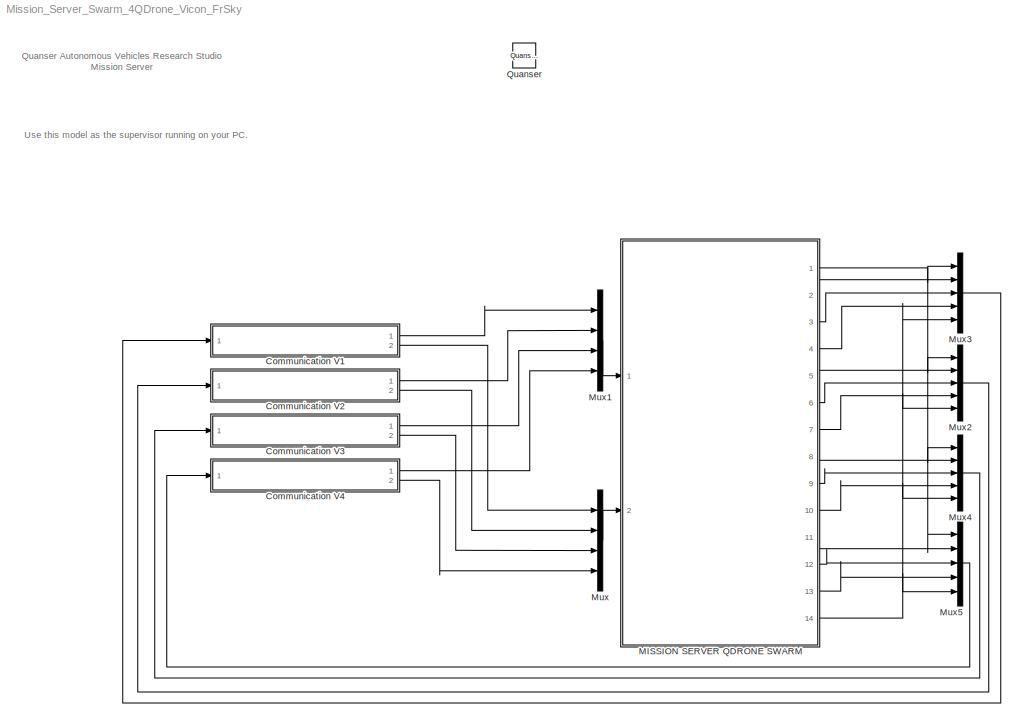
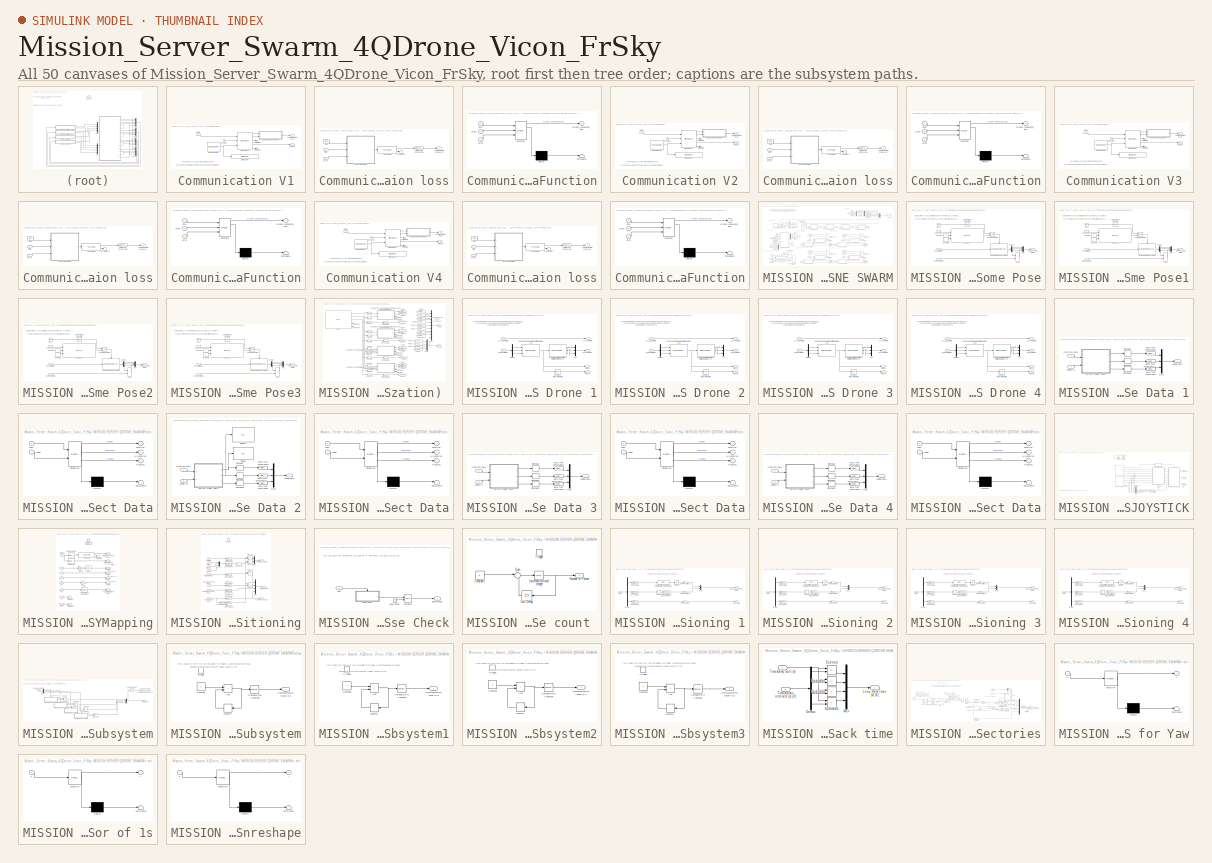
[diagram: thumbnail index - all 50 canvases of the model, root first then tree order]
MODEL Mission_Server_Swarm_4QDrone_Vicon_FrSky
KIND model
BLOCK [SubSystem] Communication V1
  Ports = [1, 2]
  RequestExecContextInheritance = off
  SID = 5967
BLOCK [Outport] Communication V1/Communication Issue
  SID = 5984
  VectorParamsAs1DForOutWhenUnconnected = off
BLOCK [Constant] Communication V1/Constant
  SID = 5969
BLOCK [Inport] Communication V1/Data In
  SID = 5968
BLOCK [Outport] Communication V1/Data Out
  Port = 2
  SID = 5985
  VectorParamsAs1DForOutWhenUnconnected = off
BLOCK [SubSystem] Communication V1/Detect Communication loss
  Ports = [2, 1]
  RequestExecContextInheritance = off
  SID = 5970
BLOCK [Outport] Communication V1/Detect Communication loss/Communication Issue (0,1)
  SID = 5978
  VectorParamsAs1DForOutWhenUnconnected = off
BLOCK [DataTypeConversion] Communication V1/Detect Communication loss/Data Type Conversion
  RndMeth = Floor
  SID = 5973
  SaturateOnIntegerOverflow = off
BLOCK [Inport] Communication V1/Detect Communication loss/Error
  NameLocation = top
  Port = 2
  SID = 5972
BLOCK [SubSystem] Communication V1/Detect Communication loss/MATLAB Function
  ErrorFcn = Stateflow.Translate.translate
  PermitHierarchicalResolution = ExplicitOnly
  Ports = [3, 1]
  RequestExecContextInheritance = off
  SFBlockType = MATLAB Function
  SID = 5974
  TreatAsAtomicUnit = on
BLOCK [Demux] Communication V1/Detect Communication loss/MATLAB Function/ Demux 
  Outputs = 1
  Ports = [1, 1]
  SID = 5974::77
BLOCK [S-Function] Communication V1/Detect Communication loss/MATLAB Function/ SFunction 
  EnableBusSupport = off
  FunctionName = sf_sfun
  PortCounts = [3 2]
  Ports = [3, 2]
  SFcnIsStateOwnerBlock = off
  SFunctionDeploymentMode = off
  SID = 5974::76
  Tag = Stateflow S-Function 6
BLOCK [Terminator] Communication V1/Detect Communication loss/MATLAB Function/ Terminator 
  SID = 5974::78
BLOCK [Inport] Communication V1/Detect Communication loss/MATLAB Function/error
  Port = 3
  SID = 5974::23
BLOCK [Inport] Communication V1/Detect Communication loss/MATLAB Function/state
  Port = 2
  SID = 5974::22
BLOCK [Outport] Communication V1/Detect Communication loss/MATLAB Function/stream_connection_loss
  SID = 5974::5
  VectorParamsAs1DForOutWhenUnconnected = off
BLOCK [Inport] Communication V1/Detect Communication loss/MATLAB Function/time
  SID = 5974::1
BLOCK [Inport] Communication V1/Detect Communication loss/State
  NameLocation = top
  SID = 5971
BLOCK [Terminator] Communication V1/Detect Communication loss/Terminator2
  SID = 5975
BLOCK [Reference] Communication V1/Detect Communication loss/Threshold  REF=quarc_library/Discontinuities/Threshold
  Ports = [1, 2]
  RTWMemSecDataConstants = Inherit from model
  RTWMemSecDataInternal = Inherit from model
  RTWMemSecDataParameters = Inherit from model
  RTWMemSecFuncExecute = Inherit from model
  RTWMemSecFuncInitTerm = Inherit from model
  SID = 5976
  SourceBlock = quarc_library/Discontinuities/Threshold
  SourceProductName = QUARC Targets
  SourceType = Threshold
  duration = 0.1
  operator = >=
  param_src = Specify via dialog
  threshold = 0.5
BLOCK [Reference] Communication V1/Detect Communication loss/Time  REF=quarc_library/Sources/Time/Time
  MultiThreadCoSim = auto
  NameLocation = top
  Ports = [0, 1]
  SID = 5977
  SourceBlock = quarc_library/Sources/Time/Time
  SourceProductName = QUARC Targets
  SourceType = Time
  sample_time = qc_get_step_size
  time_source = Wall clock
BLOCK [Reference] Communication V1/Model Argument  REF=quarc_library/Sources/Signals/Model Argument
  AttributesFormatString = (-%<argument_name>)
  MultiThreadCoSim = auto
  Ports = [0, 1]
  SID = 5979
  SourceBlock = quarc_library/Sources/Signals/Model Argument
  SourceProductName = QUARC Targets
  SourceType = Model Argument
  argument_name = URI_Host_V1
  data_type = char
  data_type_mode = Specify via dialog
  default_string = tcpip://localhost:18001
  default_value = 0
  has_value = on
  max_length = 80
  variable_size = off
BLOCK [Reference] Communication V1/Stream Server  REF=quarc_library/Communications/Basic/Stream Server
  MultiThreadCoSim = auto
  Ports = [3, 5]
  SID = 5980
  SourceBlock = quarc_library/Communications/Basic/Stream Server
  SourceProductName = QUARC Targets
  SourceType = Stream Server
  active = off
  apply_uri_to_all_configs = off
  byte_order = little endian (Intel - LSB first)
  data_type = Inherited via back propagation
  default_value = zeros(1,1)
  implementation = Use blocking I/O in a separate thread
  max_dimensions = -1
  optimization = Minimum latency
  receive_buffer_size = 1460
  receive_dimensions = off
  receive_fifo_size = 1000
  receive_options = Receive most recent data
  receive_priority = 0
  sample_time = qc_get_step_size
  send_buffer_size = 1460
  send_dimensions = off
  send_fifo_size = 1000
  send_options = Send most recent data
  send_priority = 0
  type_expr = BusObject
  uri = tcpip://localhost:18877
  uri_source = External input port
BLOCK [Reference] Communication V1/String Display   REF=quarc_library/Strings/String Display
  MultiThreadCoSim = auto
  Ports = [1]
  SID = 5981
  SourceBlock = quarc_library/Strings/String Display
  SourceProductName = QUARC Targets
  SourceType = String Display
  alignment = center
  display_mode = Single line
  sample_time = -1
  use_new = off
BLOCK [Terminator] Communication V1/Terminator1
  SID = 5982
BLOCK [Terminator] Communication V1/Terminator2
  SID = 5983
BLOCK [SubSystem] Communication V2
  Ports = [1, 2]
  RequestExecContextInheritance = off
  SID = 5987
BLOCK [Outport] Communication V2/Communication Issue
  SID = 6004
  VectorParamsAs1DForOutWhenUnconnected = off
BLOCK [Constant] Communication V2/Constant
  SID = 5989
BLOCK [Inport] Communication V2/Data In
  SID = 5988
BLOCK [Outport] Communication V2/Data Out
  Port = 2
  SID = 6005
  VectorParamsAs1DForOutWhenUnconnected = off
BLOCK [SubSystem] Communication V2/Detect Communication loss
  Ports = [2, 1]
  RequestExecContextInheritance = off
  SID = 5990
BLOCK [Outport] Communication V2/Detect Communication loss/Communication Issue (0,1)
  SID = 5998
  VectorParamsAs1DForOutWhenUnconnected = off
BLOCK [DataTypeConversion] Communication V2/Detect Communication loss/Data Type Conversion
  RndMeth = Floor
  SID = 5993
  SaturateOnIntegerOverflow = off
BLOCK [Inport] Communication V2/Detect Communication loss/Error
  NameLocation = top
  Port = 2
  SID = 5992
BLOCK [SubSystem] Communication V2/Detect Communication loss/MATLAB Function
  ErrorFcn = Stateflow.Translate.translate
  PermitHierarchicalResolution = ExplicitOnly
  Ports = [3, 1]
  RequestExecContextInheritance = off
  SFBlockType = MATLAB Function
  SID = 5994
  TreatAsAtomicUnit = on
BLOCK [Demux] Communication V2/Detect Communication loss/MATLAB Function/ Demux 
  Outputs = 1
  Ports = [1, 1]
  SID = 5994::77
BLOCK [S-Function] Communication V2/Detect Communication loss/MATLAB Function/ SFunction 
  EnableBusSupport = off
  FunctionName = sf_sfun
  PortCounts = [3 2]
  Ports = [3, 2]
  SFcnIsStateOwnerBlock = off
  SFunctionDeploymentMode = off
  SID = 5994::76
  Tag = Stateflow S-Function 7
BLOCK [Terminator] Communication V2/Detect Communication loss/MATLAB Function/ Terminator 
  SID = 5994::78
BLOCK [Inport] Communication V2/Detect Communication loss/MATLAB Function/error
  Port = 3
  SID = 5994::23
BLOCK [Inport] Communication V2/Detect Communication loss/MATLAB Function/state
  Port = 2
  SID = 5994::22
BLOCK [Outport] Communication V2/Detect Communication loss/MATLAB Function/stream_connection_loss
  SID = 5994::5
  VectorParamsAs1DForOutWhenUnconnected = off
BLOCK [Inport] Communication V2/Detect Communication loss/MATLAB Function/time
  SID = 5994::1
BLOCK [Inport] Communication V2/Detect Communication loss/State
  NameLocation = top
  SID = 5991
BLOCK [Terminator] Communication V2/Detect Communication loss/Terminator2
  SID = 5995
BLOCK [Reference] Communication V2/Detect Communication loss/Threshold  REF=quarc_library/Discontinuities/Threshold
  Ports = [1, 2]
  RTWMemSecDataConstants = Inherit from model
  RTWMemSecDataInternal = Inherit from model
  RTWMemSecDataParameters = Inherit from model
  RTWMemSecFuncExecute = Inherit from model
  RTWMemSecFuncInitTerm = Inherit from model
  SID = 5996
  SourceBlock = quarc_library/Discontinuities/Threshold
  SourceProductName = QUARC Targets
  SourceType = Threshold
  duration = 0.1
  operator = >=
  param_src = Specify via dialog
  threshold = 0.5
BLOCK [Reference] Communication V2/Detect Communication loss/Time  REF=quarc_library/Sources/Time/Time
  MultiThreadCoSim = auto
  NameLocation = top
  Ports = [0, 1]
  SID = 5997
  SourceBlock = quarc_library/Sources/Time/Time
  SourceProductName = QUARC Targets
  SourceType = Time
  sample_time = qc_get_step_size
  time_source = Wall clock
BLOCK [Reference] Communication V2/Model Argument  REF=quarc_library/Sources/Signals/Model Argument
  AttributesFormatString = (-%<argument_name>)
  MultiThreadCoSim = auto
  Ports = [0, 1]
  SID = 5999
  SourceBlock = quarc_library/Sources/Signals/Model Argument
  SourceProductName = QUARC Targets
  SourceType = Model Argument
  argument_name = URI_Host_V2
  data_type = char
  data_type_mode = Specify via dialog
  default_string = tcpip://localhost:18002
  default_value = 0
  has_value = on
  max_length = 80
  variable_size = off
BLOCK [Reference] Communication V2/Stream Server  REF=quarc_library/Communications/Basic/Stream Server
  MultiThreadCoSim = auto
  Ports = [3, 5]
  SID = 6000
  SourceBlock = quarc_library/Communications/Basic/Stream Server
  SourceProductName = QUARC Targets
  SourceType = Stream Server
  active = off
  apply_uri_to_all_configs = off
  byte_order = little endian (Intel - LSB first)
  data_type = Inherited via back propagation
  default_value = zeros(1,1)
  implementation = Use blocking I/O in a separate thread
  max_dimensions = -1
  optimization = Minimum latency
  receive_buffer_size = 1460
  receive_dimensions = off
  receive_fifo_size = 1000
  receive_options = Receive most recent data
  receive_priority = 0
  sample_time = qc_get_step_size
  send_buffer_size = 1460
  send_dimensions = off
  send_fifo_size = 1000
  send_options = Send most recent data
  send_priority = 0
  type_expr = BusObject
  uri = tcpip://localhost:18877
  uri_source = External input port
BLOCK [Reference] Communication V2/String Display   REF=quarc_library/Strings/String Display
  MultiThreadCoSim = auto
  Ports = [1]
  SID = 6001
  SourceBlock = quarc_library/Strings/String Display
  SourceProductName = QUARC Targets
  SourceType = String Display
  alignment = center
  display_mode = Single line
  sample_time = -1
  use_new = off
BLOCK [Terminator] Communication V2/Terminator1
  SID = 6002
BLOCK [Terminator] Communication V2/Terminator2
  SID = 6003
BLOCK [SubSystem] Communication V3
  Ports = [1, 2]
  RequestExecContextInheritance = off
  SID = 6007
BLOCK [Outport] Communication V3/Communication Issue
  SID = 6024
  VectorParamsAs1DForOutWhenUnconnected = off
BLOCK [Constant] Communication V3/Constant
  SID = 6009
BLOCK [Inport] Communication V3/Data In
  SID = 6008
BLOCK [Outport] Communication V3/Data Out
  Port = 2
  SID = 6025
  VectorParamsAs1DForOutWhenUnconnected = off
BLOCK [SubSystem] Communication V3/Detect Communication loss
  Ports = [2, 1]
  RequestExecContextInheritance = off
  SID = 6010
BLOCK [Outport] Communication V3/Detect Communication loss/Communication Issue (0,1)
  SID = 6018
  VectorParamsAs1DForOutWhenUnconnected = off
BLOCK [DataTypeConversion] Communication V3/Detect Communication loss/Data Type Conversion
  RndMeth = Floor
  SID = 6013
  SaturateOnIntegerOverflow = off
BLOCK [Inport] Communication V3/Detect Communication loss/Error
  NameLocation = top
  Port = 2
  SID = 6012
BLOCK [SubSystem] Communication V3/Detect Communication loss/MATLAB Function
  ErrorFcn = Stateflow.Translate.translate
  PermitHierarchicalResolution = ExplicitOnly
  Ports = [3, 1]
  RequestExecContextInheritance = off
  SFBlockType = MATLAB Function
  SID = 6014
  TreatAsAtomicUnit = on
BLOCK [Demux] Communication V3/Detect Communication loss/MATLAB Function/ Demux 
  Outputs = 1
  Ports = [1, 1]
  SID = 6014::77
BLOCK [S-Function] Communication V3/Detect Communication loss/MATLAB Function/ SFunction 
  EnableBusSupport = off
  FunctionName = sf_sfun
  PortCounts = [3 2]
  Ports = [3, 2]
  SFcnIsStateOwnerBlock = off
  SFunctionDeploymentMode = off
  SID = 6014::76
  Tag = Stateflow S-Function 8
BLOCK [Terminator] Communication V3/Detect Communication loss/MATLAB Function/ Terminator 
  SID = 6014::78
BLOCK [Inport] Communication V3/Detect Communication loss/MATLAB Function/error
  Port = 3
  SID = 6014::23
BLOCK [Inport] Communication V3/Detect Communication loss/MATLAB Function/state
  Port = 2
  SID = 6014::22
BLOCK [Outport] Communication V3/Detect Communication loss/MATLAB Function/stream_connection_loss
  SID = 6014::5
  VectorParamsAs1DForOutWhenUnconnected = off
BLOCK [Inport] Communication V3/Detect Communication loss/MATLAB Function/time
  SID = 6014::1
BLOCK [Inport] Communication V3/Detect Communication loss/State
  NameLocation = top
  SID = 6011
BLOCK [Terminator] Communication V3/Detect Communication loss/Terminator2
  SID = 6015
BLOCK [Reference] Communication V3/Detect Communication loss/Threshold  REF=quarc_library/Discontinuities/Threshold
  Ports = [1, 2]
  RTWMemSecDataConstants = Inherit from model
  RTWMemSecDataInternal = Inherit from model
  RTWMemSecDataParameters = Inherit from model
  RTWMemSecFuncExecute = Inherit from model
  RTWMemSecFuncInitTerm = Inherit from model
  SID = 6016
  SourceBlock = quarc_library/Discontinuities/Threshold
  SourceProductName = QUARC Targets
  SourceType = Threshold
  duration = 0.1
  operator = >=
  param_src = Specify via dialog
  threshold = 0.5
BLOCK [Reference] Communication V3/Detect Communication loss/Time  REF=quarc_library/Sources/Time/Time
  MultiThreadCoSim = auto
  NameLocation = top
  Ports = [0, 1]
  SID = 6017
  SourceBlock = quarc_library/Sources/Time/Time
  SourceProductName = QUARC Targets
  SourceType = Time
  sample_time = qc_get_step_size
  time_source = Wall clock
BLOCK [Reference] Communication V3/Model Argument  REF=quarc_library/Sources/Signals/Model Argument
  AttributesFormatString = (-%<argument_name>)
  MultiThreadCoSim = auto
  Ports = [0, 1]
  SID = 6019
  SourceBlock = quarc_library/Sources/Signals/Model Argument
  SourceProductName = QUARC Targets
  SourceType = Model Argument
  argument_name = URI_Host_V3
  data_type = char
  data_type_mode = Specify via dialog
  default_string = tcpip://localhost:18003
  default_value = 0
  has_value = on
  max_length = 80
  variable_size = off
BLOCK [Reference] Communication V3/Stream Server  REF=quarc_library/Communications/Basic/Stream Server
  MultiThreadCoSim = auto
  Ports = [3, 5]
  SID = 6020
  SourceBlock = quarc_library/Communications/Basic/Stream Server
  SourceProductName = QUARC Targets
  SourceType = Stream Server
  active = off
  apply_uri_to_all_configs = off
  byte_order = little endian (Intel - LSB first)
  data_type = Inherited via back propagation
  default_value = zeros(1,1)
  implementation = Use blocking I/O in a separate thread
  max_dimensions = -1
  optimization = Minimum latency
  receive_buffer_size = 1460
  receive_dimensions = off
  receive_fifo_size = 1000
  receive_options = Receive most recent data
  receive_priority = 0
  sample_time = qc_get_step_size
  send_buffer_size = 1460
  send_dimensions = off
  send_fifo_size = 1000
  send_options = Send most recent data
  send_priority = 0
  type_expr = BusObject
  uri = tcpip://localhost:18877
  uri_source = External input port
BLOCK [Reference] Communication V3/String Display   REF=quarc_library/Strings/String Display
  MultiThreadCoSim = auto
  Ports = [1]
  SID = 6021
  SourceBlock = quarc_library/Strings/String Display
  SourceProductName = QUARC Targets
  SourceType = String Display
  alignment = center
  display_mode = Single line
  sample_time = -1
  use_new = off
BLOCK [Terminator] Communication V3/Terminator1
  SID = 6022
BLOCK [Terminator] Communication V3/Terminator2
  SID = 6023
BLOCK [SubSystem] Communication V4
  Ports = [1, 2]
  RequestExecContextInheritance = off
  SID = 6027
BLOCK [Outport] Communication V4/Communication Issue
  SID = 6044
  VectorParamsAs1DForOutWhenUnconnected = off
BLOCK [Constant] Communication V4/Constant
  SID = 6029
BLOCK [Inport] Communication V4/Data In
  SID = 6028
BLOCK [Outport] Communication V4/Data Out
  Port = 2
  SID = 6045
  VectorParamsAs1DForOutWhenUnconnected = off
BLOCK [SubSystem] Communication V4/Detect Communication loss
  Ports = [2, 1]
  RequestExecContextInheritance = off
  SID = 6030
BLOCK [Outport] Communication V4/Detect Communication loss/Communication Issue (0,1)
  SID = 6038
  VectorParamsAs1DForOutWhenUnconnected = off
BLOCK [DataTypeConversion] Communication V4/Detect Communication loss/Data Type Conversion
  RndMeth = Floor
  SID = 6033
  SaturateOnIntegerOverflow = off
BLOCK [Inport] Communication V4/Detect Communication loss/Error
  NameLocation = top
  Port = 2
  SID = 6032
BLOCK [SubSystem] Communication V4/Detect Communication loss/MATLAB Function
  ErrorFcn = Stateflow.Translate.translate
  PermitHierarchicalResolution = ExplicitOnly
  Ports = [3, 1]
  RequestExecContextInheritance = off
  SFBlockType = MATLAB Function
  SID = 6034
  TreatAsAtomicUnit = on
BLOCK [Demux] Communication V4/Detect Communication loss/MATLAB Function/ Demux 
  Outputs = 1
  Ports = [1, 1]
  SID = 6034::77
BLOCK [S-Function] Communication V4/Detect Communication loss/MATLAB Function/ SFunction 
  EnableBusSupport = off
  FunctionName = sf_sfun
  PortCounts = [3 2]
  Ports = [3, 2]
  SFcnIsStateOwnerBlock = off
  SFunctionDeploymentMode = off
  SID = 6034::76
  Tag = Stateflow S-Function 9
BLOCK [Terminator] Communication V4/Detect Communication loss/MATLAB Function/ Terminator 
  SID = 6034::78
BLOCK [Inport] Communication V4/Detect Communication loss/MATLAB Function/error
  Port = 3
  SID = 6034::23
BLOCK [Inport] Communication V4/Detect Communication loss/MATLAB Function/state
  Port = 2
  SID = 6034::22
BLOCK [Outport] Communication V4/Detect Communication loss/MATLAB Function/stream_connection_loss
  SID = 6034::5
  VectorParamsAs1DForOutWhenUnconnected = off
BLOCK [Inport] Communication V4/Detect Communication loss/MATLAB Function/time
  SID = 6034::1
BLOCK [Inport] Communication V4/Detect Communication loss/State
  NameLocation = top
  SID = 6031
BLOCK [Terminator] Communication V4/Detect Communication loss/Terminator2
  SID = 6035
BLOCK [Reference] Communication V4/Detect Communication loss/Threshold  REF=quarc_library/Discontinuities/Threshold
  Ports = [1, 2]
  RTWMemSecDataConstants = Inherit from model
  RTWMemSecDataInternal = Inherit from model
  RTWMemSecDataParameters = Inherit from model
  RTWMemSecFuncExecute = Inherit from model
  RTWMemSecFuncInitTerm = Inherit from model
  SID = 6036
  SourceBlock = quarc_library/Discontinuities/Threshold
  SourceProductName = QUARC Targets
  SourceType = Threshold
  duration = 0.1
  operator = >=
  param_src = Specify via dialog
  threshold = 0.5
BLOCK [Reference] Communication V4/Detect Communication loss/Time  REF=quarc_library/Sources/Time/Time
  MultiThreadCoSim = auto
  NameLocation = top
  Ports = [0, 1]
  SID = 6037
  SourceBlock = quarc_library/Sources/Time/Time
  SourceProductName = QUARC Targets
  SourceType = Time
  sample_time = qc_get_step_size
  time_source = Wall clock
BLOCK [Reference] Communication V4/Model Argument  REF=quarc_library/Sources/Signals/Model Argument
  AttributesFormatString = (-%<argument_name>)
  MultiThreadCoSim = auto
  Ports = [0, 1]
  SID = 6039
  SourceBlock = quarc_library/Sources/Signals/Model Argument
  SourceProductName = QUARC Targets
  SourceType = Model Argument
  argument_name = URI_Host_V4
  data_type = char
  data_type_mode = Specify via dialog
  default_string = tcpip://localhost:18004
  default_value = 0
  has_value = on
  max_length = 80
  variable_size = off
BLOCK [Reference] Communication V4/Stream Server  REF=quarc_library/Communications/Basic/Stream Server
  MultiThreadCoSim = auto
  Ports = [3, 5]
  SID = 6040
  SourceBlock = quarc_library/Communications/Basic/Stream Server
  SourceProductName = QUARC Targets
  SourceType = Stream Server
  active = off
  apply_uri_to_all_configs = off
  byte_order = little endian (Intel - LSB first)
  data_type = Inherited via back propagation
  default_value = zeros(1,1)
  implementation = Use blocking I/O in a separate thread
  max_dimensions = -1
  optimization = Minimum latency
  receive_buffer_size = 1460
  receive_dimensions = off
  receive_fifo_size = 1000
  receive_options = Receive most recent data
  receive_priority = 0
  sample_time = qc_get_step_size
  send_buffer_size = 1460
  send_dimensions = off
  send_fifo_size = 1000
  send_options = Send most recent data
  send_priority = 0
  type_expr = BusObject
  uri = tcpip://localhost:18877
  uri_source = External input port
BLOCK [Reference] Communication V4/String Display   REF=quarc_library/Strings/String Display
  MultiThreadCoSim = auto
  Ports = [1]
  SID = 6041
  SourceBlock = quarc_library/Strings/String Display
  SourceProductName = QUARC Targets
  SourceType = String Display
  alignment = center
  display_mode = Single line
  sample_time = -1
  use_new = off
BLOCK [Terminator] Communication V4/Terminator1
  SID = 6042
BLOCK [Terminator] Communication V4/Terminator2
  SID = 6043
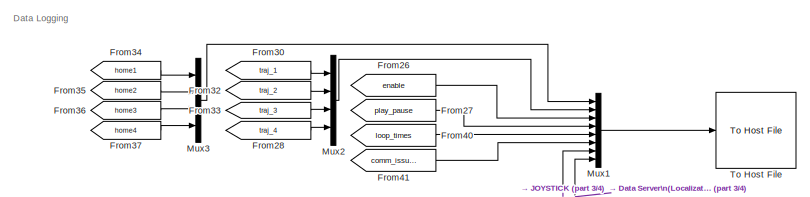
[diagram: MISSION SERVER QDRONE SWARM - part 1/4, top right region]
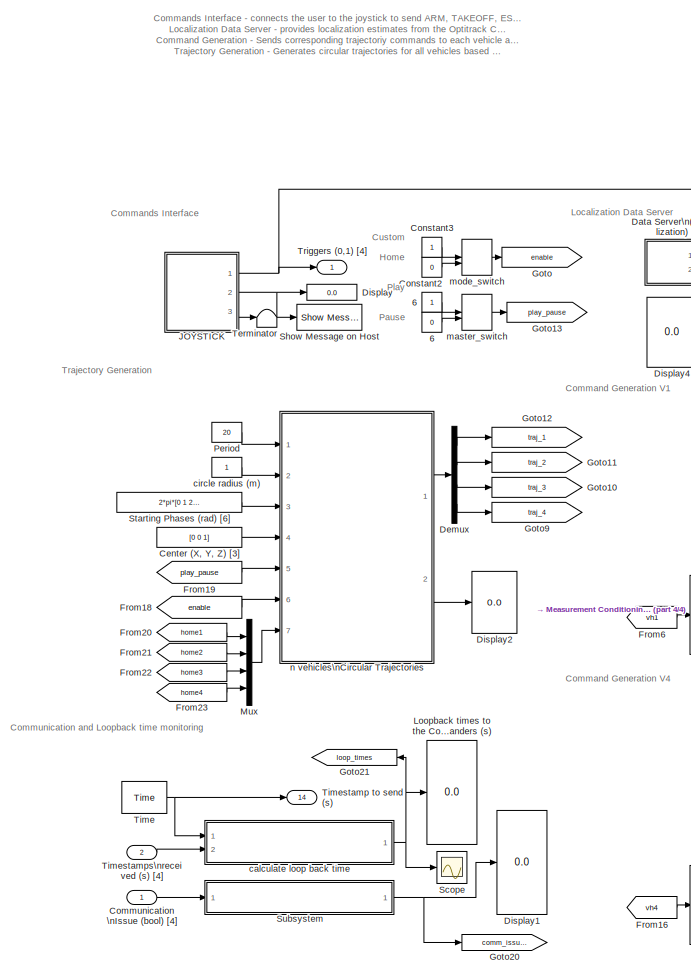
[diagram: MISSION SERVER QDRONE SWARM - part 2/4, left side, full height]
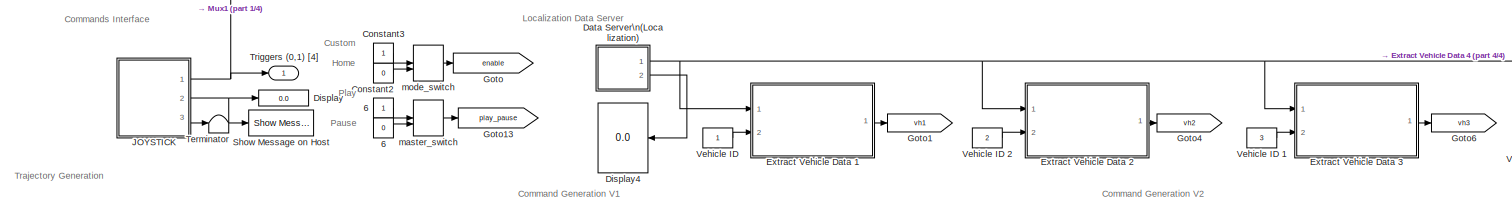
[diagram: MISSION SERVER QDRONE SWARM - part 3/4, top center region]
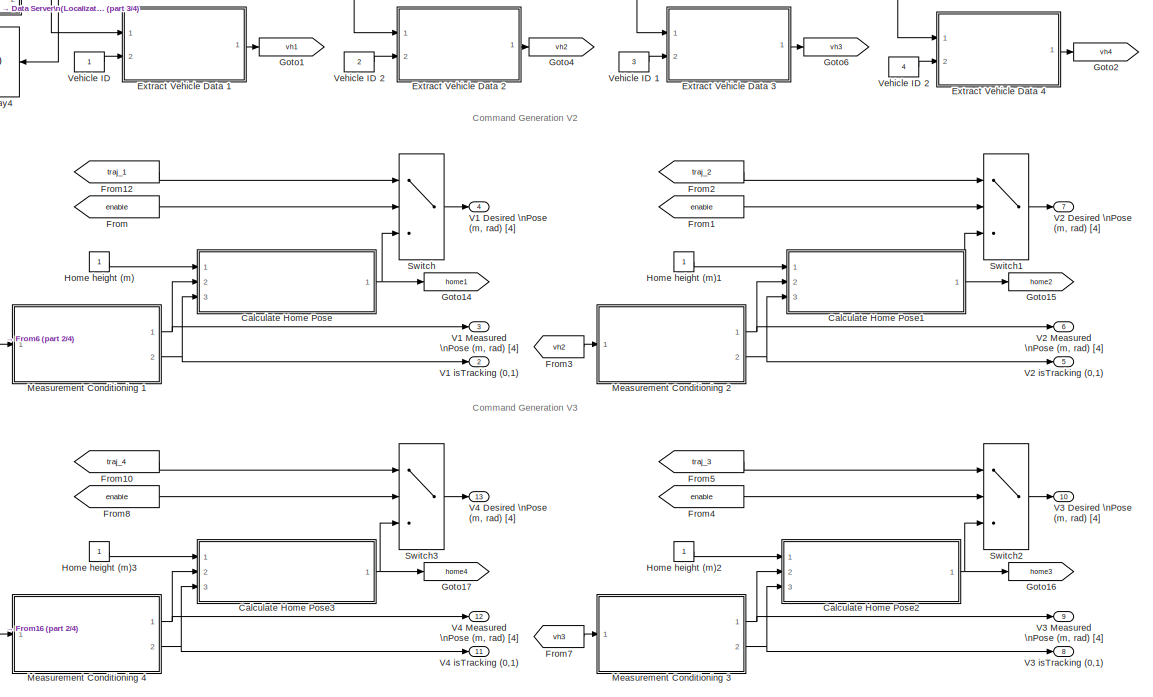
[diagram: MISSION SERVER QDRONE SWARM - part 4/4, central region]
BLOCK [SubSystem] MISSION SERVER QDRONE SWARM
  Ports = [2, 14]
  RequestExecContextInheritance = off
  SID = 4051
BLOCK [Constant] MISSION SERVER QDRONE SWARM/          6
  SID = 4054
BLOCK [Constant] MISSION SERVER QDRONE SWARM/   6
  SID = 4055
  Value = 0
BLOCK [SubSystem] MISSION SERVER QDRONE SWARM/Calculate Home Pose
  NameLocation = top
  Ports = [3, 1]
  RequestExecContextInheritance = off
  SID = 4056
BLOCK [Clock] MISSION SERVER QDRONE SWARM/Calculate Home Pose/Clock
  SID = 4060
BLOCK [Reference] MISSION SERVER QDRONE SWARM/Calculate Home Pose/Compare\nTo Constant  REF=simulink/Logic and Bit\nOperations/Compare\nTo Constant
  OutDataTypeStr = boolean
  Ports = [1, 1]
  RTWMemSecDataConstants = Inherit from model
  RTWMemSecDataInternal = Inherit from model
  RTWMemSecDataParameters = Inherit from model
  RTWMemSecFuncExecute = Inherit from model
  RTWMemSecFuncInitTerm = Inherit from model
  SID = 4061
  SourceBlock = simulink/Logic and Bit\nOperations/Compare\nTo Constant
  SourceProductBaseCode = SL
  SourceType = Compare To Constant
  ZeroCross = on
  const = 5
  relop = <=
BLOCK [Constant] MISSION SERVER QDRONE SWARM/Calculate Home Pose/Constant
  SID = 4062
  Value = 0
BLOCK [Constant] MISSION SERVER QDRONE SWARM/Calculate Home Pose/Constant1
  SID = 4063
BLOCK [Demux] MISSION SERVER QDRONE SWARM/Calculate Home Pose/Demux
  Ports = [1, 4]
  SID = 4064
BLOCK [Reference] MISSION SERVER QDRONE SWARM/Calculate Home Pose/Enabled Moving Average  REF=quarc_library/Discrete/Enabled Moving Average
  Ports = [1, 1, 1]
  RTWMemSecDataConstants = Inherit from model
  RTWMemSecDataInternal = Inherit from model
  RTWMemSecDataParameters = Inherit from model
  RTWMemSecFuncExecute = Inherit from model
  RTWMemSecFuncInitTerm = Inherit from model
  SID = 4065
  SourceBlock = quarc_library/Discrete/Enabled Moving Average
  SourceProductName = QUARC Targets
  SourceType = Enabled Moving Average
  enable_state = reset
  sample_time = qc_get_step_size
BLOCK [Outport] MISSION SERVER QDRONE SWARM/Calculate Home Pose/Home Pose (m, rad) [4]
  SID = 4070
  VectorParamsAs1DForOutWhenUnconnected = off
BLOCK [Inport] MISSION SERVER QDRONE SWARM/Calculate Home Pose/Home height (m)
  SID = 4057
BLOCK [Logic] MISSION SERVER QDRONE SWARM/Calculate Home Pose/Logical\nOperator
  AllPortsSameDT = off
  OutDataTypeStr = boolean
  Ports = [2, 1]
  SID = 4066
BLOCK [Mux] MISSION SERVER QDRONE SWARM/Calculate Home Pose/Mux
  DisplayOption = bar
  Ports = [4, 1]
  SID = 4067
BLOCK [Reference] MISSION SERVER QDRONE SWARM/Calculate Home Pose/One Shot  REF=quarc_library/Discontinuities/One Shot
  Ports = [3, 1]
  RTWMemSecDataConstants = Inherit from model
  RTWMemSecDataInternal = Inherit from model
  RTWMemSecDataParameters = Inherit from model
  RTWMemSecFuncExecute = Inherit from model
  RTWMemSecFuncInitTerm = Inherit from model
  SID = 4068
  SourceBlock = quarc_library/Discontinuities/One Shot
  SourceProductName = QUARC Targets
  SourceType = One Shot
  pulse_width = 1/qc_get_step_size
  redun_pulse = Ignore extraneous pulse
  trigger_type = Rising edge
  width_source = Specify via dialog
BLOCK [Inport] MISSION SERVER QDRONE SWARM/Calculate Home Pose/Pose (m, rad ) [4]
  Port = 2
  SID = 4058
BLOCK [Sum] MISSION SERVER QDRONE SWARM/Calculate Home Pose/Sum
  IconShape = rectangular
  Ports = [2, 1]
  SID = 4069
BLOCK [Inport] MISSION SERVER QDRONE SWARM/Calculate Home Pose/isTracking?
  Port = 3
  SID = 4059
BLOCK [SubSystem] MISSION SERVER QDRONE SWARM/Calculate Home Pose1
  NameLocation = top
  Ports = [3, 1]
  RequestExecContextInheritance = off
  SID = 4072
BLOCK [Clock] MISSION SERVER QDRONE SWARM/Calculate Home Pose1/Clock
  SID = 4076
BLOCK [Reference] MISSION SERVER QDRONE SWARM/Calculate Home Pose1/Compare\nTo Constant  REF=simulink/Logic and Bit\nOperations/Compare\nTo Constant
  OutDataTypeStr = boolean
  Ports = [1, 1]
  RTWMemSecDataConstants = Inherit from model
  RTWMemSecDataInternal = Inherit from model
  RTWMemSecDataParameters = Inherit from model
  RTWMemSecFuncExecute = Inherit from model
  RTWMemSecFuncInitTerm = Inherit from model
  SID = 4077
  SourceBlock = simulink/Logic and Bit\nOperations/Compare\nTo Constant
  SourceProductBaseCode = SL
  SourceType = Compare To Constant
  ZeroCross = on
  const = 5
  relop = <=
BLOCK [Constant] MISSION SERVER QDRONE SWARM/Calculate Home Pose1/Constant
  SID = 4078
  Value = 0
BLOCK [Constant] MISSION SERVER QDRONE SWARM/Calculate Home Pose1/Constant1
  SID = 4079
BLOCK [Demux] MISSION SERVER QDRONE SWARM/Calculate Home Pose1/Demux
  Ports = [1, 4]
  SID = 4080
BLOCK [Reference] MISSION SERVER QDRONE SWARM/Calculate Home Pose1/Enabled Moving Average  REF=quarc_library/Discrete/Enabled Moving Average
  Ports = [1, 1, 1]
  RTWMemSecDataConstants = Inherit from model
  RTWMemSecDataInternal = Inherit from model
  RTWMemSecDataParameters = Inherit from model
  RTWMemSecFuncExecute = Inherit from model
  RTWMemSecFuncInitTerm = Inherit from model
  SID = 4081
  SourceBlock = quarc_library/Discrete/Enabled Moving Average
  SourceProductName = QUARC Targets
  SourceType = Enabled Moving Average
  enable_state = reset
  sample_time = qc_get_step_size
BLOCK [Outport] MISSION SERVER QDRONE SWARM/Calculate Home Pose1/Home Pose (m, rad) [4]
  SID = 4086
  VectorParamsAs1DForOutWhenUnconnected = off
BLOCK [Inport] MISSION SERVER QDRONE SWARM/Calculate Home Pose1/Home height (m)
  SID = 4073
BLOCK [Logic] MISSION SERVER QDRONE SWARM/Calculate Home Pose1/Logical\nOperator
  AllPortsSameDT = off
  OutDataTypeStr = boolean
  Ports = [2, 1]
  SID = 4082
BLOCK [Mux] MISSION SERVER QDRONE SWARM/Calculate Home Pose1/Mux
  DisplayOption = bar
  Ports = [4, 1]
  SID = 4083
BLOCK [Reference] MISSION SERVER QDRONE SWARM/Calculate Home Pose1/One Shot  REF=quarc_library/Discontinuities/One Shot
  Ports = [3, 1]
  RTWMemSecDataConstants = Inherit from model
  RTWMemSecDataInternal = Inherit from model
  RTWMemSecDataParameters = Inherit from model
  RTWMemSecFuncExecute = Inherit from model
  RTWMemSecFuncInitTerm = Inherit from model
  SID = 4084
  SourceBlock = quarc_library/Discontinuities/One Shot
  SourceProductName = QUARC Targets
  SourceType = One Shot
  pulse_width = 1/qc_get_step_size
  redun_pulse = Ignore extraneous pulse
  trigger_type = Rising edge
  width_source = Specify via dialog
BLOCK [Inport] MISSION SERVER QDRONE SWARM/Calculate Home Pose1/Pose (m, rad ) [4]
  Port = 2
  SID = 4074
BLOCK [Sum] MISSION SERVER QDRONE SWARM/Calculate Home Pose1/Sum
  IconShape = rectangular
  Ports = [2, 1]
  SID = 4085
BLOCK [Inport] MISSION SERVER QDRONE SWARM/Calculate Home Pose1/isTracking?
  Port = 3
  SID = 4075
BLOCK [SubSystem] MISSION SERVER QDRONE SWARM/Calculate Home Pose2
  NameLocation = top
  Ports = [3, 1]
  RequestExecContextInheritance = off
  SID = 4088
BLOCK [Clock] MISSION SERVER QDRONE SWARM/Calculate Home Pose2/Clock
  SID = 4092
BLOCK [Reference] MISSION SERVER QDRONE SWARM/Calculate Home Pose2/Compare\nTo Constant  REF=simulink/Logic and Bit\nOperations/Compare\nTo Constant
  OutDataTypeStr = boolean
  Ports = [1, 1]
  RTWMemSecDataConstants = Inherit from model
  RTWMemSecDataInternal = Inherit from model
  RTWMemSecDataParameters = Inherit from model
  RTWMemSecFuncExecute = Inherit from model
  RTWMemSecFuncInitTerm = Inherit from model
  SID = 4093
  SourceBlock = simulink/Logic and Bit\nOperations/Compare\nTo Constant
  SourceProductBaseCode = SL
  SourceType = Compare To Constant
  ZeroCross = on
  const = 5
  relop = <=
BLOCK [Constant] MISSION SERVER QDRONE SWARM/Calculate Home Pose2/Constant
  SID = 4094
  Value = 0
BLOCK [Constant] MISSION SERVER QDRONE SWARM/Calculate Home Pose2/Constant1
  SID = 4095
BLOCK [Demux] MISSION SERVER QDRONE SWARM/Calculate Home Pose2/Demux
  Ports = [1, 4]
  SID = 4096
BLOCK [Reference] MISSION SERVER QDRONE SWARM/Calculate Home Pose2/Enabled Moving Average  REF=quarc_library/Discrete/Enabled Moving Average
  Ports = [1, 1, 1]
  RTWMemSecDataConstants = Inherit from model
  RTWMemSecDataInternal = Inherit from model
  RTWMemSecDataParameters = Inherit from model
  RTWMemSecFuncExecute = Inherit from model
  RTWMemSecFuncInitTerm = Inherit from model
  SID = 4097
  SourceBlock = quarc_library/Discrete/Enabled Moving Average
  SourceProductName = QUARC Targets
  SourceType = Enabled Moving Average
  enable_state = reset
  sample_time = qc_get_step_size
BLOCK [Outport] MISSION SERVER QDRONE SWARM/Calculate Home Pose2/Home Pose (m, rad) [4]
  SID = 4102
  VectorParamsAs1DForOutWhenUnconnected = off
BLOCK [Inport] MISSION SERVER QDRONE SWARM/Calculate Home Pose2/Home height (m)
  SID = 4089
BLOCK [Logic] MISSION SERVER QDRONE SWARM/Calculate Home Pose2/Logical\nOperator
  AllPortsSameDT = off
  OutDataTypeStr = boolean
  Ports = [2, 1]
  SID = 4098
BLOCK [Mux] MISSION SERVER QDRONE SWARM/Calculate Home Pose2/Mux
  DisplayOption = bar
  Ports = [4, 1]
  SID = 4099
BLOCK [Reference] MISSION SERVER QDRONE SWARM/Calculate Home Pose2/One Shot  REF=quarc_library/Discontinuities/One Shot
  Ports = [3, 1]
  RTWMemSecDataConstants = Inherit from model
  RTWMemSecDataInternal = Inherit from model
  RTWMemSecDataParameters = Inherit from model
  RTWMemSecFuncExecute = Inherit from model
  RTWMemSecFuncInitTerm = Inherit from model
  SID = 4100
  SourceBlock = quarc_library/Discontinuities/One Shot
  SourceProductName = QUARC Targets
  SourceType = One Shot
  pulse_width = 1/qc_get_step_size
  redun_pulse = Ignore extraneous pulse
  trigger_type = Rising edge
  width_source = Specify via dialog
BLOCK [Inport] MISSION SERVER QDRONE SWARM/Calculate Home Pose2/Pose (m, rad ) [4]
  Port = 2
  SID = 4090
BLOCK [Sum] MISSION SERVER QDRONE SWARM/Calculate Home Pose2/Sum
  IconShape = rectangular
  Ports = [2, 1]
  SID = 4101
BLOCK [Inport] MISSION SERVER QDRONE SWARM/Calculate Home Pose2/isTracking?
  Port = 3
  SID = 4091
BLOCK [SubSystem] MISSION SERVER QDRONE SWARM/Calculate Home Pose3
  NameLocation = top
  Ports = [3, 1]
  RequestExecContextInheritance = off
  SID = 4104
BLOCK [Clock] MISSION SERVER QDRONE SWARM/Calculate Home Pose3/Clock
  SID = 4108
BLOCK [Reference] MISSION SERVER QDRONE SWARM/Calculate Home Pose3/Compare\nTo Constant  REF=simulink/Logic and Bit\nOperations/Compare\nTo Constant
  OutDataTypeStr = boolean
  Ports = [1, 1]
  RTWMemSecDataConstants = Inherit from model
  RTWMemSecDataInternal = Inherit from model
  RTWMemSecDataParameters = Inherit from model
  RTWMemSecFuncExecute = Inherit from model
  RTWMemSecFuncInitTerm = Inherit from model
  SID = 4109
  SourceBlock = simulink/Logic and Bit\nOperations/Compare\nTo Constant
  SourceProductBaseCode = SL
  SourceType = Compare To Constant
  ZeroCross = on
  const = 5
  relop = <=
BLOCK [Constant] MISSION SERVER QDRONE SWARM/Calculate Home Pose3/Constant
  SID = 4110
  Value = 0
BLOCK [Constant] MISSION SERVER QDRONE SWARM/Calculate Home Pose3/Constant1
  SID = 4111
BLOCK [Demux] MISSION SERVER QDRONE SWARM/Calculate Home Pose3/Demux
  Ports = [1, 4]
  SID = 4112
BLOCK [Reference] MISSION SERVER QDRONE SWARM/Calculate Home Pose3/Enabled Moving Average  REF=quarc_library/Discrete/Enabled Moving Average
  Ports = [1, 1, 1]
  RTWMemSecDataConstants = Inherit from model
  RTWMemSecDataInternal = Inherit from model
  RTWMemSecDataParameters = Inherit from model
  RTWMemSecFuncExecute = Inherit from model
  RTWMemSecFuncInitTerm = Inherit from model
  SID = 4113
  SourceBlock = quarc_library/Discrete/Enabled Moving Average
  SourceProductName = QUARC Targets
  SourceType = Enabled Moving Average
  enable_state = reset
  sample_time = qc_get_step_size
BLOCK [Outport] MISSION SERVER QDRONE SWARM/Calculate Home Pose3/Home Pose (m, rad) [4]
  SID = 4118
  VectorParamsAs1DForOutWhenUnconnected = off
BLOCK [Inport] MISSION SERVER QDRONE SWARM/Calculate Home Pose3/Home height (m)
  SID = 4105
BLOCK [Logic] MISSION SERVER QDRONE SWARM/Calculate Home Pose3/Logical\nOperator
  AllPortsSameDT = off
  OutDataTypeStr = boolean
  Ports = [2, 1]
  SID = 4114
BLOCK [Mux] MISSION SERVER QDRONE SWARM/Calculate Home Pose3/Mux
  DisplayOption = bar
  Ports = [4, 1]
  SID = 4115
BLOCK [Reference] MISSION SERVER QDRONE SWARM/Calculate Home Pose3/One Shot  REF=quarc_library/Discontinuities/One Shot
  Ports = [3, 1]
  RTWMemSecDataConstants = Inherit from model
  RTWMemSecDataInternal = Inherit from model
  RTWMemSecDataParameters = Inherit from model
  RTWMemSecFuncExecute = Inherit from model
  RTWMemSecFuncInitTerm = Inherit from model
  SID = 4116
  SourceBlock = quarc_library/Discontinuities/One Shot
  SourceProductName = QUARC Targets
  SourceType = One Shot
  pulse_width = 1/qc_get_step_size
  redun_pulse = Ignore extraneous pulse
  trigger_type = Rising edge
  width_source = Specify via dialog
BLOCK [Inport] MISSION SERVER QDRONE SWARM/Calculate Home Pose3/Pose (m, rad ) [4]
  Port = 2
  SID = 4106
BLOCK [Sum] MISSION SERVER QDRONE SWARM/Calculate Home Pose3/Sum
  IconShape = rectangular
  Ports = [2, 1]
  SID = 4117
BLOCK [Inport] MISSION SERVER QDRONE SWARM/Calculate Home Pose3/isTracking?
  Port = 3
  SID = 4107
BLOCK [Constant] MISSION SERVER QDRONE SWARM/Center (X, Y, Z) [3]
  SID = 4152
  Value = [0 0 1]
BLOCK [Inport] MISSION SERVER QDRONE SWARM/Communication \nIssue (bool) [4]
  SID = 4053
BLOCK [Constant] MISSION SERVER QDRONE SWARM/Constant2
  SID = 4153
  Value = 0
BLOCK [Constant] MISSION SERVER QDRONE SWARM/Constant3
  SID = 4154
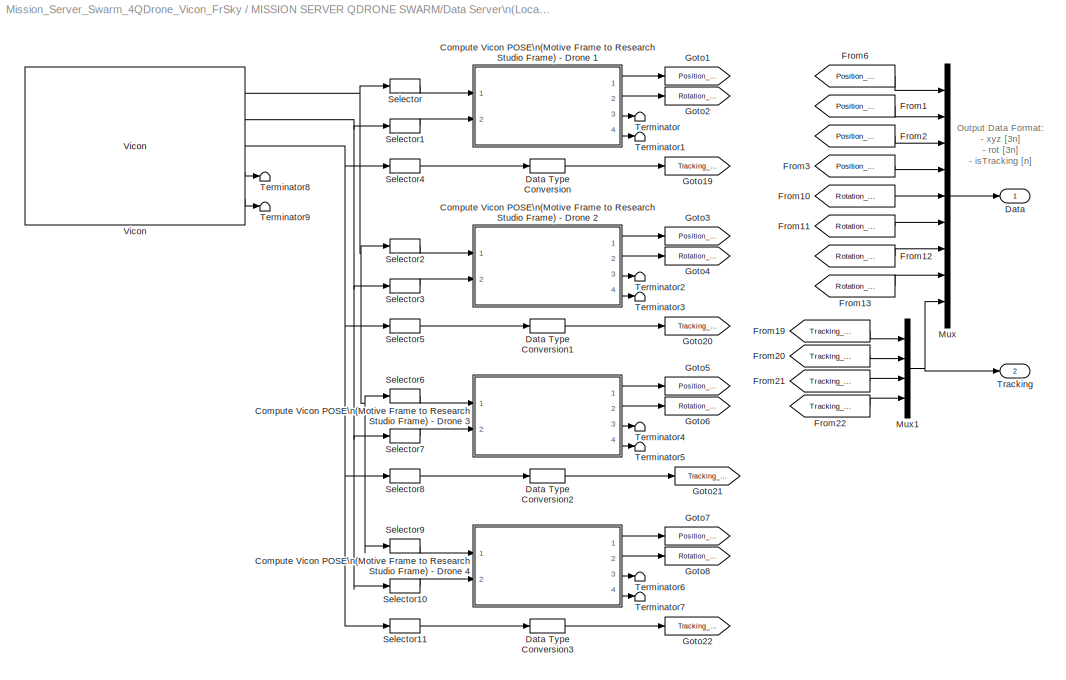
BLOCK [SubSystem] MISSION SERVER QDRONE SWARM/Data Server\n(Localization) 
  NameLocation = top
  Ports = [0, 2]
  RequestExecContextInheritance = off
  SID = 4155
BLOCK [SubSystem] MISSION SERVER QDRONE SWARM/Data Server\n(Localization) /Compute Vicon POSE\n(Motive Frame to Research Studio Frame) - Drone 1
  NameLocation = top
  Ports = [2, 4]
  RequestExecContextInheritance = off
  SID = 5491
BLOCK [Demux] MISSION SERVER QDRONE SWARM/Data Server\n(Localization) /Compute Vicon POSE\n(Motive Frame to Research Studio Frame) - Drone 1/Demux
  Outputs = 3
  Ports = [1, 3]
  SID = 5494
BLOCK [Reference] MISSION SERVER QDRONE SWARM/Data Server\n(Localization) /Compute Vicon POSE\n(Motive Frame to Research Studio Frame) - Drone 1/Euler Angles from\nRotation Matrix\n(Relative ZYX)  REF=quarc_library/Math Operations/Matrices/Euler Angles from\nRotation Matrix
  MultiThreadCoSim = auto
  Ports = [1, 3]
  SID = 5495
  SourceBlock = quarc_library/Math Operations/Matrices/Euler Angles from\nRotation Matrix
  SourceProductName = QUARC Targets
  SourceType = Euler Angles from Rotation Matrix
  menu_order = Relative Z-Y-X
BLOCK [Reference] MISSION SERVER QDRONE SWARM/Data Server\n(Localization) /Compute Vicon POSE\n(Motive Frame to Research Studio Frame) - Drone 1/Euler Angles to\nRotation Matrix\n(Relative XYZ)  REF=quarc_library/Math Operations/Matrices/Euler Angles to\nRotation Matrix
  MultiThreadCoSim = auto
  Ports = [3, 1]
  SID = 5496
  SourceBlock = quarc_library/Math Operations/Matrices/Euler Angles to\nRotation Matrix
  SourceProductName = QUARC Targets
  SourceType = Euler Angles to Rotation Matrix
  menu_order = Relative X-Y-Z
BLOCK [Math] MISSION SERVER QDRONE SWARM/Data Server\n(Localization) /Compute Vicon POSE\n(Motive Frame to Research Studio Frame) - Drone 1/Inverse of Orthonormal Matrix
  Operator = transpose
  Ports = [1, 1]
  SID = 5497
  SignedPower = on
BLOCK [Mux] MISSION SERVER QDRONE SWARM/Data Server\n(Localization) /Compute Vicon POSE\n(Motive Frame to Research Studio Frame) - Drone 1/Mux
  DisplayOption = bar
  Inputs = 3
  Ports = [3, 1]
  SID = 5498
BLOCK [Outport] MISSION SERVER QDRONE SWARM/Data Server\n(Localization) /Compute Vicon POSE\n(Motive Frame to Research Studio Frame) - Drone 1/R [3x3]
  Port = 3
  SID = 5501
  VectorParamsAs1DForOutWhenUnconnected = off
BLOCK [Outport] MISSION SERVER QDRONE SWARM/Data Server\n(Localization) /Compute Vicon POSE\n(Motive Frame to Research Studio Frame) - Drone 1/RT [3x3]
  Port = 4
  SID = 5502
  VectorParamsAs1DForOutWhenUnconnected = off
BLOCK [Outport] MISSION SERVER QDRONE SWARM/Data Server\n(Localization) /Compute Vicon POSE\n(Motive Frame to Research Studio Frame) - Drone 1/rot_RSF (rad) [3]
  Port = 2
  SID = 5500
  VectorParamsAs1DForOutWhenUnconnected = off
BLOCK [Inport] MISSION SERVER QDRONE SWARM/Data Server\n(Localization) /Compute Vicon POSE\n(Motive Frame to Research Studio Frame) - Drone 1/rot_global (rad) [3]
  Port = 2
  SID = 5493
BLOCK [Outport] MISSION SERVER QDRONE SWARM/Data Server\n(Localization) /Compute Vicon POSE\n(Motive Frame to Research Studio Frame) - Drone 1/xyz_RSF (m) [3]
  SID = 5499
  VectorParamsAs1DForOutWhenUnconnected = off
BLOCK [Inport] MISSION SERVER QDRONE SWARM/Data Server\n(Localization) /Compute Vicon POSE\n(Motive Frame to Research Studio Frame) - Drone 1/xyz_global (m) [3]
  SID = 5492
BLOCK [SubSystem] MISSION SERVER QDRONE SWARM/Data Server\n(Localization) /Compute Vicon POSE\n(Motive Frame to Research Studio Frame) - Drone 2
  NameLocation = top
  Ports = [2, 4]
  RequestExecContextInheritance = off
  SID = 5543
BLOCK [Demux] MISSION SERVER QDRONE SWARM/Data Server\n(Localization) /Compute Vicon POSE\n(Motive Frame to Research Studio Frame) - Drone 2/Demux
  Outputs = 3
  Ports = [1, 3]
  SID = 5546
BLOCK [Reference] MISSION SERVER QDRONE SWARM/Data Server\n(Localization) /Compute Vicon POSE\n(Motive Frame to Research Studio Frame) - Drone 2/Euler Angles from\nRotation Matrix\n(Relative ZYX)  REF=quarc_library/Math Operations/Matrices/Euler Angles from\nRotation Matrix
  MultiThreadCoSim = auto
  Ports = [1, 3]
  SID = 5547
  SourceBlock = quarc_library/Math Operations/Matrices/Euler Angles from\nRotation Matrix
  SourceProductName = QUARC Targets
  SourceType = Euler Angles from Rotation Matrix
  menu_order = Relative Z-Y-X
BLOCK [Reference] MISSION SERVER QDRONE SWARM/Data Server\n(Localization) /Compute Vicon POSE\n(Motive Frame to Research Studio Frame) - Drone 2/Euler Angles to\nRotation Matrix\n(Relative XYZ)  REF=quarc_library/Math Operations/Matrices/Euler Angles to\nRotation Matrix
  MultiThreadCoSim = auto
  Ports = [3, 1]
  SID = 5548
  SourceBlock = quarc_library/Math Operations/Matrices/Euler Angles to\nRotation Matrix
  SourceProductName = QUARC Targets
  SourceType = Euler Angles to Rotation Matrix
  menu_order = Relative X-Y-Z
BLOCK [Math] MISSION SERVER QDRONE SWARM/Data Server\n(Localization) /Compute Vicon POSE\n(Motive Frame to Research Studio Frame) - Drone 2/Inverse of Orthonormal Matrix
  Operator = transpose
  Ports = [1, 1]
  SID = 5549
  SignedPower = on
BLOCK [Mux] MISSION SERVER QDRONE SWARM/Data Server\n(Localization) /Compute Vicon POSE\n(Motive Frame to Research Studio Frame) - Drone 2/Mux
  DisplayOption = bar
  Inputs = 3
  Ports = [3, 1]
  SID = 5550
BLOCK [Outport] MISSION SERVER QDRONE SWARM/Data Server\n(Localization) /Compute Vicon POSE\n(Motive Frame to Research Studio Frame) - Drone 2/R [3x3]
  Port = 3
  SID = 5553
  VectorParamsAs1DForOutWhenUnconnected = off
BLOCK [Outport] MISSION SERVER QDRONE SWARM/Data Server\n(Localization) /Compute Vicon POSE\n(Motive Frame to Research Studio Frame) - Drone 2/RT [3x3]
  Port = 4
  SID = 5554
  VectorParamsAs1DForOutWhenUnconnected = off
BLOCK [Outport] MISSION SERVER QDRONE SWARM/Data Server\n(Localization) /Compute Vicon POSE\n(Motive Frame to Research Studio Frame) - Drone 2/rot_RSF (rad) [3]
  Port = 2
  SID = 5552
  VectorParamsAs1DForOutWhenUnconnected = off
BLOCK [Inport] MISSION SERVER QDRONE SWARM/Data Server\n(Localization) /Compute Vicon POSE\n(Motive Frame to Research Studio Frame) - Drone 2/rot_global (rad) [3]
  Port = 2
  SID = 5545
BLOCK [Outport] MISSION SERVER QDRONE SWARM/Data Server\n(Localization) /Compute Vicon POSE\n(Motive Frame to Research Studio Frame) - Drone 2/xyz_RSF (m) [3]
  SID = 5551
  VectorParamsAs1DForOutWhenUnconnected = off
BLOCK [Inport] MISSION SERVER QDRONE SWARM/Data Server\n(Localization) /Compute Vicon POSE\n(Motive Frame to Research Studio Frame) - Drone 2/xyz_global (m) [3]
  SID = 5544
BLOCK [SubSystem] MISSION SERVER QDRONE SWARM/Data Server\n(Localization) /Compute Vicon POSE\n(Motive Frame to Research Studio Frame) - Drone 3
  NameLocation = top
  Ports = [2, 4]
  RequestExecContextInheritance = off
  SID = 5556
BLOCK [Demux] MISSION SERVER QDRONE SWARM/Data Server\n(Localization) /Compute Vicon POSE\n(Motive Frame to Research Studio Frame) - Drone 3/Demux
  Outputs = 3
  Ports = [1, 3]
  SID = 5559
BLOCK [Reference] MISSION SERVER QDRONE SWARM/Data Server\n(Localization) /Compute Vicon POSE\n(Motive Frame to Research Studio Frame) - Drone 3/Euler Angles from\nRotation Matrix\n(Relative ZYX)  REF=quarc_library/Math Operations/Matrices/Euler Angles from\nRotation Matrix
  MultiThreadCoSim = auto
  Ports = [1, 3]
  SID = 5560
  SourceBlock = quarc_library/Math Operations/Matrices/Euler Angles from\nRotation Matrix
  SourceProductName = QUARC Targets
  SourceType = Euler Angles from Rotation Matrix
  menu_order = Relative Z-Y-X
BLOCK [Reference] MISSION SERVER QDRONE SWARM/Data Server\n(Localization) /Compute Vicon POSE\n(Motive Frame to Research Studio Frame) - Drone 3/Euler Angles to\nRotation Matrix\n(Relative XYZ)  REF=quarc_library/Math Operations/Matrices/Euler Angles to\nRotation Matrix
  MultiThreadCoSim = auto
  Ports = [3, 1]
  SID = 5561
  SourceBlock = quarc_library/Math Operations/Matrices/Euler Angles to\nRotation Matrix
  SourceProductName = QUARC Targets
  SourceType = Euler Angles to Rotation Matrix
  menu_order = Relative X-Y-Z
BLOCK [Math] MISSION SERVER QDRONE SWARM/Data Server\n(Localization) /Compute Vicon POSE\n(Motive Frame to Research Studio Frame) - Drone 3/Inverse of Orthonormal Matrix
  Operator = transpose
  Ports = [1, 1]
  SID = 5562
  SignedPower = on
BLOCK [Mux] MISSION SERVER QDRONE SWARM/Data Server\n(Localization) /Compute Vicon POSE\n(Motive Frame to Research Studio Frame) - Drone 3/Mux
  DisplayOption = bar
  Inputs = 3
  Ports = [3, 1]
  SID = 5563
BLOCK [Outport] MISSION SERVER QDRONE SWARM/Data Server\n(Localization) /Compute Vicon POSE\n(Motive Frame to Research Studio Frame) - Drone 3/R [3x3]
  Port = 3
  SID = 5566
  VectorParamsAs1DForOutWhenUnconnected = off
BLOCK [Outport] MISSION SERVER QDRONE SWARM/Data Server\n(Localization) /Compute Vicon POSE\n(Motive Frame to Research Studio Frame) - Drone 3/RT [3x3]
  Port = 4
  SID = 5567
  VectorParamsAs1DForOutWhenUnconnected = off
BLOCK [Outport] MISSION SERVER QDRONE SWARM/Data Server\n(Localization) /Compute Vicon POSE\n(Motive Frame to Research Studio Frame) - Drone 3/rot_RSF (rad) [3]
  Port = 2
  SID = 5565
  VectorParamsAs1DForOutWhenUnconnected = off
BLOCK [Inport] MISSION SERVER QDRONE SWARM/Data Server\n(Localization) /Compute Vicon POSE\n(Motive Frame to Research Studio Frame) - Drone 3/rot_global (rad) [3]
  Port = 2
  SID = 5558
BLOCK [Outport] MISSION SERVER QDRONE SWARM/Data Server\n(Localization) /Compute Vicon POSE\n(Motive Frame to Research Studio Frame) - Drone 3/xyz_RSF (m) [3]
  SID = 5564
  VectorParamsAs1DForOutWhenUnconnected = off
BLOCK [Inport] MISSION SERVER QDRONE SWARM/Data Server\n(Localization) /Compute Vicon POSE\n(Motive Frame to Research Studio Frame) - Drone 3/xyz_global (m) [3]
  SID = 5557
BLOCK [SubSystem] MISSION SERVER QDRONE SWARM/Data Server\n(Localization) /Compute Vicon POSE\n(Motive Frame to Research Studio Frame) - Drone 4
  NameLocation = top
  Ports = [2, 4]
  RequestExecContextInheritance = off
  SID = 5569
BLOCK [Demux] MISSION SERVER QDRONE SWARM/Data Server\n(Localization) /Compute Vicon POSE\n(Motive Frame to Research Studio Frame) - Drone 4/Demux
  Outputs = 3
  Ports = [1, 3]
  SID = 5572
BLOCK [Reference] MISSION SERVER QDRONE SWARM/Data Server\n(Localization) /Compute Vicon POSE\n(Motive Frame to Research Studio Frame) - Drone 4/Euler Angles from\nRotation Matrix\n(Relative ZYX)  REF=quarc_library/Math Operations/Matrices/Euler Angles from\nRotation Matrix
  MultiThreadCoSim = auto
  Ports = [1, 3]
  SID = 5573
  SourceBlock = quarc_library/Math Operations/Matrices/Euler Angles from\nRotation Matrix
  SourceProductName = QUARC Targets
  SourceType = Euler Angles from Rotation Matrix
  menu_order = Relative Z-Y-X
BLOCK [Reference] MISSION SERVER QDRONE SWARM/Data Server\n(Localization) /Compute Vicon POSE\n(Motive Frame to Research Studio Frame) - Drone 4/Euler Angles to\nRotation Matrix\n(Relative XYZ)  REF=quarc_library/Math Operations/Matrices/Euler Angles to\nRotation Matrix
  MultiThreadCoSim = auto
  Ports = [3, 1]
  SID = 5574
  SourceBlock = quarc_library/Math Operations/Matrices/Euler Angles to\nRotation Matrix
  SourceProductName = QUARC Targets
  SourceType = Euler Angles to Rotation Matrix
  menu_order = Relative X-Y-Z
BLOCK [Math] MISSION SERVER QDRONE SWARM/Data Server\n(Localization) /Compute Vicon POSE\n(Motive Frame to Research Studio Frame) - Drone 4/Inverse of Orthonormal Matrix
  Operator = transpose
  Ports = [1, 1]
  SID = 5575
  SignedPower = on
BLOCK [Mux] MISSION SERVER QDRONE SWARM/Data Server\n(Localization) /Compute Vicon POSE\n(Motive Frame to Research Studio Frame) - Drone 4/Mux
  DisplayOption = bar
  Inputs = 3
  Ports = [3, 1]
  SID = 5576
BLOCK [Outport] MISSION SERVER QDRONE SWARM/Data Server\n(Localization) /Compute Vicon POSE\n(Motive Frame to Research Studio Frame) - Drone 4/R [3x3]
  Port = 3
  SID = 5579
  VectorParamsAs1DForOutWhenUnconnected = off
BLOCK [Outport] MISSION SERVER QDRONE SWARM/Data Server\n(Localization) /Compute Vicon POSE\n(Motive Frame to Research Studio Frame) - Drone 4/RT [3x3]
  Port = 4
  SID = 5580
  VectorParamsAs1DForOutWhenUnconnected = off
BLOCK [Outport] MISSION SERVER QDRONE SWARM/Data Server\n(Localization) /Compute Vicon POSE\n(Motive Frame to Research Studio Frame) - Drone 4/rot_RSF (rad) [3]
  Port = 2
  SID = 5578
  VectorParamsAs1DForOutWhenUnconnected = off
BLOCK [Inport] MISSION SERVER QDRONE SWARM/Data Server\n(Localization) /Compute Vicon POSE\n(Motive Frame to Research Studio Frame) - Drone 4/rot_global (rad) [3]
  Port = 2
  SID = 5571
BLOCK [Outport] MISSION SERVER QDRONE SWARM/Data Server\n(Localization) /Compute Vicon POSE\n(Motive Frame to Research Studio Frame) - Drone 4/xyz_RSF (m) [3]
  SID = 5577
  VectorParamsAs1DForOutWhenUnconnected = off
BLOCK [Inport] MISSION SERVER QDRONE SWARM/Data Server\n(Localization) /Compute Vicon POSE\n(Motive Frame to Research Studio Frame) - Drone 4/xyz_global (m) [3]
  SID = 5570
BLOCK [Outport] MISSION SERVER QDRONE SWARM/Data Server\n(Localization) /Data
  SID = 4189
  VectorParamsAs1DForOutWhenUnconnected = off
BLOCK [DataTypeConversion] MISSION SERVER QDRONE SWARM/Data Server\n(Localization) /Data Type Conversion
  RndMeth = Floor
  SID = 4182
  SaturateOnIntegerOverflow = off
BLOCK [DataTypeConversion] MISSION SERVER QDRONE SWARM/Data Server\n(Localization) /Data Type Conversion1
  RndMeth = Floor
  SID = 4852
  SaturateOnIntegerOverflow = off
BLOCK [DataTypeConversion] MISSION SERVER QDRONE SWARM/Data Server\n(Localization) /Data Type Conversion2
  RndMeth = Floor
  SID = 4886
  SaturateOnIntegerOverflow = off
BLOCK [DataTypeConversion] MISSION SERVER QDRONE SWARM/Data Server\n(Localization) /Data Type Conversion3
  RndMeth = Floor
  SID = 4916
  SaturateOnIntegerOverflow = off
BLOCK [From] MISSION SERVER QDRONE SWARM/Data Server\n(Localization) /From1
  GotoTag = Position_V2
  SID = 5428
BLOCK [From] MISSION SERVER QDRONE SWARM/Data Server\n(Localization) /From10
  GotoTag = Rotation_V1
  SID = 5437
BLOCK [From] MISSION SERVER QDRONE SWARM/Data Server\n(Localization) /From11
  GotoTag = Rotation_V2
  SID = 5438
BLOCK [From] MISSION SERVER QDRONE SWARM/Data Server\n(Localization) /From12
  GotoTag = Rotation_V3
  SID = 5439
BLOCK [From] MISSION SERVER QDRONE SWARM/Data Server\n(Localization) /From13
  GotoTag = Rotation_V4
  SID = 5440
BLOCK [From] MISSION SERVER QDRONE SWARM/Data Server\n(Localization) /From19
  GotoTag = Tracking_V1
  SID = 5446
BLOCK [From] MISSION SERVER QDRONE SWARM/Data Server\n(Localization) /From2
  GotoTag = Position_V3
  SID = 5429
BLOCK [From] MISSION SERVER QDRONE SWARM/Data Server\n(Localization) /From20
  GotoTag = Tracking_V2
  SID = 5450
BLOCK [From] MISSION SERVER QDRONE SWARM/Data Server\n(Localization) /From21
  GotoTag = Tracking_V3
  SID = 5451
BLOCK [From] MISSION SERVER QDRONE SWARM/Data Server\n(Localization) /From22
  GotoTag = Tracking_V4
  SID = 5452
BLOCK [From] MISSION SERVER QDRONE SWARM/Data Server\n(Localization) /From3
  GotoTag = Position_V4
  SID = 5430
BLOCK [From] MISSION SERVER QDRONE SWARM/Data Server\n(Localization) /From6
  GotoTag = Position_V1
  SID = 5427
BLOCK [Goto] MISSION SERVER QDRONE SWARM/Data Server\n(Localization) /Goto1
  GotoTag = Position_V1
  SID = 5426
BLOCK [Goto] MISSION SERVER QDRONE SWARM/Data Server\n(Localization) /Goto19
  GotoTag = Tracking_V1
  SID = 5474
BLOCK [Goto] MISSION SERVER QDRONE SWARM/Data Server\n(Localization) /Goto2
  GotoTag = Rotation_V1
  SID = 5436
BLOCK [Goto] MISSION SERVER QDRONE SWARM/Data Server\n(Localization) /Goto20
  GotoTag = Tracking_V2
  SID = 5475
BLOCK [Goto] MISSION SERVER QDRONE SWARM/Data Server\n(Localization) /Goto21
  GotoTag = Tracking_V3
  SID = 5476
BLOCK [Goto] MISSION SERVER QDRONE SWARM/Data Server\n(Localization) /Goto22
  GotoTag = Tracking_V4
  SID = 5477
BLOCK [Goto] MISSION SERVER QDRONE SWARM/Data Server\n(Localization) /Goto3
  GotoTag = Position_V2
  SID = 5458
BLOCK [Goto] MISSION SERVER QDRONE SWARM/Data Server\n(Localization) /Goto4
  GotoTag = Rotation_V2
  SID = 5459
BLOCK [Goto] MISSION SERVER QDRONE SWARM/Data Server\n(Localization) /Goto5
  GotoTag = Position_V3
  SID = 5460
BLOCK [Goto] MISSION SERVER QDRONE SWARM/Data Server\n(Localization) /Goto6
  GotoTag = Rotation_V3
  SID = 5461
BLOCK [Goto] MISSION SERVER QDRONE SWARM/Data Server\n(Localization) /Goto7
  GotoTag = Position_V4
  SID = 5462
BLOCK [Goto] MISSION SERVER QDRONE SWARM/Data Server\n(Localization) /Goto8
  GotoTag = Rotation_V4
  SID = 5463
BLOCK [Mux] MISSION SERVER QDRONE SWARM/Data Server\n(Localization) /Mux
  DisplayOption = bar
  Inputs = 9
  Ports = [9, 1]
  SID = 4183
BLOCK [Mux] MISSION SERVER QDRONE SWARM/Data Server\n(Localization) /Mux1
  DisplayOption = bar
  Ports = [4, 1]
  SID = 4859
BLOCK [Selector] MISSION SERVER QDRONE SWARM/Data Server\n(Localization) /Selector
  IndexOptions = Index vector (dialog)
  Indices = [1:3]
  InputPortWidth = 12
  OutputSizes = 1
  Ports = [1, 1]
  SID = 4853
BLOCK [Selector] MISSION SERVER QDRONE SWARM/Data Server\n(Localization) /Selector1
  IndexOptions = Index vector (dialog)
  Indices = [1:3]
  InputPortWidth = 12
  OutputSizes = 1
  Ports = [1, 1]
  SID = 4854
BLOCK [Selector] MISSION SERVER QDRONE SWARM/Data Server\n(Localization) /Selector10
  IndexOptions = Index vector (dialog)
  Indices = [10:12]
  InputPortWidth = 12
  OutputSizes = 1
  Ports = [1, 1]
  SID = 4918
BLOCK [Selector] MISSION SERVER QDRONE SWARM/Data Server\n(Localization) /Selector11
  IndexOptions = Index vector (dialog)
  Indices = [4]
  InputPortWidth = 4
  OutputSizes = 1
  Ports = [1, 1]
  SID = 4919
BLOCK [Selector] MISSION SERVER QDRONE SWARM/Data Server\n(Localization) /Selector2
  IndexOptions = Index vector (dialog)
  Indices = [4:6]
  InputPortWidth = 12
  OutputSizes = 1
  Ports = [1, 1]
  SID = 4855
BLOCK [Selector] MISSION SERVER QDRONE SWARM/Data Server\n(Localization) /Selector3
  IndexOptions = Index vector (dialog)
  Indices = [4:6]
  InputPortWidth = 12
  OutputSizes = 1
  Ports = [1, 1]
  SID = 4856
BLOCK [Selector] MISSION SERVER QDRONE SWARM/Data Server\n(Localization) /Selector4
  IndexOptions = Index vector (dialog)
  Indices = [1]
  InputPortWidth = 4
  OutputSizes = 1
  Ports = [1, 1]
  SID = 4857
BLOCK [Selector] MISSION SERVER QDRONE SWARM/Data Server\n(Localization) /Selector5
  IndexOptions = Index vector (dialog)
  Indices = [2]
  InputPortWidth = 4
  OutputSizes = 1
  Ports = [1, 1]
  SID = 4858
BLOCK [Selector] MISSION SERVER QDRONE SWARM/Data Server\n(Localization) /Selector6
  IndexOptions = Index vector (dialog)
  Indices = [7:9]
  InputPortWidth = 12
  OutputSizes = 1
  Ports = [1, 1]
  SID = 4887
BLOCK [Selector] MISSION SERVER QDRONE SWARM/Data Server\n(Localization) /Selector7
  IndexOptions = Index vector (dialog)
  Indices = [7:9]
  InputPortWidth = 12
  OutputSizes = 1
  Ports = [1, 1]
  SID = 4888
BLOCK [Selector] MISSION SERVER QDRONE SWARM/Data Server\n(Localization) /Selector8
  IndexOptions = Index vector (dialog)
  Indices = [3]
  InputPortWidth = 4
  OutputSizes = 1
  Ports = [1, 1]
  SID = 4889
BLOCK [Selector] MISSION SERVER QDRONE SWARM/Data Server\n(Localization) /Selector9
  IndexOptions = Index vector (dialog)
  Indices = [10:12]
  InputPortWidth = 12
  OutputSizes = 1
  Ports = [1, 1]
  SID = 4917
BLOCK [Terminator] MISSION SERVER QDRONE SWARM/Data Server\n(Localization) /Terminator
  SID = 5582
BLOCK [Terminator] MISSION SERVER QDRONE SWARM/Data Server\n(Localization) /Terminator1
  SID = 5583
BLOCK [Terminator] MISSION SERVER QDRONE SWARM/Data Server\n(Localization) /Terminator2
  SID = 5584
BLOCK [Terminator] MISSION SERVER QDRONE SWARM/Data Server\n(Localization) /Terminator3
  SID = 5585
BLOCK [Terminator] MISSION SERVER QDRONE SWARM/Data Server\n(Localization) /Terminator4
  SID = 5586
BLOCK [Terminator] MISSION SERVER QDRONE SWARM/Data Server\n(Localization) /Terminator5
  SID = 5587
BLOCK [Terminator] MISSION SERVER QDRONE SWARM/Data Server\n(Localization) /Terminator6
  SID = 5588
BLOCK [Terminator] MISSION SERVER QDRONE SWARM/Data Server\n(Localization) /Terminator7
  SID = 5589
BLOCK [Terminator] MISSION SERVER QDRONE SWARM/Data Server\n(Localization) /Terminator8
  SID = 5590
BLOCK [Terminator] MISSION SERVER QDRONE SWARM/Data Server\n(Localization) /Terminator9
  SID = 5591
BLOCK [Outport] MISSION SERVER QDRONE SWARM/Data Server\n(Localization) /Tracking
  Port = 2
  SID = 4190
  VectorParamsAs1DForOutWhenUnconnected = off
BLOCK [Reference] MISSION SERVER QDRONE SWARM/Data Server\n(Localization) /Vicon  REF=quarc_library/Devices/Third-Party/Vicon/Vicon
  MultiThreadCoSim = auto
  Ports = [0, 5]
  SID = 5490
  SourceBlock = quarc_library/Devices/Third-Party/Vicon/Vicon
  SourceProductName = QUARC Targets
  SourceType = Vicon
  active = on
  hostname = localhost:801
  marker_list = \\0
  num_markers = 0
  num_segments = 4
  sample_time = qc_get_step_size
  segment_list = ObjectName.ObjectName<path>
  stream_mode = 2
  unlabeled_markers = []
BLOCK [Demux] MISSION SERVER QDRONE SWARM/Demux
  Outputs = [4 4 4 4 ]
  Ports = [1, 4]
  SID = 4192
BLOCK [Display] MISSION SERVER QDRONE SWARM/Display
  Decimation = 1
  Ports = [1]
  SID = 4193
BLOCK [Display] MISSION SERVER QDRONE SWARM/Display1
  Decimation = 1
  Ports = [1]
  SID = 4194
BLOCK [Display] MISSION SERVER QDRONE SWARM/Display2
  Decimation = 1
  Ports = [1]
  SID = 4195
BLOCK [Display] MISSION SERVER QDRONE SWARM/Display4
  Decimation = 1
  Ports = [1]
  SID = 4196
BLOCK [SubSystem] MISSION SERVER QDRONE SWARM/Extract Vehicle Data 1
  Ports = [2, 1]
  RequestExecContextInheritance = off
  SID = 4197
BLOCK [DataTypeConversion] MISSION SERVER QDRONE SWARM/Extract Vehicle Data 1/Data Type Conversion10
  RndMeth = Floor
  SID = 4200
  SaturateOnIntegerOverflow = off
BLOCK [DataTypeConversion] MISSION SERVER QDRONE SWARM/Extract Vehicle Data 1/Data Type Conversion11
  RndMeth = Floor
  SID = 4201
  SaturateOnIntegerOverflow = off
BLOCK [DataTypeConversion] MISSION SERVER QDRONE SWARM/Extract Vehicle Data 1/Data Type Conversion9
  RndMeth = Floor
  SID = 4202
  SaturateOnIntegerOverflow = off
BLOCK [SubSystem] MISSION SERVER QDRONE SWARM/Extract Vehicle Data 1/Extract Object Data
  ErrorFcn = Stateflow.Translate.translate
  PermitHierarchicalResolution = ExplicitOnly
  Ports = [2, 3]
  RequestExecContextInheritance = off
  SFBlockType = MATLAB Function
  SID = 4203
  TreatAsAtomicUnit = on
BLOCK [Demux] MISSION SERVER QDRONE SWARM/Extract Vehicle Data 1/Extract Object Data/ Demux 
  Outputs = 1
  Ports = [1, 1]
  SID = 4203::62
BLOCK [S-Function] MISSION SERVER QDRONE SWARM/Extract Vehicle Data 1/Extract Object Data/ SFunction 
  EnableBusSupport = off
  FunctionName = sf_sfun
  PortCounts = [2 4]
  Ports = [2, 4]
  SFcnIsStateOwnerBlock = off
  SFunctionDeploymentMode = off
  SID = 4203::61
  Tag = Stateflow S-Function 18
BLOCK [Terminator] MISSION SERVER QDRONE SWARM/Extract Vehicle Data 1/Extract Object Data/ Terminator 
  SID = 4203::63
BLOCK [Inport] MISSION SERVER QDRONE SWARM/Extract Vehicle Data 1/Extract Object Data/data
  SID = 4203::1
BLOCK [Inport] MISSION SERVER QDRONE SWARM/Extract Vehicle Data 1/Extract Object Data/index
  Port = 2
  SID = 4203::19
BLOCK [Outport] MISSION SERVER QDRONE SWARM/Extract Vehicle Data 1/Extract Object Data/orientation
  Port = 2
  SID = 4203::21
  VectorParamsAs1DForOutWhenUnconnected = off
BLOCK [Outport] MISSION SERVER QDRONE SWARM/Extract Vehicle Data 1/Extract Object Data/position
  SID = 4203::5
  VectorParamsAs1DForOutWhenUnconnected = off
BLOCK [Outport] MISSION SERVER QDRONE SWARM/Extract Vehicle Data 1/Extract Object Data/tracking
  Port = 3
  SID = 4203::20
  VectorParamsAs1DForOutWhenUnconnected = off
BLOCK [Mux] MISSION SERVER QDRONE SWARM/Extract Vehicle Data 1/Mux1
  DisplayOption = bar
  Inputs = 3
  Ports = [3, 1]
  SID = 4204
BLOCK [Inport] MISSION SERVER QDRONE SWARM/Extract Vehicle Data 1/Optitrack Data
  SID = 4198
BLOCK [Reshape] MISSION SERVER QDRONE SWARM/Extract Vehicle Data 1/Reshape
  Ports = [1, 1]
  SID = 4205
BLOCK [Reshape] MISSION SERVER QDRONE SWARM/Extract Vehicle Data 1/Reshape1
  Ports = [1, 1]
  SID = 4206
BLOCK [Reshape] MISSION SERVER QDRONE SWARM/Extract Vehicle Data 1/Reshape2
  Ports = [1, 1]
  SID = 4207
BLOCK [Outport] MISSION SERVER QDRONE SWARM/Extract Vehicle Data 1/Vehicle Data
  SID = 4208
  VectorParamsAs1DForOutWhenUnconnected = off
BLOCK [Inport] MISSION SERVER QDRONE SWARM/Extract Vehicle Data 1/Vehicle ID
  Port = 2
  SID = 4199
BLOCK [SubSystem] MISSION SERVER QDRONE SWARM/Extract Vehicle Data 2
  Ports = [2, 1]
  RequestExecContextInheritance = off
  SID = 4209
BLOCK [DataTypeConversion] MISSION SERVER QDRONE SWARM/Extract Vehicle Data 2/Data Type Conversion10
  RndMeth = Floor
  SID = 4212
  SaturateOnIntegerOverflow = off
BLOCK [DataTypeConversion] MISSION SERVER QDRONE SWARM/Extract Vehicle Data 2/Data Type Conversion11
  RndMeth = Floor
  SID = 4213
  SaturateOnIntegerOverflow = off
BLOCK [DataTypeConversion] MISSION SERVER QDRONE SWARM/Extract Vehicle Data 2/Data Type Conversion9
  RndMeth = Floor
  SID = 4214
  SaturateOnIntegerOverflow = off
BLOCK [Display] MISSION SERVER QDRONE SWARM/Extract Vehicle Data 2/Display
  Decimation = 1
  Ports = [1]
  SID = 5483
BLOCK [Display] MISSION SERVER QDRONE SWARM/Extract Vehicle Data 2/Display1
  Decimation = 1
  Ports = [1]
  SID = 5484
BLOCK [SubSystem] MISSION SERVER QDRONE SWARM/Extract Vehicle Data 2/Extract Object Data
  ErrorFcn = Stateflow.Translate.translate
  PermitHierarchicalResolution = ExplicitOnly
  Ports = [2, 3]
  RequestExecContextInheritance = off
  SFBlockType = MATLAB Function
  SID = 4215
  TreatAsAtomicUnit = on
BLOCK [Demux] MISSION SERVER QDRONE SWARM/Extract Vehicle Data 2/Extract Object Data/ Demux 
  Outputs = 1
  Ports = [1, 1]
  SID = 4215::62
BLOCK [S-Function] MISSION SERVER QDRONE SWARM/Extract Vehicle Data 2/Extract Object Data/ SFunction 
  EnableBusSupport = off
  FunctionName = sf_sfun
  PortCounts = [2 4]
  Ports = [2, 4]
  SFcnIsStateOwnerBlock = off
  SFunctionDeploymentMode = off
  SID = 4215::61
  Tag = Stateflow S-Function 19
BLOCK [Terminator] MISSION SERVER QDRONE SWARM/Extract Vehicle Data 2/Extract Object Data/ Terminator 
  SID = 4215::63
BLOCK [Inport] MISSION SERVER QDRONE SWARM/Extract Vehicle Data 2/Extract Object Data/data
  SID = 4215::1
BLOCK [Inport] MISSION SERVER QDRONE SWARM/Extract Vehicle Data 2/Extract Object Data/index
  Port = 2
  SID = 4215::19
BLOCK [Outport] MISSION SERVER QDRONE SWARM/Extract Vehicle Data 2/Extract Object Data/orientation
  Port = 2
  SID = 4215::21
  VectorParamsAs1DForOutWhenUnconnected = off
BLOCK [Outport] MISSION SERVER QDRONE SWARM/Extract Vehicle Data 2/Extract Object Data/position
  SID = 4215::5
  VectorParamsAs1DForOutWhenUnconnected = off
BLOCK [Outport] MISSION SERVER QDRONE SWARM/Extract Vehicle Data 2/Extract Object Data/tracking
  Port = 3
  SID = 4215::20
  VectorParamsAs1DForOutWhenUnconnected = off
BLOCK [Mux] MISSION SERVER QDRONE SWARM/Extract Vehicle Data 2/Mux1
  DisplayOption = bar
  Inputs = 3
  Ports = [3, 1]
  SID = 4216
BLOCK [Inport] MISSION SERVER QDRONE SWARM/Extract Vehicle Data 2/Optitrack Data
  SID = 4210
BLOCK [Reshape] MISSION SERVER QDRONE SWARM/Extract Vehicle Data 2/Reshape
  Ports = [1, 1]
  SID = 4217
BLOCK [Reshape] MISSION SERVER QDRONE SWARM/Extract Vehicle Data 2/Reshape1
  Ports = [1, 1]
  SID = 4218
BLOCK [Reshape] MISSION SERVER QDRONE SWARM/Extract Vehicle Data 2/Reshape2
  Ports = [1, 1]
  SID = 4219
BLOCK [Outport] MISSION SERVER QDRONE SWARM/Extract Vehicle Data 2/Vehicle Data
  SID = 4220
  VectorParamsAs1DForOutWhenUnconnected = off
BLOCK [Inport] MISSION SERVER QDRONE SWARM/Extract Vehicle Data 2/Vehicle ID
  Port = 2
  SID = 4211
BLOCK [SubSystem] MISSION SERVER QDRONE SWARM/Extract Vehicle Data 3
  Ports = [2, 1]
  RequestExecContextInheritance = off
  SID = 4221
BLOCK [DataTypeConversion] MISSION SERVER QDRONE SWARM/Extract Vehicle Data 3/Data Type Conversion10
  RndMeth = Floor
  SID = 4224
  SaturateOnIntegerOverflow = off
BLOCK [DataTypeConversion] MISSION SERVER QDRONE SWARM/Extract Vehicle Data 3/Data Type Conversion11
  RndMeth = Floor
  SID = 4225
  SaturateOnIntegerOverflow = off
BLOCK [DataTypeConversion] MISSION SERVER QDRONE SWARM/Extract Vehicle Data 3/Data Type Conversion9
  RndMeth = Floor
  SID = 4226
  SaturateOnIntegerOverflow = off
BLOCK [SubSystem] MISSION SERVER QDRONE SWARM/Extract Vehicle Data 3/Extract Object Data
  ErrorFcn = Stateflow.Translate.translate
  PermitHierarchicalResolution = ExplicitOnly
  Ports = [2, 3]
  RequestExecContextInheritance = off
  SFBlockType = MATLAB Function
  SID = 4227
  TreatAsAtomicUnit = on
BLOCK [Demux] MISSION SERVER QDRONE SWARM/Extract Vehicle Data 3/Extract Object Data/ Demux 
  Outputs = 1
  Ports = [1, 1]
  SID = 4227::62
BLOCK [S-Function] MISSION SERVER QDRONE SWARM/Extract Vehicle Data 3/Extract Object Data/ SFunction 
  EnableBusSupport = off
  FunctionName = sf_sfun
  PortCounts = [2 4]
  Ports = [2, 4]
  SFcnIsStateOwnerBlock = off
  SFunctionDeploymentMode = off
  SID = 4227::61
  Tag = Stateflow S-Function 20
BLOCK [Terminator] MISSION SERVER QDRONE SWARM/Extract Vehicle Data 3/Extract Object Data/ Terminator 
  SID = 4227::63
BLOCK [Inport] MISSION SERVER QDRONE SWARM/Extract Vehicle Data 3/Extract Object Data/data
  SID = 4227::1
BLOCK [Inport] MISSION SERVER QDRONE SWARM/Extract Vehicle Data 3/Extract Object Data/index
  Port = 2
  SID = 4227::19
BLOCK [Outport] MISSION SERVER QDRONE SWARM/Extract Vehicle Data 3/Extract Object Data/orientation
  Port = 2
  SID = 4227::21
  VectorParamsAs1DForOutWhenUnconnected = off
BLOCK [Outport] MISSION SERVER QDRONE SWARM/Extract Vehicle Data 3/Extract Object Data/position
  SID = 4227::5
  VectorParamsAs1DForOutWhenUnconnected = off
BLOCK [Outport] MISSION SERVER QDRONE SWARM/Extract Vehicle Data 3/Extract Object Data/tracking
  Port = 3
  SID = 4227::20
  VectorParamsAs1DForOutWhenUnconnected = off
BLOCK [Mux] MISSION SERVER QDRONE SWARM/Extract Vehicle Data 3/Mux1
  DisplayOption = bar
  Inputs = 3
  Ports = [3, 1]
  SID = 4228
BLOCK [Inport] MISSION SERVER QDRONE SWARM/Extract Vehicle Data 3/Optitrack Data
  SID = 4222
BLOCK [Reshape] MISSION SERVER QDRONE SWARM/Extract Vehicle Data 3/Reshape
  Ports = [1, 1]
  SID = 4229
BLOCK [Reshape] MISSION SERVER QDRONE SWARM/Extract Vehicle Data 3/Reshape1
  Ports = [1, 1]
  SID = 4230
BLOCK [Reshape] MISSION SERVER QDRONE SWARM/Extract Vehicle Data 3/Reshape2
  Ports = [1, 1]
  SID = 4231
BLOCK [Outport] MISSION SERVER QDRONE SWARM/Extract Vehicle Data 3/Vehicle Data
  SID = 4232
  VectorParamsAs1DForOutWhenUnconnected = off
BLOCK [Inport] MISSION SERVER QDRONE SWARM/Extract Vehicle Data 3/Vehicle ID
  Port = 2
  SID = 4223
BLOCK [SubSystem] MISSION SERVER QDRONE SWARM/Extract Vehicle Data 4
  Ports = [2, 1]
  RequestExecContextInheritance = off
  SID = 4233
BLOCK [DataTypeConversion] MISSION SERVER QDRONE SWARM/Extract Vehicle Data 4/Data Type Conversion10
  RndMeth = Floor
  SID = 4236
  SaturateOnIntegerOverflow = off
BLOCK [DataTypeConversion] MISSION SERVER QDRONE SWARM/Extract Vehicle Data 4/Data Type Conversion11
  RndMeth = Floor
  SID = 4237
  SaturateOnIntegerOverflow = off
BLOCK [DataTypeConversion] MISSION SERVER QDRONE SWARM/Extract Vehicle Data 4/Data Type Conversion9
  RndMeth = Floor
  SID = 4238
  SaturateOnIntegerOverflow = off
BLOCK [SubSystem] MISSION SERVER QDRONE SWARM/Extract Vehicle Data 4/Extract Object Data
  ErrorFcn = Stateflow.Translate.translate
  PermitHierarchicalResolution = ExplicitOnly
  Ports = [2, 3]
  RequestExecContextInheritance = off
  SFBlockType = MATLAB Function
  SID = 4239
  TreatAsAtomicUnit = on
BLOCK [Demux] MISSION SERVER QDRONE SWARM/Extract Vehicle Data 4/Extract Object Data/ Demux 
  Outputs = 1
  Ports = [1, 1]
  SID = 4239::62
BLOCK [S-Function] MISSION SERVER QDRONE SWARM/Extract Vehicle Data 4/Extract Object Data/ SFunction 
  EnableBusSupport = off
  FunctionName = sf_sfun
  PortCounts = [2 4]
  Ports = [2, 4]
  SFcnIsStateOwnerBlock = off
  SFunctionDeploymentMode = off
  SID = 4239::61
  Tag = Stateflow S-Function 21
BLOCK [Terminator] MISSION SERVER QDRONE SWARM/Extract Vehicle Data 4/Extract Object Data/ Terminator 
  SID = 4239::63
BLOCK [Inport] MISSION SERVER QDRONE SWARM/Extract Vehicle Data 4/Extract Object Data/data
  SID = 4239::1
BLOCK [Inport] MISSION SERVER QDRONE SWARM/Extract Vehicle Data 4/Extract Object Data/index
  Port = 2
  SID = 4239::19
BLOCK [Outport] MISSION SERVER QDRONE SWARM/Extract Vehicle Data 4/Extract Object Data/orientation
  Port = 2
  SID = 4239::21
  VectorParamsAs1DForOutWhenUnconnected = off
BLOCK [Outport] MISSION SERVER QDRONE SWARM/Extract Vehicle Data 4/Extract Object Data/position
  SID = 4239::5
  VectorParamsAs1DForOutWhenUnconnected = off
BLOCK [Outport] MISSION SERVER QDRONE SWARM/Extract Vehicle Data 4/Extract Object Data/tracking
  Port = 3
  SID = 4239::20
  VectorParamsAs1DForOutWhenUnconnected = off
BLOCK [Mux] MISSION SERVER QDRONE SWARM/Extract Vehicle Data 4/Mux1
  DisplayOption = bar
  Inputs = 3
  Ports = [3, 1]
  SID = 4240
BLOCK [Inport] MISSION SERVER QDRONE SWARM/Extract Vehicle Data 4/Optitrack Data
  SID = 4234
BLOCK [Reshape] MISSION SERVER QDRONE SWARM/Extract Vehicle Data 4/Reshape
  Ports = [1, 1]
  SID = 4241
BLOCK [Reshape] MISSION SERVER QDRONE SWARM/Extract Vehicle Data 4/Reshape1
  Ports = [1, 1]
  SID = 4242
BLOCK [Reshape] MISSION SERVER QDRONE SWARM/Extract Vehicle Data 4/Reshape2
  Ports = [1, 1]
  SID = 4243
BLOCK [Outport] MISSION SERVER QDRONE SWARM/Extract Vehicle Data 4/Vehicle Data
  SID = 4244
  VectorParamsAs1DForOutWhenUnconnected = off
BLOCK [Inport] MISSION SERVER QDRONE SWARM/Extract Vehicle Data 4/Vehicle ID
  Port = 2
  SID = 4235
BLOCK [From] MISSION SERVER QDRONE SWARM/From
  GotoTag = enable
  SID = 4269
BLOCK [From] MISSION SERVER QDRONE SWARM/From1
  GotoTag = enable
  SID = 4270
BLOCK [From] MISSION SERVER QDRONE SWARM/From10
  GotoTag = traj_4
  SID = 4271
BLOCK [From] MISSION SERVER QDRONE SWARM/From12
  GotoTag = traj_1
  SID = 4273
BLOCK [From] MISSION SERVER QDRONE SWARM/From16
  GotoTag = vh4
  SID = 4277
BLOCK [From] MISSION SERVER QDRONE SWARM/From18
  GotoTag = enable
  SID = 4279
BLOCK [From] MISSION SERVER QDRONE SWARM/From19
  GotoTag = play_pause
  SID = 4280
BLOCK [From] MISSION SERVER QDRONE SWARM/From2
  GotoTag = traj_2
  SID = 4281
BLOCK [From] MISSION SERVER QDRONE SWARM/From20
  GotoTag = home1
  SID = 4282
BLOCK [From] MISSION SERVER QDRONE SWARM/From21
  GotoTag = home2
  SID = 4283
BLOCK [From] MISSION SERVER QDRONE SWARM/From22
  GotoTag = home3
  SID = 4284
BLOCK [From] MISSION SERVER QDRONE SWARM/From23
  GotoTag = home4
  SID = 4285
BLOCK [From] MISSION SERVER QDRONE SWARM/From26
  GotoTag = enable
  SID = 4288
BLOCK [From] MISSION SERVER QDRONE SWARM/From27
  GotoTag = play_pause
  SID = 4289
BLOCK [From] MISSION SERVER QDRONE SWARM/From28
  GotoTag = traj_4
  SID = 4290
BLOCK [From] MISSION SERVER QDRONE SWARM/From3
  GotoTag = vh2
  SID = 4292
BLOCK [From] MISSION SERVER QDRONE SWARM/From30
  GotoTag = traj_1
  SID = 4293
BLOCK [From] MISSION SERVER QDRONE SWARM/From32
  GotoTag = traj_2
  SID = 4295
BLOCK [From] MISSION SERVER QDRONE SWARM/From33
  GotoTag = traj_3
  SID = 4296
BLOCK [From] MISSION SERVER QDRONE SWARM/From34
  GotoTag = home1
  SID = 4297
BLOCK [From] MISSION SERVER QDRONE SWARM/From35
  GotoTag = home2
  SID = 4298
BLOCK [From] MISSION SERVER QDRONE SWARM/From36
  GotoTag = home3
  SID = 4299
BLOCK [From] MISSION SERVER QDRONE SWARM/From37
  GotoTag = home4
  SID = 4300
BLOCK [From] MISSION SERVER QDRONE SWARM/From4
  GotoTag = enable
  SID = 4303
BLOCK [From] MISSION SERVER QDRONE SWARM/From40
  GotoTag = loop_times
  SID = 4304
BLOCK [From] MISSION SERVER QDRONE SWARM/From41
  GotoTag = comm_issues
  SID = 4305
BLOCK [From] MISSION SERVER QDRONE SWARM/From5
  GotoTag = traj_3
  SID = 4306
BLOCK [From] MISSION SERVER QDRONE SWARM/From6
  GotoTag = vh1
  SID = 4307
BLOCK [From] MISSION SERVER QDRONE SWARM/From7
  GotoTag = vh3
  SID = 4308
BLOCK [From] MISSION SERVER QDRONE SWARM/From8
  GotoTag = enable
  SID = 4309
BLOCK [Goto] MISSION SERVER QDRONE SWARM/Goto
  GotoTag = enable
  SID = 4311
BLOCK [Goto] MISSION SERVER QDRONE SWARM/Goto1
  GotoTag = vh1
  SID = 4312
BLOCK [Goto] MISSION SERVER QDRONE SWARM/Goto10
  GotoTag = traj_3
  SID = 4313
BLOCK [Goto] MISSION SERVER QDRONE SWARM/Goto11
  GotoTag = traj_2
  SID = 4314
BLOCK [Goto] MISSION SERVER QDRONE SWARM/Goto12
  GotoTag = traj_1
  SID = 4315
BLOCK [Goto] MISSION SERVER QDRONE SWARM/Goto13
  GotoTag = play_pause
  SID = 4316
BLOCK [Goto] MISSION SERVER QDRONE SWARM/Goto14
  GotoTag = home1
  SID = 4317
BLOCK [Goto] MISSION SERVER QDRONE SWARM/Goto15
  GotoTag = home2
  SID = 4318
BLOCK [Goto] MISSION SERVER QDRONE SWARM/Goto16
  GotoTag = home3
  SID = 4319
BLOCK [Goto] MISSION SERVER QDRONE SWARM/Goto17
  GotoTag = home4
  SID = 4320
BLOCK [Goto] MISSION SERVER QDRONE SWARM/Goto2
  GotoTag = vh4
  SID = 4323
BLOCK [Goto] MISSION SERVER QDRONE SWARM/Goto20
  GotoTag = comm_issues
  SID = 4324
BLOCK [Goto] MISSION SERVER QDRONE SWARM/Goto21
  GotoTag = loop_times
  SID = 4325
BLOCK [Goto] MISSION SERVER QDRONE SWARM/Goto4
  GotoTag = vh2
  SID = 4327
BLOCK [Goto] MISSION SERVER QDRONE SWARM/Goto6
  GotoTag = vh3
  SID = 4329
BLOCK [Goto] MISSION SERVER QDRONE SWARM/Goto9
  GotoTag = traj_4
  SID = 4332
BLOCK [Constant] MISSION SERVER QDRONE SWARM/Home height (m)
  SID = 4333
BLOCK [Constant] MISSION SERVER QDRONE SWARM/Home height (m)1
  SID = 4334
BLOCK [Constant] MISSION SERVER QDRONE SWARM/Home height (m)2
  SID = 4335
BLOCK [Constant] MISSION SERVER QDRONE SWARM/Home height (m)3
  SID = 4336
BLOCK [SubSystem] MISSION SERVER QDRONE SWARM/JOYSTICK
  Ports = [0, 3]
  RequestExecContextInheritance = off
  SID = 5794
BLOCK [Logic] MISSION SERVER QDRONE SWARM/JOYSTICK/AND
  AllPortsSameDT = off
  Inputs = 1
  OutDataTypeStr = boolean
  Ports = [1, 1]
  SID = 5795
BLOCK [Outport] MISSION SERVER QDRONE SWARM/JOYSTICK/Commands (%) [4]
  Port = 3
  SID = 5882
  VectorParamsAs1DForOutWhenUnconnected = off
BLOCK [Reference] MISSION SERVER QDRONE SWARM/JOYSTICK/Compare  REF=quarc_library/Logic Operations/Compare
  MultiThreadCoSim = auto
  Ports = [2, 1]
  SID = 5796
  SourceBlock = quarc_library/Logic Operations/Compare
  SourceProductName = QUARC Targets
  SourceType = Compare
  operator = ==
  output_data_type = boolean
BLOCK [Constant] MISSION SERVER QDRONE SWARM/JOYSTICK/Constant
  SID = 5797
  Value = -1*ones(1,6)
BLOCK [SubSystem] MISSION SERVER QDRONE SWARM/JOYSTICK/FrSKYMapping
  NameLocation = top
  Ports = [8, 7, 1]
  RequestExecContextInheritance = off
  SID = 5798
BLOCK [Selector] MISSION SERVER QDRONE SWARM/JOYSTICK/FrSKYMapping/Arm selector
  IndexOptions = Index vector (dialog)
  Indices = [2]
  InputPortWidth = 32
  OutputSizes = 1
  Ports = [1, 1]
  SID = 5808
BLOCK [Outport] MISSION SERVER QDRONE SWARM/JOYSTICK/FrSKYMapping/Arm//Disarm (bool) 
  Port = 6
  SID = 5823
  VectorParamsAs1DForOutWhenUnconnected = off
BLOCK [Bias] MISSION SERVER QDRONE SWARM/JOYSTICK/FrSKYMapping/Bias
  Bias = 0.5
  SID = 5809
  SaturateOnIntegerOverflow = off
BLOCK [Inport] MISSION SERVER QDRONE SWARM/JOYSTICK/FrSKYMapping/Buttons
  SID = 5799
BLOCK [Reference] MISSION SERVER QDRONE SWARM/JOYSTICK/FrSKYMapping/Compare\nTo Constant  REF=simulink/Logic and Bit\nOperations/Compare\nTo Constant
  OutDataTypeStr = boolean
  Ports = [1, 1]
  RTWMemSecDataConstants = Inherit from model
  RTWMemSecDataInternal = Inherit from model
  RTWMemSecDataParameters = Inherit from model
  RTWMemSecFuncExecute = Inherit from model
  RTWMemSecFuncInitTerm = Inherit from model
  SID = 5810
  SourceBlock = simulink/Logic and Bit\nOperations/Compare\nTo Constant
  SourceProductBaseCode = SL
  SourceType = Compare To Constant
  ZeroCross = on
  const = -0.5
  relop = >=
BLOCK [Selector] MISSION SERVER QDRONE SWARM/JOYSTICK/FrSKYMapping/E-Stop Selector
  IndexOptions = Index vector (dialog)
  Indices = [1]
  InputPortWidth = 32
  NameLocation = top
  OutputSizes = 1
  Ports = [1, 1]
  SID = 5811
BLOCK [Outport] MISSION SERVER QDRONE SWARM/JOYSTICK/FrSKYMapping/Emergency Abort (bool)
  SID = 5818
  VectorParamsAs1DForOutWhenUnconnected = off
BLOCK [Gain] MISSION SERVER QDRONE SWARM/JOYSTICK/FrSKYMapping/Gain
  Gain = -1
  SID = 5812
BLOCK [Gain] MISSION SERVER QDRONE SWARM/JOYSTICK/FrSKYMapping/Gain1
  Gain = 0.5
  SID = 5813
BLOCK [Outport] MISSION SERVER QDRONE SWARM/JOYSTICK/FrSKYMapping/Pitch (%)
  Port = 5
  SID = 5822
  VectorParamsAs1DForOutWhenUnconnected = off
BLOCK [Outport] MISSION SERVER QDRONE SWARM/JOYSTICK/FrSKYMapping/Roll (%)
  Port = 4
  SID = 5821
  VectorParamsAs1DForOutWhenUnconnected = off
BLOCK [Inport] MISSION SERVER QDRONE SWARM/JOYSTICK/FrSKYMapping/Rx
  Port = 6
  SID = 5804
BLOCK [Inport] MISSION SERVER QDRONE SWARM/JOYSTICK/FrSKYMapping/Ry
  Port = 7
  SID = 5805
BLOCK [Inport] MISSION SERVER QDRONE SWARM/JOYSTICK/FrSKYMapping/Rz
  Port = 8
  SID = 5806
BLOCK [Inport] MISSION SERVER QDRONE SWARM/JOYSTICK/FrSKYMapping/Sliders
  Port = 2
  SID = 5800
BLOCK [Outport] MISSION SERVER QDRONE SWARM/JOYSTICK/FrSKYMapping/Takeoff//Autoland (bool)
  Port = 7
  SID = 5824
  VectorParamsAs1DForOutWhenUnconnected = off
BLOCK [Terminator] MISSION SERVER QDRONE SWARM/JOYSTICK/FrSKYMapping/Terminator
  SID = 5814
BLOCK [Terminator] MISSION SERVER QDRONE SWARM/JOYSTICK/FrSKYMapping/Terminator1
  SID = 5815
BLOCK [Terminator] MISSION SERVER QDRONE SWARM/JOYSTICK/FrSKYMapping/Terminator2
  SID = 5816
BLOCK [Reference] MISSION SERVER QDRONE SWARM/JOYSTICK/FrSKYMapping/Threshold  REF=quarc_library/Discontinuities/Threshold
  Ports = [1, 2]
  RTWMemSecDataConstants = Inherit from model
  RTWMemSecDataInternal = Inherit from model
  RTWMemSecDataParameters = Inherit from model
  RTWMemSecFuncExecute = Inherit from model
  RTWMemSecFuncInitTerm = Inherit from model
  SID = 5817
  SourceBlock = quarc_library/Discontinuities/Threshold
  SourceProductName = QUARC Targets
  SourceType = Threshold
  duration = 0.2
  operator = >=
  param_src = Specify via dialog
  threshold = 0.5
BLOCK [Outport] MISSION SERVER QDRONE SWARM/JOYSTICK/FrSKYMapping/Throttle (%)
  Port = 3
  SID = 5820
  VectorParamsAs1DForOutWhenUnconnected = off
BLOCK [EnablePort] MISSION SERVER QDRONE SWARM/JOYSTICK/FrSKYMapping/Valid Signals Detected
  Ports = []
  SID = 5807
BLOCK [Outport] MISSION SERVER QDRONE SWARM/JOYSTICK/FrSKYMapping/Yaw (%)
  Port = 2
  SID = 5819
  VectorParamsAs1DForOutWhenUnconnected = off
BLOCK [Inport] MISSION SERVER QDRONE SWARM/JOYSTICK/FrSKYMapping/x
  Port = 3
  SID = 5801
BLOCK [Inport] MISSION SERVER QDRONE SWARM/JOYSTICK/FrSKYMapping/y
  Port = 4
  SID = 5802
BLOCK [Inport] MISSION SERVER QDRONE SWARM/JOYSTICK/FrSKYMapping/z
  Port = 5
  SID = 5803
BLOCK [Reference] MISSION SERVER QDRONE SWARM/JOYSTICK/Host Game Controller  REF=quarc_library/Devices/Peripherals/Host/Host Game Controller
  MultiThreadCoSim = auto
  Ports = [0, 10]
  SID = 5829
  SourceBlock = quarc_library/Devices/Peripherals/Host/Host Game Controller
  SourceProductName = QUARC Targets
  SourceType = Host Game Controller
  auto_center = off
  buffer_size = 20
  controller = 1
  deadzone = []
  debug_mode = off
  enabled = on
  object_name = Host-1
  sample_time = qc_get_step_size
  saturation = []
BLOCK [Reference] MISSION SERVER QDRONE SWARM/JOYSTICK/Host Initialize  REF=quarc_library/Devices/Peripherals/Host/Host Initialize
  MultiThreadCoSim = auto
  Ports = [0, 2]
  SID = 5830
  SourceBlock = quarc_library/Devices/Peripherals/Host/Host Initialize
  SourceProductName = QUARC Targets
  SourceType = Host Initialize
  active = on
  apply_uri_to_all_configs = on
  object_name = Host-1
  receive_buffer_size = 1000
  run_client = on
  sample_time = qc_get_step_size
  send_buffer_size = 1000
  thread_priority = 0
  uri = tcpip://localhost:18001
  uri_source = Use external mode communications
  use_window = off
  window_position = []
BLOCK [SubSystem] MISSION SERVER QDRONE SWARM/JOYSTICK/Initialization\nand Conditioning
  Ports = [8, 3, 1]
  RequestExecContextInheritance = off
  SID = 5831
  TreatAsAtomicUnit = on
BLOCK [Inport] MISSION SERVER QDRONE SWARM/JOYSTICK/Initialization\nand Conditioning/Arm//Disarm (bool)
  Port = 6
  SID = 5837
BLOCK [Outport] MISSION SERVER QDRONE SWARM/JOYSTICK/Initialization\nand Conditioning/Commands (%) [4]
  InitialOutput = 0
  NameLocation = top
  Port = 3
  SID = 5859
  VectorParamsAs1DForOutWhenUnconnected = off
BLOCK [DataTypeConversion] MISSION SERVER QDRONE SWARM/JOYSTICK/Initialization\nand Conditioning/Data Type Conversion1
  RndMeth = Floor
  SID = 5841
  SaturateOnIntegerOverflow = off
BLOCK [DataTypeConversion] MISSION SERVER QDRONE SWARM/JOYSTICK/Initialization\nand Conditioning/Data Type Conversion2
  RndMeth = Floor
  SID = 5842
  SaturateOnIntegerOverflow = off
BLOCK [DataTypeConversion] MISSION SERVER QDRONE SWARM/JOYSTICK/Initialization\nand Conditioning/Data Type Conversion3
  RndMeth = Floor
  SID = 5843
  SaturateOnIntegerOverflow = off
BLOCK [DataTypeConversion] MISSION SERVER QDRONE SWARM/JOYSTICK/Initialization\nand Conditioning/Data Type Conversion4
  RndMeth = Floor
  SID = 5844
  SaturateOnIntegerOverflow = off
BLOCK [DataTypeConversion] MISSION SERVER QDRONE SWARM/JOYSTICK/Initialization\nand Conditioning/Data Type Conversion5
  RndMeth = Floor
  SID = 5845
  SaturateOnIntegerOverflow = off
BLOCK [DataTypeConversion] MISSION SERVER QDRONE SWARM/JOYSTICK/Initialization\nand Conditioning/Data Type Conversion6
  RndMeth = Floor
  SID = 5846
  SaturateOnIntegerOverflow = off
BLOCK [DataTypeConversion] MISSION SERVER QDRONE SWARM/JOYSTICK/Initialization\nand Conditioning/Data Type Conversion7
  RndMeth = Floor
  SID = 5847
  SaturateOnIntegerOverflow = off
BLOCK [DeadZone] MISSION SERVER QDRONE SWARM/JOYSTICK/Initialization\nand Conditioning/Dead Zone
  LowerValue = -0.01
  SID = 5848
  UpperValue = 0.01
BLOCK [Inport] MISSION SERVER QDRONE SWARM/JOYSTICK/Initialization\nand Conditioning/Emergency Abort (bool)
  SID = 5832
BLOCK [EnablePort] MISSION SERVER QDRONE SWARM/JOYSTICK/Initialization\nand Conditioning/Enable
  Ports = []
  SID = 5840
  StatesWhenEnabling = reset
BLOCK [Outport] MISSION SERVER QDRONE SWARM/JOYSTICK/Initialization\nand Conditioning/Joystick Issue (0,1)
  InitialOutput = 0
  NameLocation = top
  SID = 5857
  VectorParamsAs1DForOutWhenUnconnected = off
BLOCK [Inport] MISSION SERVER QDRONE SWARM/JOYSTICK/Initialization\nand Conditioning/Joystick Issue (bool)
  Port = 8
  SID = 5839
BLOCK [Logic] MISSION SERVER QDRONE SWARM/JOYSTICK/Initialization\nand Conditioning/Logical\nOperator
  AllPortsSameDT = off
  Operator = NOT
  OutDataTypeStr = boolean
  Ports = [1, 1]
  SID = 5849
BLOCK [Mux] MISSION SERVER QDRONE SWARM/JOYSTICK/Initialization\nand Conditioning/Mux
  DisplayOption = bar
  Ports = [4, 1]
  SID = 5850
BLOCK [Mux] MISSION SERVER QDRONE SWARM/JOYSTICK/Initialization\nand Conditioning/Mux1
  DisplayOption = bar
  Inputs = 3
  Ports = [3, 1]
  SID = 5851
BLOCK [Mux] MISSION SERVER QDRONE SWARM/JOYSTICK/Initialization\nand Conditioning/Mux2
  DisplayOption = bar
  Inputs = 2
  Ports = [2, 1]
  SID = 5852
BLOCK [Inport] MISSION SERVER QDRONE SWARM/JOYSTICK/Initialization\nand Conditioning/Pitch (%)
  Port = 5
  SID = 5836
BLOCK [Product] MISSION SERVER QDRONE SWARM/JOYSTICK/Initialization\nand Conditioning/Product
  Ports = [2, 1]
  SID = 5853
BLOCK [Product] MISSION SERVER QDRONE SWARM/JOYSTICK/Initialization\nand Conditioning/Product1
  Ports = [2, 1]
  SID = 5854
BLOCK [Product] MISSION SERVER QDRONE SWARM/JOYSTICK/Initialization\nand Conditioning/Product2
  Ports = [2, 1]
  SID = 5855
BLOCK [Product] MISSION SERVER QDRONE SWARM/JOYSTICK/Initialization\nand Conditioning/Product3
  Ports = [2, 1]
  SID = 5856
BLOCK [Inport] MISSION SERVER QDRONE SWARM/JOYSTICK/Initialization\nand Conditioning/Roll (%)
  Port = 4
  SID = 5835
BLOCK [Inport] MISSION SERVER QDRONE SWARM/JOYSTICK/Initialization\nand Conditioning/Takeoff//AutoLand (bool)
  Port = 7
  SID = 5838
BLOCK [Inport] MISSION SERVER QDRONE SWARM/JOYSTICK/Initialization\nand Conditioning/Throttle (%)
  Port = 3
  SID = 5834
BLOCK [Outport] MISSION SERVER QDRONE SWARM/JOYSTICK/Initialization\nand Conditioning/Triggers (0,1) [4]
  InitialOutput = 0
  NameLocation = top
  Port = 2
  SID = 5858
  VectorParamsAs1DForOutWhenUnconnected = off
BLOCK [Inport] MISSION SERVER QDRONE SWARM/JOYSTICK/Initialization\nand Conditioning/Yaw (%)
  Port = 2
  SID = 5833
BLOCK [Outport] MISSION SERVER QDRONE SWARM/JOYSTICK/Joystick Issue (0,1)
  Port = 2
  SID = 5881
  VectorParamsAs1DForOutWhenUnconnected = off
BLOCK [Mux] MISSION SERVER QDRONE SWARM/JOYSTICK/Mux
  DisplayOption = bar
  Inputs = 6
  Ports = [6, 1]
  SID = 5860
BLOCK [Logic] MISSION SERVER QDRONE SWARM/JOYSTICK/NOT
  AllPortsSameDT = off
  IconShape = distinctive
  NameLocation = right
  Operator = NOT
  OutDataTypeStr = boolean
  Ports = [1, 1]
  SID = 5861
BLOCK [SubSystem] MISSION SERVER QDRONE SWARM/JOYSTICK/Pulse Check
  NameLocation = top
  Ports = [1, 1]
  RequestExecContextInheritance = off
  SID = 5862
  TreatAsAtomicUnit = on
BLOCK [Reference] MISSION SERVER QDRONE SWARM/JOYSTICK/Pulse Check/Compare  REF=quarc_library/Logic Operations/Compare
  MultiThreadCoSim = auto
  Ports = [2, 1]
  SID = 5864
  SourceBlock = quarc_library/Logic Operations/Compare
  SourceProductName = QUARC Targets
  SourceType = Compare
  operator = >=
  output_data_type = boolean
BLOCK [Constant] MISSION SERVER QDRONE SWARM/JOYSTICK/Pulse Check/Pulse Check
  SID = 5865
BLOCK [Inport] MISSION SERVER QDRONE SWARM/JOYSTICK/Pulse Check/new
  SID = 5863
BLOCK [SubSystem] MISSION SERVER QDRONE SWARM/JOYSTICK/Pulse Check/pulse count 
  Ports = [0, 1, 0, 1]
  RequestExecContextInheritance = off
  SID = 5866
  TreatAsAtomicUnit = on
BLOCK [Constant] MISSION SERVER QDRONE SWARM/JOYSTICK/Pulse Check/pulse count /Constant1
  SID = 5868
  Value = 0
BLOCK [Reference] MISSION SERVER QDRONE SWARM/JOYSTICK/Pulse Check/pulse count /Increment\nStored Integer  REF=simulink/Additional Math\n& Discrete/Additional Math:\nIncrement - Decrement/Increment\nStored Integer
  Ports = [1, 1]
  RTWMemSecDataConstants = Inherit from model
  RTWMemSecDataInternal = Inherit from model
  RTWMemSecDataParameters = Inherit from model
  RTWMemSecFuncExecute = Inherit from model
  RTWMemSecFuncInitTerm = Inherit from model
  SID = 5869
  SourceBlock = simulink/Additional Math\n& Discrete/Additional Math:\nIncrement - Decrement/Increment\nStored Integer
  SourceProductBaseCode = SL
  SourceType = Stored Integer Value Increment
BLOCK [Outport] MISSION SERVER QDRONE SWARM/JOYSTICK/Pulse Check/pulse count /Number of Pulses
  SID = 5872
  VectorParamsAs1DForOutWhenUnconnected = off
BLOCK [Sum] MISSION SERVER QDRONE SWARM/JOYSTICK/Pulse Check/pulse count /Sum
  Inputs = |++
  Ports = [2, 1]
  SID = 5870
BLOCK [TriggerPort] MISSION SERVER QDRONE SWARM/JOYSTICK/Pulse Check/pulse count /Trigger
  Ports = []
  SID = 5867
  StatesWhenEnabling = held
  TriggerType = either
  VariantControl = Variant
BLOCK [UnitDelay] MISSION SERVER QDRONE SWARM/JOYSTICK/Pulse Check/pulse count /Unit Delay
  HasFrameUpgradeWarning = on
  NameLocation = top
  SID = 5871
  SampleTime = -1
BLOCK [Outport] MISSION SERVER QDRONE SWARM/JOYSTICK/Pulse Check/signal enable
  InitialOutput = 0
  SID = 5873
  VectorParamsAs1DForOutWhenUnconnected = off
BLOCK [Terminator] MISSION SERVER QDRONE SWARM/JOYSTICK/Terminator
  SID = 5875
BLOCK [Terminator] MISSION SERVER QDRONE SWARM/JOYSTICK/Terminator1
  SID = 5876
BLOCK [Terminator] MISSION SERVER QDRONE SWARM/JOYSTICK/Terminator2
  SID = 5877
BLOCK [Terminator] MISSION SERVER QDRONE SWARM/JOYSTICK/Terminator4
  SID = 5878
BLOCK [Reference] MISSION SERVER QDRONE SWARM/JOYSTICK/Threshold  REF=quarc_library/Discontinuities/Threshold
  Ports = [1, 2]
  RTWMemSecDataConstants = Inherit from model
  RTWMemSecDataInternal = Inherit from model
  RTWMemSecDataParameters = Inherit from model
  RTWMemSecFuncExecute = Inherit from model
  RTWMemSecFuncInitTerm = Inherit from model
  SID = 5879
  SourceBlock = quarc_library/Discontinuities/Threshold
  SourceProductName = QUARC Targets
  SourceType = Threshold
  duration = 0.2
  operator = >=
  param_src = Specify via dialog
  threshold = 0.5
BLOCK [Outport] MISSION SERVER QDRONE SWARM/JOYSTICK/Triggers (0,1) [4]
  SID = 5880
  VectorParamsAs1DForOutWhenUnconnected = off
BLOCK [Display] MISSION SERVER QDRONE SWARM/Loopback times to the Commanders (s)
  Decimation = 1
  NameLocation = top
  Ports = [1]
  SID = 4429
BLOCK [SubSystem] MISSION SERVER QDRONE SWARM/Measurement Conditioning 1
  Ports = [1, 2]
  RequestExecContextInheritance = off
  SID = 4430
BLOCK [Inport] MISSION SERVER QDRONE SWARM/Measurement Conditioning 1/Data
  SID = 4431
BLOCK [DataTypeConversion] MISSION SERVER QDRONE SWARM/Measurement Conditioning 1/Data Type Conversion
  RndMeth = Floor
  SID = 4432
  SaturateOnIntegerOverflow = off
BLOCK [DataTypeConversion] MISSION SERVER QDRONE SWARM/Measurement Conditioning 1/Data Type Conversion1
  RndMeth = Floor
  SID = 4433
  SaturateOnIntegerOverflow = off
BLOCK [DataTypeConversion] MISSION SERVER QDRONE SWARM/Measurement Conditioning 1/Data Type Conversion2
  RndMeth = Floor
  SID = 4434
  SaturateOnIntegerOverflow = off
BLOCK [Demux] MISSION SERVER QDRONE SWARM/Measurement Conditioning 1/Demux
  Outputs = [3 3 1]
  Ports = [1, 3]
  SID = 4435
BLOCK [Outport] MISSION SERVER QDRONE SWARM/Measurement Conditioning 1/Measured Pose (m, rad) [4]
  SID = 4444
  VectorParamsAs1DForOutWhenUnconnected = off
BLOCK [Mux] MISSION SERVER QDRONE SWARM/Measurement Conditioning 1/Mux2
  DisplayOption = bar
  Inputs = [3 1]
  Ports = [2, 1]
  SID = 4436
BLOCK [RateTransition] MISSION SERVER QDRONE SWARM/Measurement Conditioning 1/Rate Transition
  SID = 4437
BLOCK [RateTransition] MISSION SERVER QDRONE SWARM/Measurement Conditioning 1/Rate Transition1
  SID = 4438
BLOCK [RateTransition] MISSION SERVER QDRONE SWARM/Measurement Conditioning 1/Rate Transition2
  SID = 4439
BLOCK [Saturate] MISSION SERVER QDRONE SWARM/Measurement Conditioning 1/Saturation
  LowerLimit = [-2 -2 0]
  SID = 4440
  UpperLimit = [2 2 5]
BLOCK [Selector] MISSION SERVER QDRONE SWARM/Measurement Conditioning 1/Selector
  IndexOptions = Index vector (dialog)
  Indices = [3]
  InputPortWidth = 3
  OutputSizes = 1
  Ports = [1, 1]
  SID = 4441
BLOCK [Bias] MISSION SERVER QDRONE SWARM/Measurement Conditioning 1/Subtract Initial Height \nto get height\nabove the ground
  Bias = [0 0 -0.0975]
  SID = 4442
  SaturateOnIntegerOverflow = off
BLOCK [Reference] MISSION SERVER QDRONE SWARM/Measurement Conditioning 1/Unwrap optitrack\nmeasurement  REF=quarc_library/Discontinuities/Inverse\nModulus
  MultiThreadCoSim = auto
  Ports = [1, 1]
  SID = 4443
  SourceBlock = quarc_library/Discontinuities/Inverse\nModulus
  SourceProductName = QUARC Targets
  SourceType = Inverse Modulus
  max_x = Inf
  min_x = -Inf
  modulus = 2*pi
  output_derivative = off
  output_revolutions = off
BLOCK [Outport] MISSION SERVER QDRONE SWARM/Measurement Conditioning 1/isTracking
  Port = 2
  SID = 4445
  VectorParamsAs1DForOutWhenUnconnected = off
BLOCK [SubSystem] MISSION SERVER QDRONE SWARM/Measurement Conditioning 2
  Ports = [1, 2]
  RequestExecContextInheritance = off
  SID = 4447
BLOCK [Inport] MISSION SERVER QDRONE SWARM/Measurement Conditioning 2/Data
  SID = 4448
BLOCK [DataTypeConversion] MISSION SERVER QDRONE SWARM/Measurement Conditioning 2/Data Type Conversion
  RndMeth = Floor
  SID = 4449
  SaturateOnIntegerOverflow = off
BLOCK [DataTypeConversion] MISSION SERVER QDRONE SWARM/Measurement Conditioning 2/Data Type Conversion1
  RndMeth = Floor
  SID = 4450
  SaturateOnIntegerOverflow = off
BLOCK [DataTypeConversion] MISSION SERVER QDRONE SWARM/Measurement Conditioning 2/Data Type Conversion2
  RndMeth = Floor
  SID = 4451
  SaturateOnIntegerOverflow = off
BLOCK [Demux] MISSION SERVER QDRONE SWARM/Measurement Conditioning 2/Demux
  Outputs = [3 3 1]
  Ports = [1, 3]
  SID = 4452
BLOCK [Outport] MISSION SERVER QDRONE SWARM/Measurement Conditioning 2/Measured Pose (m, rad) [4]
  SID = 4461
  VectorParamsAs1DForOutWhenUnconnected = off
BLOCK [Mux] MISSION SERVER QDRONE SWARM/Measurement Conditioning 2/Mux2
  DisplayOption = bar
  Inputs = [3 1]
  Ports = [2, 1]
  SID = 4453
BLOCK [RateTransition] MISSION SERVER QDRONE SWARM/Measurement Conditioning 2/Rate Transition
  SID = 4454
BLOCK [RateTransition] MISSION SERVER QDRONE SWARM/Measurement Conditioning 2/Rate Transition1
  SID = 4455
BLOCK [RateTransition] MISSION SERVER QDRONE SWARM/Measurement Conditioning 2/Rate Transition2
  SID = 4456
BLOCK [Saturate] MISSION SERVER QDRONE SWARM/Measurement Conditioning 2/Saturation
  LowerLimit = [-2 -2 0]
  SID = 4457
  UpperLimit = [2 2 5]
BLOCK [Selector] MISSION SERVER QDRONE SWARM/Measurement Conditioning 2/Selector
  IndexOptions = Index vector (dialog)
  Indices = [3]
  InputPortWidth = 3
  OutputSizes = 1
  Ports = [1, 1]
  SID = 4458
BLOCK [Bias] MISSION SERVER QDRONE SWARM/Measurement Conditioning 2/Subtract Initial Height \nto get height\nabove the ground
  Bias = [0 0 -0.0975]
  SID = 4459
  SaturateOnIntegerOverflow = off
BLOCK [Reference] MISSION SERVER QDRONE SWARM/Measurement Conditioning 2/Unwrap optitrack\nmeasurement  REF=quarc_library/Discontinuities/Inverse\nModulus
  MultiThreadCoSim = auto
  Ports = [1, 1]
  SID = 4460
  SourceBlock = quarc_library/Discontinuities/Inverse\nModulus
  SourceProductName = QUARC Targets
  SourceType = Inverse Modulus
  max_x = Inf
  min_x = -Inf
  modulus = 2*pi
  output_derivative = off
  output_revolutions = off
BLOCK [Outport] MISSION SERVER QDRONE SWARM/Measurement Conditioning 2/isTracking
  Port = 2
  SID = 4462
  VectorParamsAs1DForOutWhenUnconnected = off
BLOCK [SubSystem] MISSION SERVER QDRONE SWARM/Measurement Conditioning 3
  Ports = [1, 2]
  RequestExecContextInheritance = off
  SID = 4464
BLOCK [Inport] MISSION SERVER QDRONE SWARM/Measurement Conditioning 3/Data
  SID = 4465
BLOCK [DataTypeConversion] MISSION SERVER QDRONE SWARM/Measurement Conditioning 3/Data Type Conversion
  RndMeth = Floor
  SID = 4466
  SaturateOnIntegerOverflow = off
BLOCK [DataTypeConversion] MISSION SERVER QDRONE SWARM/Measurement Conditioning 3/Data Type Conversion1
  RndMeth = Floor
  SID = 4467
  SaturateOnIntegerOverflow = off
BLOCK [DataTypeConversion] MISSION SERVER QDRONE SWARM/Measurement Conditioning 3/Data Type Conversion2
  RndMeth = Floor
  SID = 4468
  SaturateOnIntegerOverflow = off
BLOCK [Demux] MISSION SERVER QDRONE SWARM/Measurement Conditioning 3/Demux
  Outputs = [3 3 1]
  Ports = [1, 3]
  SID = 4469
BLOCK [Outport] MISSION SERVER QDRONE SWARM/Measurement Conditioning 3/Measured Pose (m, rad) [4]
  SID = 4478
  VectorParamsAs1DForOutWhenUnconnected = off
BLOCK [Mux] MISSION SERVER QDRONE SWARM/Measurement Conditioning 3/Mux2
  DisplayOption = bar
  Inputs = [3 1]
  Ports = [2, 1]
  SID = 4470
BLOCK [RateTransition] MISSION SERVER QDRONE SWARM/Measurement Conditioning 3/Rate Transition
  SID = 4471
BLOCK [RateTransition] MISSION SERVER QDRONE SWARM/Measurement Conditioning 3/Rate Transition1
  SID = 4472
BLOCK [RateTransition] MISSION SERVER QDRONE SWARM/Measurement Conditioning 3/Rate Transition2
  SID = 4473
BLOCK [Saturate] MISSION SERVER QDRONE SWARM/Measurement Conditioning 3/Saturation
  LowerLimit = [-2 -2 0]
  SID = 4474
  UpperLimit = [2 2 5]
BLOCK [Selector] MISSION SERVER QDRONE SWARM/Measurement Conditioning 3/Selector
  IndexOptions = Index vector (dialog)
  Indices = [3]
  InputPortWidth = 3
  OutputSizes = 1
  Ports = [1, 1]
  SID = 4475
BLOCK [Bias] MISSION SERVER QDRONE SWARM/Measurement Conditioning 3/Subtract Initial Height \nto get height\nabove the ground
  Bias = [0 0 -0.0975]
  SID = 4476
  SaturateOnIntegerOverflow = off
BLOCK [Reference] MISSION SERVER QDRONE SWARM/Measurement Conditioning 3/Unwrap optitrack\nmeasurement  REF=quarc_library/Discontinuities/Inverse\nModulus
  MultiThreadCoSim = auto
  Ports = [1, 1]
  SID = 4477
  SourceBlock = quarc_library/Discontinuities/Inverse\nModulus
  SourceProductName = QUARC Targets
  SourceType = Inverse Modulus
  max_x = Inf
  min_x = -Inf
  modulus = 2*pi
  output_derivative = off
  output_revolutions = off
BLOCK [Outport] MISSION SERVER QDRONE SWARM/Measurement Conditioning 3/isTracking
  Port = 2
  SID = 4479
  VectorParamsAs1DForOutWhenUnconnected = off
BLOCK [SubSystem] MISSION SERVER QDRONE SWARM/Measurement Conditioning 4
  Ports = [1, 2]
  RequestExecContextInheritance = off
  SID = 4481
BLOCK [Inport] MISSION SERVER QDRONE SWARM/Measurement Conditioning 4/Data
  SID = 4482
BLOCK [DataTypeConversion] MISSION SERVER QDRONE SWARM/Measurement Conditioning 4/Data Type Conversion
  RndMeth = Floor
  SID = 4483
  SaturateOnIntegerOverflow = off
BLOCK [DataTypeConversion] MISSION SERVER QDRONE SWARM/Measurement Conditioning 4/Data Type Conversion1
  RndMeth = Floor
  SID = 4484
  SaturateOnIntegerOverflow = off
BLOCK [DataTypeConversion] MISSION SERVER QDRONE SWARM/Measurement Conditioning 4/Data Type Conversion2
  RndMeth = Floor
  SID = 4485
  SaturateOnIntegerOverflow = off
BLOCK [Demux] MISSION SERVER QDRONE SWARM/Measurement Conditioning 4/Demux
  Outputs = [3 3 1]
  Ports = [1, 3]
  SID = 4486
BLOCK [Outport] MISSION SERVER QDRONE SWARM/Measurement Conditioning 4/Measured Pose (m, rad) [4]
  SID = 4495
  VectorParamsAs1DForOutWhenUnconnected = off
BLOCK [Mux] MISSION SERVER QDRONE SWARM/Measurement Conditioning 4/Mux2
  DisplayOption = bar
  Inputs = [3 1]
  Ports = [2, 1]
  SID = 4487
BLOCK [RateTransition] MISSION SERVER QDRONE SWARM/Measurement Conditioning 4/Rate Transition
  SID = 4488
BLOCK [RateTransition] MISSION SERVER QDRONE SWARM/Measurement Conditioning 4/Rate Transition1
  SID = 4489
BLOCK [RateTransition] MISSION SERVER QDRONE SWARM/Measurement Conditioning 4/Rate Transition2
  SID = 4490
BLOCK [Saturate] MISSION SERVER QDRONE SWARM/Measurement Conditioning 4/Saturation
  LowerLimit = [-2 -2 0]
  SID = 4491
  UpperLimit = [2 2 5]
BLOCK [Selector] MISSION SERVER QDRONE SWARM/Measurement Conditioning 4/Selector
  IndexOptions = Index vector (dialog)
  Indices = [3]
  InputPortWidth = 3
  OutputSizes = 1
  Ports = [1, 1]
  SID = 4492
BLOCK [Bias] MISSION SERVER QDRONE SWARM/Measurement Conditioning 4/Subtract Initial Height \nto get height\nabove the ground
  Bias = [0 0 -0.0975]
  SID = 4493
  SaturateOnIntegerOverflow = off
BLOCK [Reference] MISSION SERVER QDRONE SWARM/Measurement Conditioning 4/Unwrap optitrack\nmeasurement  REF=quarc_library/Discontinuities/Inverse\nModulus
  MultiThreadCoSim = auto
  Ports = [1, 1]
  SID = 4494
  SourceBlock = quarc_library/Discontinuities/Inverse\nModulus
  SourceProductName = QUARC Targets
  SourceType = Inverse Modulus
  max_x = Inf
  min_x = -Inf
  modulus = 2*pi
  output_derivative = off
  output_revolutions = off
BLOCK [Outport] MISSION SERVER QDRONE SWARM/Measurement Conditioning 4/isTracking
  Port = 2
  SID = 4496
  VectorParamsAs1DForOutWhenUnconnected = off
BLOCK [Mux] MISSION SERVER QDRONE SWARM/Mux
  DisplayOption = bar
  Ports = [4, 1]
  SID = 4532
BLOCK [Mux] MISSION SERVER QDRONE SWARM/Mux1
  DisplayOption = bar
  Inputs = 8
  Ports = [8, 1]
  SID = 4533
BLOCK [Mux] MISSION SERVER QDRONE SWARM/Mux2
  DisplayOption = bar
  Ports = [4, 1]
  SID = 4534
BLOCK [Mux] MISSION SERVER QDRONE SWARM/Mux3
  DisplayOption = bar
  Ports = [4, 1]
  SID = 4535
BLOCK [Constant] MISSION SERVER QDRONE SWARM/Period
  SID = 4536
  Value = 20
BLOCK [Scope] MISSION SERVER QDRONE SWARM/Scope
  Floating = off
  NumInputPorts = 1
  Ports = [1]
  SID = 4537
  ScopeSpecificationString = Simulink.scopes.TimeScopeBlockCfg('CurrentConfiguration', extmgr.ConfigurationSet(extmgr.Configuration('Core','General UI',true),extmgr.Configuration('Core','Source UI',true),extmgr.Configuration('Sources','WiredSimulink',true),extmgr.Configuration('Visuals','Time Domain',true),extmgr.Configuration('Tools','Plot Navigation',true),extmgr.Configuration('Tools','Measurements',true)),'Version','2020a'...<+1ch>
BLOCK [Reference] MISSION SERVER QDRONE SWARM/Show Message on Host   REF=quarc_library/Sinks/Error Handling/Show Message on Host
  AttributesFormatString = \"%<message>\"
  MultiThreadCoSim = auto
  Ports = [1]
  SID = 4538
  SourceBlock = quarc_library/Sinks/Error Handling/Show Message on Host
  SourceProductName = QUARC Targets
  SourceType = Host Show Message
  message = Mission Server: Joystick Disconnected
  message_icon = Warning
  message_type = Fixed error message
BLOCK [Constant] MISSION SERVER QDRONE SWARM/Starting Phases (rad) [6]
  SID = 4539
  Value = 2*pi*[0 1 2 3]./4
BLOCK [SubSystem] MISSION SERVER QDRONE SWARM/Subsystem
  Ports = [1, 1]
  RequestExecContextInheritance = off
  SID = 4540
BLOCK [Outport] MISSION SERVER QDRONE SWARM/Subsystem/Comm Issue
  SID = 4600
  VectorParamsAs1DForOutWhenUnconnected = off
BLOCK [Inport] MISSION SERVER QDRONE SWARM/Subsystem/Communication\nIssue (0,1)
  SID = 4541
BLOCK [Demux] MISSION SERVER QDRONE SWARM/Subsystem/Demux
  Ports = [1, 4]
  SID = 4542
BLOCK [Logic] MISSION SERVER QDRONE SWARM/Subsystem/Logical\nOperator
  AllPortsSameDT = off
  Inputs = 1
  Operator = OR
  OutDataTypeStr = boolean
  Ports = [1, 1]
  SID = 4543
BLOCK [Mux] MISSION SERVER QDRONE SWARM/Subsystem/Mux
  DisplayOption = bar
  Ports = [4, 1]
  SID = 4544
BLOCK [Product] MISSION SERVER QDRONE SWARM/Subsystem/Product
  Ports = [2, 1]
  SID = 4545
BLOCK [Product] MISSION SERVER QDRONE SWARM/Subsystem/Product1
  Ports = [2, 1]
  SID = 4546
BLOCK [Product] MISSION SERVER QDRONE SWARM/Subsystem/Product2
  Ports = [2, 1]
  SID = 4547
BLOCK [Product] MISSION SERVER QDRONE SWARM/Subsystem/Product3
  Ports = [2, 1]
  SID = 4548
BLOCK [Reference] MISSION SERVER QDRONE SWARM/Subsystem/Show Message on Host  REF=quarc_library/Sinks/Error Handling/Show Message on Host
  AttributesFormatString = \"%<message>\"
  MultiThreadCoSim = auto
  Ports = [1]
  SID = 4551
  SourceBlock = quarc_library/Sinks/Error Handling/Show Message on Host
  SourceProductName = QUARC Targets
  SourceType = Host Show Message
  message = Mission Server: Communication Issue with a QDrone
  message_icon = Warning
  message_type = Fixed error message
BLOCK [SubSystem] MISSION SERVER QDRONE SWARM/Subsystem/Triggered Subsystem
  Ports = [0, 1, 0, 1]
  RequestExecContextInheritance = off
  SID = 4552
  TreatAsAtomicUnit = on
BLOCK [Sum] MISSION SERVER QDRONE SWARM/Subsystem/Triggered Subsystem/Add
  IconShape = rectangular
  Ports = [2, 1]
  SID = 4554
BLOCK [Outport] MISSION SERVER QDRONE SWARM/Subsystem/Triggered Subsystem/Communication Issue (0,1)
  InitialOutput = 0
  SID = 4558
  VectorParamsAs1DForOutWhenUnconnected = off
BLOCK [Reference] MISSION SERVER QDRONE SWARM/Subsystem/Triggered Subsystem/Compare\nTo Constant  REF=simulink/Logic and Bit\nOperations/Compare\nTo Constant
  OutDataTypeStr = boolean
  Ports = [1, 1]
  RTWMemSecDataConstants = Inherit from model
  RTWMemSecDataInternal = Inherit from model
  RTWMemSecDataParameters = Inherit from model
  RTWMemSecFuncExecute = Inherit from model
  RTWMemSecFuncInitTerm = Inherit from model
  SID = 4555
  SourceBlock = simulink/Logic and Bit\nOperations/Compare\nTo Constant
  SourceProductBaseCode = SL
  SourceType = Compare To Constant
  ZeroCross = on
  const = 1
  relop = >=
BLOCK [Constant] MISSION SERVER QDRONE SWARM/Subsystem/Triggered Subsystem/Constant
  SID = 4556
BLOCK [Memory] MISSION SERVER QDRONE SWARM/Subsystem/Triggered Subsystem/Memory
  InheritSampleTime = on
  SID = 4557
BLOCK [TriggerPort] MISSION SERVER QDRONE SWARM/Subsystem/Triggered Subsystem/Trigger
  Ports = []
  SID = 4553
  StatesWhenEnabling = held
  TriggerType = falling
  VariantControl = Variant
BLOCK [SubSystem] MISSION SERVER QDRONE SWARM/Subsystem/Triggered Subsystem1
  Ports = [0, 1, 0, 1]
  RequestExecContextInheritance = off
  SID = 4560
  TreatAsAtomicUnit = on
BLOCK [Sum] MISSION SERVER QDRONE SWARM/Subsystem/Triggered Subsystem1/Add
  IconShape = rectangular
  Ports = [2, 1]
  SID = 4562
BLOCK [Outport] MISSION SERVER QDRONE SWARM/Subsystem/Triggered Subsystem1/Communication Issue (0,1)
  InitialOutput = 0
  SID = 4566
  VectorParamsAs1DForOutWhenUnconnected = off
BLOCK [Reference] MISSION SERVER QDRONE SWARM/Subsystem/Triggered Subsystem1/Compare\nTo Constant  REF=simulink/Logic and Bit\nOperations/Compare\nTo Constant
  OutDataTypeStr = boolean
  Ports = [1, 1]
  RTWMemSecDataConstants = Inherit from model
  RTWMemSecDataInternal = Inherit from model
  RTWMemSecDataParameters = Inherit from model
  RTWMemSecFuncExecute = Inherit from model
  RTWMemSecFuncInitTerm = Inherit from model
  SID = 4563
  SourceBlock = simulink/Logic and Bit\nOperations/Compare\nTo Constant
  SourceProductBaseCode = SL
  SourceType = Compare To Constant
  ZeroCross = on
  const = 1
  relop = >=
BLOCK [Constant] MISSION SERVER QDRONE SWARM/Subsystem/Triggered Subsystem1/Constant
  SID = 4564
BLOCK [Memory] MISSION SERVER QDRONE SWARM/Subsystem/Triggered Subsystem1/Memory
  InheritSampleTime = on
  SID = 4565
BLOCK [TriggerPort] MISSION SERVER QDRONE SWARM/Subsystem/Triggered Subsystem1/Trigger
  Ports = []
  SID = 4561
  StatesWhenEnabling = held
  TriggerType = falling
  VariantControl = Variant
BLOCK [SubSystem] MISSION SERVER QDRONE SWARM/Subsystem/Triggered Subsystem2
  Ports = [0, 1, 0, 1]
  RequestExecContextInheritance = off
  SID = 4568
  TreatAsAtomicUnit = on
BLOCK [Sum] MISSION SERVER QDRONE SWARM/Subsystem/Triggered Subsystem2/Add
  IconShape = rectangular
  Ports = [2, 1]
  SID = 4570
BLOCK [Outport] MISSION SERVER QDRONE SWARM/Subsystem/Triggered Subsystem2/Communication Issue (0,1)
  InitialOutput = 0
  SID = 4574
  VectorParamsAs1DForOutWhenUnconnected = off
BLOCK [Reference] MISSION SERVER QDRONE SWARM/Subsystem/Triggered Subsystem2/Compare\nTo Constant  REF=simulink/Logic and Bit\nOperations/Compare\nTo Constant
  OutDataTypeStr = boolean
  Ports = [1, 1]
  RTWMemSecDataConstants = Inherit from model
  RTWMemSecDataInternal = Inherit from model
  RTWMemSecDataParameters = Inherit from model
  RTWMemSecFuncExecute = Inherit from model
  RTWMemSecFuncInitTerm = Inherit from model
  SID = 4571
  SourceBlock = simulink/Logic and Bit\nOperations/Compare\nTo Constant
  SourceProductBaseCode = SL
  SourceType = Compare To Constant
  ZeroCross = on
  const = 1
  relop = >=
BLOCK [Constant] MISSION SERVER QDRONE SWARM/Subsystem/Triggered Subsystem2/Constant
  SID = 4572
BLOCK [Memory] MISSION SERVER QDRONE SWARM/Subsystem/Triggered Subsystem2/Memory
  InheritSampleTime = on
  SID = 4573
BLOCK [TriggerPort] MISSION SERVER QDRONE SWARM/Subsystem/Triggered Subsystem2/Trigger
  Ports = []
  SID = 4569
  StatesWhenEnabling = held
  TriggerType = falling
  VariantControl = Variant
BLOCK [SubSystem] MISSION SERVER QDRONE SWARM/Subsystem/Triggered Subsystem3
  Ports = [0, 1, 0, 1]
  RequestExecContextInheritance = off
  SID = 4576
  TreatAsAtomicUnit = on
BLOCK [Sum] MISSION SERVER QDRONE SWARM/Subsystem/Triggered Subsystem3/Add
  IconShape = rectangular
  Ports = [2, 1]
  SID = 4578
BLOCK [Outport] MISSION SERVER QDRONE SWARM/Subsystem/Triggered Subsystem3/Communication Issue (0,1)
  InitialOutput = 0
  SID = 4582
  VectorParamsAs1DForOutWhenUnconnected = off
BLOCK [Reference] MISSION SERVER QDRONE SWARM/Subsystem/Triggered Subsystem3/Compare\nTo Constant  REF=simulink/Logic and Bit\nOperations/Compare\nTo Constant
  OutDataTypeStr = boolean
  Ports = [1, 1]
  RTWMemSecDataConstants = Inherit from model
  RTWMemSecDataInternal = Inherit from model
  RTWMemSecDataParameters = Inherit from model
  RTWMemSecFuncExecute = Inherit from model
  RTWMemSecFuncInitTerm = Inherit from model
  SID = 4579
  SourceBlock = simulink/Logic and Bit\nOperations/Compare\nTo Constant
  SourceProductBaseCode = SL
  SourceType = Compare To Constant
  ZeroCross = on
  const = 1
  relop = >=
BLOCK [Constant] MISSION SERVER QDRONE SWARM/Subsystem/Triggered Subsystem3/Constant
  SID = 4580
BLOCK [Memory] MISSION SERVER QDRONE SWARM/Subsystem/Triggered Subsystem3/Memory
  InheritSampleTime = on
  SID = 4581
BLOCK [TriggerPort] MISSION SERVER QDRONE SWARM/Subsystem/Triggered Subsystem3/Trigger
  Ports = []
  SID = 4577
  StatesWhenEnabling = held
  TriggerType = falling
  VariantControl = Variant
BLOCK [Switch] MISSION SERVER QDRONE SWARM/Switch
  Criteria = u2 > Threshold
  InputSameDT = off
  SID = 4602
  SaturateOnIntegerOverflow = off
BLOCK [Switch] MISSION SERVER QDRONE SWARM/Switch1
  Criteria = u2 > Threshold
  InputSameDT = off
  SID = 4603
  SaturateOnIntegerOverflow = off
BLOCK [Switch] MISSION SERVER QDRONE SWARM/Switch2
  Criteria = u2 > Threshold
  InputSameDT = off
  SID = 4604
  SaturateOnIntegerOverflow = off
BLOCK [Switch] MISSION SERVER QDRONE SWARM/Switch3
  Criteria = u2 > Threshold
  InputSameDT = off
  SID = 4605
  SaturateOnIntegerOverflow = off
BLOCK [Terminator] MISSION SERVER QDRONE SWARM/Terminator
  SID = 4608
BLOCK [Reference] MISSION SERVER QDRONE SWARM/Time  REF=quarc_library/Sources/Time/Time
  MultiThreadCoSim = auto
  Ports = [0, 1]
  SID = 4609
  SourceBlock = quarc_library/Sources/Time/Time
  SourceProductName = QUARC Targets
  SourceType = Time
  sample_time = qc_get_step_size
  time_source = Wall clock
BLOCK [Outport] MISSION SERVER QDRONE SWARM/Timestamp to send (s)
  NameLocation = top
  Port = 14
  SID = 4705
  VectorParamsAs1DForOutWhenUnconnected = off
BLOCK [Inport] MISSION SERVER QDRONE SWARM/Timestamps\nreceived (s) [4]
  Port = 2
  SID = 4052
BLOCK [Reference] MISSION SERVER QDRONE SWARM/To Host File  REF=quarc_library/Sinks/To Host/To Host File
  AttributesFormatString = %<final_file_name>
  MultiThreadCoSim = auto
  Ports = [1]
  SID = 4610
  SourceBlock = quarc_library/Sinks/To Host/To Host File
  SourceProductName = QUARC Targets
  SourceType = To Host File
  append = off
  bitrate = 2000000
  decimation = 1
  file_format = MAT-file v.4
  file_name = saved_data/%m/%{char(datetime)}.mat
  final_file_name = saved_data/Mission_Server_Swarm_4QDrone_Vicon_FrSky/2022-03-11 10-47-18.mat
  options = No header or footer
  sample_time = -1
  variable_name = data
BLOCK [Outport] MISSION SERVER QDRONE SWARM/Triggers (0,1) [4]
  NameLocation = top
  SID = 4686
  VectorParamsAs1DForOutWhenUnconnected = off
BLOCK [Outport] MISSION SERVER QDRONE SWARM/V1 Desired \nPose (m, rad) [4]
  NameLocation = top
  Port = 4
  SID = 4689
  VectorParamsAs1DForOutWhenUnconnected = off
BLOCK [Outport] MISSION SERVER QDRONE SWARM/V1 Measured \nPose (m, rad) [4]
  NameLocation = top
  Port = 3
  SID = 4687
  VectorParamsAs1DForOutWhenUnconnected = off
BLOCK [Outport] MISSION SERVER QDRONE SWARM/V1 isTracking (0,1)
  NameLocation = top
  Port = 2
  SID = 4688
  VectorParamsAs1DForOutWhenUnconnected = off
BLOCK [Outport] MISSION SERVER QDRONE SWARM/V2 Desired \nPose (m, rad) [4]
  NameLocation = top
  Port = 7
  SID = 4692
  VectorParamsAs1DForOutWhenUnconnected = off
BLOCK [Outport] MISSION SERVER QDRONE SWARM/V2 Measured \nPose (m, rad) [4]
  NameLocation = top
  Port = 6
  SID = 4690
  VectorParamsAs1DForOutWhenUnconnected = off
BLOCK [Outport] MISSION SERVER QDRONE SWARM/V2 isTracking (0,1)
  NameLocation = top
  Port = 5
  SID = 4691
  VectorParamsAs1DForOutWhenUnconnected = off
BLOCK [Outport] MISSION SERVER QDRONE SWARM/V3 Desired \nPose (m, rad) [4]
  NameLocation = top
  Port = 10
  SID = 4695
  VectorParamsAs1DForOutWhenUnconnected = off
BLOCK [Outport] MISSION SERVER QDRONE SWARM/V3 Measured \nPose (m, rad) [4]
  NameLocation = top
  Port = 9
  SID = 4693
  VectorParamsAs1DForOutWhenUnconnected = off
BLOCK [Outport] MISSION SERVER QDRONE SWARM/V3 isTracking (0,1)
  NameLocation = top
  Port = 8
  SID = 4694
  VectorParamsAs1DForOutWhenUnconnected = off
BLOCK [Outport] MISSION SERVER QDRONE SWARM/V4 Desired \nPose (m, rad) [4]
  NameLocation = top
  Port = 13
  SID = 4698
  VectorParamsAs1DForOutWhenUnconnected = off
BLOCK [Outport] MISSION SERVER QDRONE SWARM/V4 Measured \nPose (m, rad) [4]
  NameLocation = top
  Port = 12
  SID = 4696
  VectorParamsAs1DForOutWhenUnconnected = off
BLOCK [Outport] MISSION SERVER QDRONE SWARM/V4 isTracking (0,1)
  NameLocation = top
  Port = 11
  SID = 4697
  VectorParamsAs1DForOutWhenUnconnected = off
BLOCK [Constant] MISSION SERVER QDRONE SWARM/Vehicle ID
  SID = 4611
BLOCK [Constant] MISSION SERVER QDRONE SWARM/Vehicle ID 1
  SID = 4613
  Value = 3
BLOCK [Constant] MISSION SERVER QDRONE SWARM/Vehicle ID 2
  SID = 4614
  Value = 4
BLOCK [Constant] MISSION SERVER QDRONE SWARM/Vehicle ID 2 
  SID = 4612
  Value = 2
BLOCK [SubSystem] MISSION SERVER QDRONE SWARM/calculate loop back time
  Ports = [2, 1]
  RequestExecContextInheritance = off
  SID = 4617
BLOCK [Demux] MISSION SERVER QDRONE SWARM/calculate loop back time/Demux
  Ports = [1, 4]
  SID = 4620
BLOCK [Outport] MISSION SERVER QDRONE SWARM/calculate loop back time/Loop Back Tmes (s) [4]
  SID = 4628
  VectorParamsAs1DForOutWhenUnconnected = off
BLOCK [Mux] MISSION SERVER QDRONE SWARM/calculate loop back time/Mux
  DisplayOption = bar
  Ports = [4, 1]
  SID = 4621
BLOCK [Sum] MISSION SERVER QDRONE SWARM/calculate loop back time/Subtract
  IconShape = rectangular
  Inputs = +-
  Ports = [2, 1]
  SID = 4622
BLOCK [Sum] MISSION SERVER QDRONE SWARM/calculate loop back time/Subtract1
  IconShape = rectangular
  Inputs = +-
  Ports = [2, 1]
  SID = 4623
BLOCK [Sum] MISSION SERVER QDRONE SWARM/calculate loop back time/Subtract2
  IconShape = rectangular
  Inputs = +-
  Ports = [2, 1]
  SID = 4624
BLOCK [Sum] MISSION SERVER QDRONE SWARM/calculate loop back time/Subtract3
  IconShape = rectangular
  Inputs = +-
  Ports = [2, 1]
  SID = 4625
BLOCK [Inport] MISSION SERVER QDRONE SWARM/calculate loop back time/Timestamp sent (s)
  SID = 4618
BLOCK [Inport] MISSION SERVER QDRONE SWARM/calculate loop back time/Timestamps received (s) [4]
  Port = 2
  SID = 4619
BLOCK [Constant] MISSION SERVER QDRONE SWARM/circle radius (m)
  SID = 4629
BLOCK [ManualSwitch] MISSION SERVER QDRONE SWARM/master_switch
  CurrentSetting = 0
  SID = 4630
BLOCK [ManualSwitch] MISSION SERVER QDRONE SWARM/mode_switch
  CurrentSetting = 0
  SID = 4631
BLOCK [SubSystem] MISSION SERVER QDRONE SWARM/n vehicles\nCircular Trajectories
  Ports = [7, 2]
  RequestExecContextInheritance = off
  SID = 4632
BLOCK [InportShadow] MISSION SERVER QDRONE SWARM/n vehicles\nCircular Trajectories/ Enable 
  Port = 6
  SID = 4640
BLOCK [Sum] MISSION SERVER QDRONE SWARM/n vehicles\nCircular Trajectories/Add
  IconShape = rectangular
  Ports = [2, 1]
  SID = 4641
BLOCK [Sum] MISSION SERVER QDRONE SWARM/n vehicles\nCircular Trajectories/Add1
  IconShape = rectangular
  Ports = [2, 1]
  SID = 4642
BLOCK [Sum] MISSION SERVER QDRONE SWARM/n vehicles\nCircular Trajectories/Add2
  IconShape = rectangular
  Ports = [2, 1]
  SID = 4643
BLOCK [Inport] MISSION SERVER QDRONE SWARM/n vehicles\nCircular Trajectories/Center (X,Y,Z) (m) [3]
  Port = 4
  SID = 4636
BLOCK [Constant] MISSION SERVER QDRONE SWARM/n vehicles\nCircular Trajectories/Constant
  SID = 4644
  Value = 2*pi
BLOCK [Reference] MISSION SERVER QDRONE SWARM/n vehicles\nCircular Trajectories/Continuous Sigmoid  REF=quarc_library/Sources/Sigmoids/Continuous Sigmoid
  MultiThreadCoSim = auto
  Ports = [3, 4]
  SID = 4645
  SourceBlock = quarc_library/Sources/Sigmoids/Continuous Sigmoid
  SourceProductName = QUARC Targets
  SourceType = Continuous Sigmoid
  hold_off = 0.5
  initial_position = 10
  initial_velocity = 0
  input_sample_time = -1
  max_acceleration = 10
  max_velocity = 2
  output_sample_time = qc_get_step_size
  params_source = External (input ports)
BLOCK [Outport] MISSION SERVER QDRONE SWARM/n vehicles\nCircular Trajectories/Current Phase (rad)
  Port = 2
  SID = 4678
  VectorParamsAs1DForOutWhenUnconnected = off
BLOCK [Inport] MISSION SERVER QDRONE SWARM/n vehicles\nCircular Trajectories/Default (m, rad) [4n]
  Port = 7
  SID = 4639
BLOCK [Demux] MISSION SERVER QDRONE SWARM/n vehicles\nCircular Trajectories/Demux
  Outputs = 3
  Ports = [1, 3]
  SID = 4646
BLOCK [Inport] MISSION SERVER QDRONE SWARM/n vehicles\nCircular Trajectories/Enable
  Port = 6
  SID = 4638
BLOCK [Gain] MISSION SERVER QDRONE SWARM/n vehicles\nCircular Trajectories/Height\nSwitch (0,1)\n(Make this 0\nto disable\nheight change).
  Gain = 0
  SID = 4647
BLOCK [Logic] MISSION SERVER QDRONE SWARM/n vehicles\nCircular Trajectories/Logical\nOperator
  AllPortsSameDT = off
  OutDataTypeStr = boolean
  Ports = [2, 1]
  SID = 4648
BLOCK [Memory] MISSION SERVER QDRONE SWARM/n vehicles\nCircular Trajectories/Memory
  SID = 4649
BLOCK [Memory] MISSION SERVER QDRONE SWARM/n vehicles\nCircular Trajectories/Memory1
  SID = 4650
BLOCK [Constant] MISSION SERVER QDRONE SWARM/n vehicles\nCircular Trajectories/Multiplier
  SID = 4651
BLOCK [Mux] MISSION SERVER QDRONE SWARM/n vehicles\nCircular Trajectories/Mux
  DisplayOption = bar
  Ports = [4, 1]
  SID = 4652
BLOCK [Inport] MISSION SERVER QDRONE SWARM/n vehicles\nCircular Trajectories/Period (s)
  SID = 4633
BLOCK [Inport] MISSION SERVER QDRONE SWARM/n vehicles\nCircular Trajectories/Play//Pause
  Port = 5
  SID = 4637
BLOCK [Product] MISSION SERVER QDRONE SWARM/n vehicles\nCircular Trajectories/Product
  Ports = [2, 1]
  SID = 4653
BLOCK [Product] MISSION SERVER QDRONE SWARM/n vehicles\nCircular Trajectories/Product1
  Ports = [2, 1]
  SID = 4654
BLOCK [Product] MISSION SERVER QDRONE SWARM/n vehicles\nCircular Trajectories/Product2
  Ports = [2, 1]
  SID = 4655
BLOCK [Product] MISSION SERVER QDRONE SWARM/n vehicles\nCircular Trajectories/Product3
  Ports = [2, 1]
  SID = 4656
BLOCK [Inport] MISSION SERVER QDRONE SWARM/n vehicles\nCircular Trajectories/Radius (m)
  Port = 2
  SID = 4634
BLOCK [Inport] MISSION SERVER QDRONE SWARM/n vehicles\nCircular Trajectories/Starting\nPhase\n(rad) [n]
  Port = 3
  SID = 4635
BLOCK [Switch] MISSION SERVER QDRONE SWARM/n vehicles\nCircular Trajectories/Switch
  Criteria = u2 > Threshold
  InputSameDT = off
  SID = 4657
  SaturateOnIntegerOverflow = off
BLOCK [Terminator] MISSION SERVER QDRONE SWARM/n vehicles\nCircular Trajectories/Terminator
  SID = 4658
BLOCK [Terminator] MISSION SERVER QDRONE SWARM/n vehicles\nCircular Trajectories/Terminator1
  SID = 4659
BLOCK [Terminator] MISSION SERVER QDRONE SWARM/n vehicles\nCircular Trajectories/Terminator2
  SID = 4660
BLOCK [Outport] MISSION SERVER QDRONE SWARM/n vehicles\nCircular Trajectories/Trajectories [4n]
  SID = 4677
  VectorParamsAs1DForOutWhenUnconnected = off
BLOCK [Trigonometry] MISSION SERVER QDRONE SWARM/n vehicles\nCircular Trajectories/Trigonometric\nFunction
  Ports = [1, 1]
  SID = 4661
BLOCK [Trigonometry] MISSION SERVER QDRONE SWARM/n vehicles\nCircular Trajectories/Trigonometric\nFunction1
  Operator = cos
  Ports = [1, 1]
  SID = 4662
BLOCK [Trigonometry] MISSION SERVER QDRONE SWARM/n vehicles\nCircular Trajectories/Trigonometric\nFunction2
  Ports = [1, 1]
  SID = 4663
BLOCK [Sum] MISSION SERVER QDRONE SWARM/n vehicles\nCircular Trajectories/X
  IconShape = rectangular
  Ports = [2, 1]
  SID = 4664
BLOCK [Sum] MISSION SERVER QDRONE SWARM/n vehicles\nCircular Trajectories/Y
  IconShape = rectangular
  Ports = [2, 1]
  SID = 4665
BLOCK [Sum] MISSION SERVER QDRONE SWARM/n vehicles\nCircular Trajectories/Z
  IconShape = rectangular
  Ports = [2, 1]
  SID = 4666
BLOCK [Constant] MISSION SERVER QDRONE SWARM/n vehicles\nCircular Trajectories/acc (s //s^2)
  SID = 4667
  Value = 100
BLOCK [Sum] MISSION SERVER QDRONE SWARM/n vehicles\nCircular Trajectories/dt
  IconShape = rectangular
  Inputs = +-
  Ports = [2, 1]
  SID = 4668
BLOCK [SubSystem] MISSION SERVER QDRONE SWARM/n vehicles\nCircular Trajectories/generate vector of 0s for Yaw
  ErrorFcn = Stateflow.Translate.translate
  PermitHierarchicalResolution = ExplicitOnly
  Ports = [1, 1]
  RequestExecContextInheritance = off
  SFBlockType = MATLAB Function
  SID = 4669
  TreatAsAtomicUnit = on
BLOCK [Demux] MISSION SERVER QDRONE SWARM/n vehicles\nCircular Trajectories/generate vector of 0s for Yaw/ Demux 
  Outputs = 1
  Ports = [1, 1]
  SID = 4669::59
BLOCK [S-Function] MISSION SERVER QDRONE SWARM/n vehicles\nCircular Trajectories/generate vector of 0s for Yaw/ SFunction 
  EnableBusSupport = off
  FunctionName = sf_sfun
  PortCounts = [1 2]
  Ports = [1, 2]
  SFcnIsStateOwnerBlock = off
  SFunctionDeploymentMode = off
  SID = 4669::58
  Tag = Stateflow S-Function 1
BLOCK [Terminator] MISSION SERVER QDRONE SWARM/n vehicles\nCircular Trajectories/generate vector of 0s for Yaw/ Terminator 
  SID = 4669::60
BLOCK [Inport] MISSION SERVER QDRONE SWARM/n vehicles\nCircular Trajectories/generate vector of 0s for Yaw/u
  SID = 4669::1
BLOCK [Outport] MISSION SERVER QDRONE SWARM/n vehicles\nCircular Trajectories/generate vector of 0s for Yaw/y
  SID = 4669::5
  VectorParamsAs1DForOutWhenUnconnected = off
BLOCK [SubSystem] MISSION SERVER QDRONE SWARM/n vehicles\nCircular Trajectories/generate vector of 1s
  ErrorFcn = Stateflow.Translate.translate
  NameLocation = top
  PermitHierarchicalResolution = ExplicitOnly
  Ports = [1, 1]
  RequestExecContextInheritance = off
  SFBlockType = MATLAB Function
  SID = 4670
  TreatAsAtomicUnit = on
BLOCK [Demux] MISSION SERVER QDRONE SWARM/n vehicles\nCircular Trajectories/generate vector of 1s/ Demux 
  Outputs = 1
  Ports = [1, 1]
  SID = 4670::59
BLOCK [S-Function] MISSION SERVER QDRONE SWARM/n vehicles\nCircular Trajectories/generate vector of 1s/ SFunction 
  EnableBusSupport = off
  FunctionName = sf_sfun
  PortCounts = [1 2]
  Ports = [1, 2]
  SFcnIsStateOwnerBlock = off
  SFunctionDeploymentMode = off
  SID = 4670::58
  Tag = Stateflow S-Function 4
BLOCK [Terminator] MISSION SERVER QDRONE SWARM/n vehicles\nCircular Trajectories/generate vector of 1s/ Terminator 
  SID = 4670::60
BLOCK [Inport] MISSION SERVER QDRONE SWARM/n vehicles\nCircular Trajectories/generate vector of 1s/u
  SID = 4670::1
BLOCK [Outport] MISSION SERVER QDRONE SWARM/n vehicles\nCircular Trajectories/generate vector of 1s/y
  SID = 4670::5
  VectorParamsAs1DForOutWhenUnconnected = off
BLOCK [Clock] MISSION SERVER QDRONE SWARM/n vehicles\nCircular Trajectories/t
  Decimation = 1
  SID = 4671
BLOCK [SubSystem] MISSION SERVER QDRONE SWARM/n vehicles\nCircular Trajectories/variable size\nreshape
  ErrorFcn = Stateflow.Translate.translate
  PermitHierarchicalResolution = ExplicitOnly
  Ports = [1, 1]
  RequestExecContextInheritance = off
  SFBlockType = MATLAB Function
  SID = 4672
  TreatAsAtomicUnit = on
BLOCK [Demux] MISSION SERVER QDRONE SWARM/n vehicles\nCircular Trajectories/variable size\nreshape/ Demux 
  Outputs = 1
  Ports = [1, 1]
  SID = 4672::59
BLOCK [S-Function] MISSION SERVER QDRONE SWARM/n vehicles\nCircular Trajectories/variable size\nreshape/ SFunction 
  EnableBusSupport = off
  FunctionName = sf_sfun
  PortCounts = [1 2]
  Ports = [1, 2]
  SFcnIsStateOwnerBlock = off
  SFunctionDeploymentMode = off
  SID = 4672::58
  Tag = Stateflow S-Function 5
BLOCK [Terminator] MISSION SERVER QDRONE SWARM/n vehicles\nCircular Trajectories/variable size\nreshape/ Terminator 
  SID = 4672::60
BLOCK [Inport] MISSION SERVER QDRONE SWARM/n vehicles\nCircular Trajectories/variable size\nreshape/u
  SID = 4672::1
BLOCK [Outport] MISSION SERVER QDRONE SWARM/n vehicles\nCircular Trajectories/variable size\nreshape/y
  SID = 4672::5
  VectorParamsAs1DForOutWhenUnconnected = off
BLOCK [Constant] MISSION SERVER QDRONE SWARM/n vehicles\nCircular Trajectories/vel (s //s)
  NameLocation = top
  SID = 4673
  Value = 3
BLOCK [Product] MISSION SERVER QDRONE SWARM/n vehicles\nCircular Trajectories/w
  Inputs = */
  Ports = [2, 1]
  SID = 4674
BLOCK [Product] MISSION SERVER QDRONE SWARM/n vehicles\nCircular Trajectories/w dt
  Ports = [2, 1]
  SID = 4675
BLOCK [Product] MISSION SERVER QDRONE SWARM/n vehicles\nCircular Trajectories/w dt1
  Ports = [2, 1]
  SID = 4676
BLOCK [Mux] Mux
  DisplayOption = bar
  Ports = [4, 1]
  SID = 4817
BLOCK [Mux] Mux1
  DisplayOption = bar
  Ports = [4, 1]
  SID = 4818
BLOCK [Mux] Mux2
  DisplayOption = bar
  Inputs = 5
  Ports = [5, 1]
  SID = 4821
BLOCK [Mux] Mux3
  DisplayOption = bar
  Inputs = 5
  Ports = [5, 1]
  SID = 4820
BLOCK [Mux] Mux4
  DisplayOption = bar
  Inputs = 5
  Ports = [5, 1]
  SID = 4822
BLOCK [Mux] Mux5
  DisplayOption = bar
  Inputs = 5
  Ports = [5, 1]
  SID = 4823
BLOCK [Reference] Quanser  REF=quarc_library/Logos/Quanser
  Ports = []
  RTWMemSecDataConstants = Inherit from model
  RTWMemSecDataInternal = Inherit from model
  RTWMemSecDataParameters = Inherit from model
  RTWMemSecFuncExecute = Inherit from model
  RTWMemSecFuncInitTerm = Inherit from model
  SID = 3945
  SourceBlock = quarc_library/Logos/Quanser
  SourceProductName = QUARC Targets
  SourceType = Powered by Quanser
ANNOTATION (root): \n \n Use this model as the supervisor running on your PC. \n \n 1. Under the MISSION SERVER QDRONE HOVER subsystem, open the the Joystick subsystem, and ensure that the Host Game Controller block's Controller Number parameter is set to SPEKTRUM RECEIVER NOTE : In case of unexpected behaviour or emergencies, use the Emergency Abort to cut all power to the motors (this will result in the drone fall...<+544ch>
ANNOTATION (root): \n \n Quanser Autonomous Vehicles Research Studio Mission Server
ANNOTATION Communication V1: \n \n Argument (-URI_Host_V1) is set at the MEX-file arguments \n found at Model Configuration Properties > Code Generation > Interface \n \n Format: \n tcpip://localhost:18001
ANNOTATION Communication V2: \n \n Argument (-URI_Host_V2) is set at the MEX-file arguments \n found at Model Configuration Properties > Code Generation > Interface \n \n Format: \n tcpip://localhost:18002
ANNOTATION Communication V3: \n \n Argument (-URI_Host_V3) is set at the MEX-file arguments \n found at Model Configuration Properties > Code Generation > Interface \n \n Format: \n tcpip://localhost:18003
ANNOTATION Communication V4: \n \n Argument (-URI_Host_V4) is set at the MEX-file arguments \n found at Model Configuration Properties > Code Generation > Interface \n \n Format: \n tcpip://localhost:18004
ANNOTATION MISSION SERVER QDRONE SWARM: \n \n Commands Interface - connects the user to the joystick to send ARM, TAKEOFF, ESTOP commands etc. Also provides a. ENABLE - to switch from home to circular trajectories and b. PLAY/PAUSE - to start/pause circular trajectories \n Localization Data Server - provides localization estimates from the Optitrack Camera system \n Command Generation - Sends corresponding trajectoriy commands to each v...<+568ch>
ANNOTATION MISSION SERVER QDRONE SWARM: Command Generation V1
ANNOTATION MISSION SERVER QDRONE SWARM: Command Generation V2
ANNOTATION MISSION SERVER QDRONE SWARM: Command Generation V3
ANNOTATION MISSION SERVER QDRONE SWARM: Command Generation V4
ANNOTATION MISSION SERVER QDRONE SWARM: Commands Interface
ANNOTATION MISSION SERVER QDRONE SWARM: Communication and Loopback time monitoring
ANNOTATION MISSION SERVER QDRONE SWARM: Custom
ANNOTATION MISSION SERVER QDRONE SWARM: Data Logging
ANNOTATION MISSION SERVER QDRONE SWARM: Home
ANNOTATION MISSION SERVER QDRONE SWARM: Localization Data Server
ANNOTATION MISSION SERVER QDRONE SWARM: Pause
ANNOTATION MISSION SERVER QDRONE SWARM: Play
ANNOTATION MISSION SERVER QDRONE SWARM: Trajectory Generation
ANNOTATION MISSION SERVER QDRONE SWARM/Calculate Home Pose: \n \n During the first 5 seconds of starting the Mission Server, this subsystem finds the average pose measurement of the stationary QDrone, \n and records it as it's home position. This home position will reflect whatever pose the user initially places the QDrone in. \n This is with respect to the Research Studio Frame (RSF). \n \n NOTE : The height value of the home pose is the initial measured ...<+44ch>
ANNOTATION MISSION SERVER QDRONE SWARM/Calculate Home Pose1: \n \n During the first 5 seconds of starting the Mission Server, this subsystem finds the average pose measurement of the stationary QDrone, \n and records it as it's home position. This home position will reflect whatever pose the user initially places the QDrone in. \n This is with respect to the Research Studio Frame (RSF). \n \n NOTE : The height value of the home pose is the initial measured ...<+44ch>
ANNOTATION MISSION SERVER QDRONE SWARM/Calculate Home Pose2: \n \n During the first 5 seconds of starting the Mission Server, this subsystem finds the average pose measurement of the stationary QDrone, \n and records it as it's home position. This home position will reflect whatever pose the user initially places the QDrone in. \n This is with respect to the Research Studio Frame (RSF). \n \n NOTE : The height value of the home pose is the initial measured ...<+44ch>
ANNOTATION MISSION SERVER QDRONE SWARM/Calculate Home Pose3: \n \n During the first 5 seconds of starting the Mission Server, this subsystem finds the average pose measurement of the stationary QDrone, \n and records it as it's home position. This home position will reflect whatever pose the user initially places the QDrone in. \n This is with respect to the Research Studio Frame (RSF). \n \n NOTE : The height value of the home pose is the initial measured ...<+44ch>
ANNOTATION MISSION SERVER QDRONE SWARM/Data Server\n(Localization) : Output Data Format:\n- xyz [3n]\n- rot [3n]\n- isTracking [n]
ANNOTATION MISSION SERVER QDRONE SWARM/Data Server\n(Localization) /Compute Vicon POSE\n(Motive Frame to Research Studio Frame) - Drone 1: The VICON Global frame and the Research Studio Frame (RSF) are co-located and aligned.\nThe only mapping change is in the re-mapping of the Euler representation from \nRelateive (Intrinsic) X-Y-Z to Relative Z-Y-X.
ANNOTATION MISSION SERVER QDRONE SWARM/Data Server\n(Localization) /Compute Vicon POSE\n(Motive Frame to Research Studio Frame) - Drone 2: The VICON Global frame and the Research Studio Frame (RSF) are co-located and aligned.\nThe only mapping change is in the re-mapping of the Euler representation from \nRelateive (Intrinsic) X-Y-Z to Relative Z-Y-X.
ANNOTATION MISSION SERVER QDRONE SWARM/Data Server\n(Localization) /Compute Vicon POSE\n(Motive Frame to Research Studio Frame) - Drone 3: The VICON Global frame and the Research Studio Frame (RSF) are co-located and aligned.\nThe only mapping change is in the re-mapping of the Euler representation from \nRelateive (Intrinsic) X-Y-Z to Relative Z-Y-X.
ANNOTATION MISSION SERVER QDRONE SWARM/Data Server\n(Localization) /Compute Vicon POSE\n(Motive Frame to Research Studio Frame) - Drone 4: The VICON Global frame and the Research Studio Frame (RSF) are co-located and aligned.\nThe only mapping change is in the re-mapping of the Euler representation from \nRelateive (Intrinsic) X-Y-Z to Relative Z-Y-X.
ANNOTATION MISSION SERVER QDRONE SWARM/JOYSTICK: \n \n NOTE: Current release of joystick firmware should read "Quanser V2" which is compatible with the mapping in this model
ANNOTATION MISSION SERVER QDRONE SWARM/JOYSTICK: Signal Error Check
ANNOTATION MISSION SERVER QDRONE SWARM/JOYSTICK: Throttle\nRoll\nPitch \nYaw
ANNOTATION MISSION SERVER QDRONE SWARM/JOYSTICK/FrSKYMapping: -1 <= Pitch <= 1
ANNOTATION MISSION SERVER QDRONE SWARM/JOYSTICK/FrSKYMapping: -1 <= Roll <= 1
ANNOTATION MISSION SERVER QDRONE SWARM/JOYSTICK/FrSKYMapping: -1 <= Yaw <= 1
ANNOTATION MISSION SERVER QDRONE SWARM/JOYSTICK/FrSKYMapping: 0 <= Throttle <= 1
ANNOTATION MISSION SERVER QDRONE SWARM/JOYSTICK/Pulse Check: \n \n For this subsystem we will count the number of new pulses. The data can be considered enabled once the count of new signals has gone beyond 1. This will enable the Initializing and conditioning subsystem.
ANNOTATION MISSION SERVER QDRONE SWARM/Measurement Conditioning 1: Position and Position Rate Estimates Conditioning
ANNOTATION MISSION SERVER QDRONE SWARM/Measurement Conditioning 2: Position and Position Rate Estimates Conditioning
ANNOTATION MISSION SERVER QDRONE SWARM/Measurement Conditioning 3: Position and Position Rate Estimates Conditioning
ANNOTATION MISSION SERVER QDRONE SWARM/Measurement Conditioning 4: Position and Position Rate Estimates Conditioning
ANNOTATION MISSION SERVER QDRONE SWARM/Subsystem: Pass along the communication issue flag only after the connection with the vehicle model was established.
ANNOTATION MISSION SERVER QDRONE SWARM/Subsystem/Triggered Subsystem: This looks for the first falling edge to trigger a communication issue, \nbecause the mission server model starts first.
ANNOTATION MISSION SERVER QDRONE SWARM/Subsystem/Triggered Subsystem1: This looks for the first falling edge to trigger a communication issue, \nbecause the mission server model starts first.
ANNOTATION MISSION SERVER QDRONE SWARM/Subsystem/Triggered Subsystem2: This looks for the first falling edge to trigger a communication issue, \nbecause the mission server model starts first.
ANNOTATION MISSION SERVER QDRONE SWARM/Subsystem/Triggered Subsystem3: This looks for the first falling edge to trigger a communication issue, \nbecause the mission server model starts first.
ANNOTATION MISSION SERVER QDRONE SWARM/n vehicles\nCircular Trajectories: Generate X, Y and Z trajectories
ANNOTATION MISSION SERVER QDRONE SWARM/n vehicles\nCircular Trajectories: Generate the phase signal
ANNOTATION MISSION SERVER QDRONE SWARM/n vehicles\nCircular Trajectories: Recenter
ANNOTATION MISSION SERVER QDRONE SWARM/n vehicles\nCircular Trajectories: Sigmoid the Time Period
ANNOTATION MISSION SERVER QDRONE SWARM/n vehicles\nCircular Trajectories: Sigmoid the changes in the Period. This will \nallow the period to change gradually. \nMax rate of change of period => 3s /s\nMax acceleration of period => 100s /s^2
ANNOTATION MISSION SERVER QDRONE SWARM/n vehicles\nCircular Trajectories: The multiplier allows you to adjust the frequency of the z trajectory as a multiple of 2*pi/T without altering the x and y trajectories. Set to a default of 1.
ANNOTATION MISSION SERVER QDRONE SWARM/n vehicles\nCircular Trajectories: This method prevents windups/lag when omega changes abruptly. Generally, multiplying w with t directly would work. However, when T increases, w decreases, causing \"w t\" to decrease as well. This will cause unrealistic/discontinuous changes in the trajectories generated downstream. \n\nTo prevent this, w is only multiplied by the time increment, and added to the previous \"w t\" value.
LINE Communication V1/Constant:1 -> Communication V1/Stream Server:2
LINE Communication V1/Data In:1 -> Communication V1/Stream Server:1
LINE Communication V1/Detect Communication loss/Data Type Conversion:1 -> Communication V1/Detect Communication loss/Communication Issue (0,1):1
LINE Communication V1/Detect Communication loss/Error:1 -> Communication V1/Detect Communication loss/MATLAB Function:3
LINE Communication V1/Detect Communication loss/MATLAB Function/ Demux :1 -> Communication V1/Detect Communication loss/MATLAB Function/ Terminator :1
LINE Communication V1/Detect Communication loss/MATLAB Function/ SFunction :1 -> Communication V1/Detect Communication loss/MATLAB Function/ Demux :1
LINE Communication V1/Detect Communication loss/MATLAB Function/ SFunction :2 -> Communication V1/Detect Communication loss/MATLAB Function/stream_connection_loss:1
LINE Communication V1/Detect Communication loss/MATLAB Function/error:1 -> Communication V1/Detect Communication loss/MATLAB Function/ SFunction :3
LINE Communication V1/Detect Communication loss/MATLAB Function/state:1 -> Communication V1/Detect Communication loss/MATLAB Function/ SFunction :2
LINE Communication V1/Detect Communication loss/MATLAB Function/time:1 -> Communication V1/Detect Communication loss/MATLAB Function/ SFunction :1
LINE Communication V1/Detect Communication loss/MATLAB Function:1 -> Communication V1/Detect Communication loss/Threshold:1
LINE Communication V1/Detect Communication loss/State:1 -> Communication V1/Detect Communication loss/MATLAB Function:2
LINE Communication V1/Detect Communication loss/Threshold:1 -> Communication V1/Detect Communication loss/Data Type Conversion:1
LINE Communication V1/Detect Communication loss/Threshold:2 -> Communication V1/Detect Communication loss/Terminator2:1
LINE Communication V1/Detect Communication loss/Time:1 -> Communication V1/Detect Communication loss/MATLAB Function:1
LINE Communication V1/Detect Communication loss:1 -> Communication V1/Communication Issue:1
NET Communication V1/Model Argument:1 -> Communication V1/Stream Server:3, Communication V1/String Display :1
LINE Communication V1/Stream Server:1 -> Communication V1/Detect Communication loss:1
LINE Communication V1/Stream Server:2 -> Communication V1/Detect Communication loss:2
LINE Communication V1/Stream Server:3 -> Communication V1/Terminator2:1
LINE Communication V1/Stream Server:4 -> Communication V1/Data Out:1
LINE Communication V1/Stream Server:5 -> Communication V1/Terminator1:1
LINE Communication V1:1 -> Mux1:1
LINE Communication V1:2 -> Mux:1
LINE Communication V2/Constant:1 -> Communication V2/Stream Server:2
LINE Communication V2/Data In:1 -> Communication V2/Stream Server:1
LINE Communication V2/Detect Communication loss/Data Type Conversion:1 -> Communication V2/Detect Communication loss/Communication Issue (0,1):1
LINE Communication V2/Detect Communication loss/Error:1 -> Communication V2/Detect Communication loss/MATLAB Function:3
LINE Communication V2/Detect Communication loss/MATLAB Function/ Demux :1 -> Communication V2/Detect Communication loss/MATLAB Function/ Terminator :1
LINE Communication V2/Detect Communication loss/MATLAB Function/ SFunction :1 -> Communication V2/Detect Communication loss/MATLAB Function/ Demux :1
LINE Communication V2/Detect Communication loss/MATLAB Function/ SFunction :2 -> Communication V2/Detect Communication loss/MATLAB Function/stream_connection_loss:1
LINE Communication V2/Detect Communication loss/MATLAB Function/error:1 -> Communication V2/Detect Communication loss/MATLAB Function/ SFunction :3
LINE Communication V2/Detect Communication loss/MATLAB Function/state:1 -> Communication V2/Detect Communication loss/MATLAB Function/ SFunction :2
LINE Communication V2/Detect Communication loss/MATLAB Function/time:1 -> Communication V2/Detect Communication loss/MATLAB Function/ SFunction :1
LINE Communication V2/Detect Communication loss/MATLAB Function:1 -> Communication V2/Detect Communication loss/Threshold:1
LINE Communication V2/Detect Communication loss/State:1 -> Communication V2/Detect Communication loss/MATLAB Function:2
LINE Communication V2/Detect Communication loss/Threshold:1 -> Communication V2/Detect Communication loss/Data Type Conversion:1
LINE Communication V2/Detect Communication loss/Threshold:2 -> Communication V2/Detect Communication loss/Terminator2:1
LINE Communication V2/Detect Communication loss/Time:1 -> Communication V2/Detect Communication loss/MATLAB Function:1
LINE Communication V2/Detect Communication loss:1 -> Communication V2/Communication Issue:1
NET Communication V2/Model Argument:1 -> Communication V2/Stream Server:3, Communication V2/String Display :1
LINE Communication V2/Stream Server:1 -> Communication V2/Detect Communication loss:1
LINE Communication V2/Stream Server:2 -> Communication V2/Detect Communication loss:2
LINE Communication V2/Stream Server:3 -> Communication V2/Terminator2:1
LINE Communication V2/Stream Server:4 -> Communication V2/Data Out:1
LINE Communication V2/Stream Server:5 -> Communication V2/Terminator1:1
LINE Communication V2:1 -> Mux1:2
LINE Communication V2:2 -> Mux:2
LINE Communication V3/Constant:1 -> Communication V3/Stream Server:2
LINE Communication V3/Data In:1 -> Communication V3/Stream Server:1
LINE Communication V3/Detect Communication loss/Data Type Conversion:1 -> Communication V3/Detect Communication loss/Communication Issue (0,1):1
LINE Communication V3/Detect Communication loss/Error:1 -> Communication V3/Detect Communication loss/MATLAB Function:3
LINE Communication V3/Detect Communication loss/MATLAB Function/ Demux :1 -> Communication V3/Detect Communication loss/MATLAB Function/ Terminator :1
LINE Communication V3/Detect Communication loss/MATLAB Function/ SFunction :1 -> Communication V3/Detect Communication loss/MATLAB Function/ Demux :1
LINE Communication V3/Detect Communication loss/MATLAB Function/ SFunction :2 -> Communication V3/Detect Communication loss/MATLAB Function/stream_connection_loss:1
LINE Communication V3/Detect Communication loss/MATLAB Function/error:1 -> Communication V3/Detect Communication loss/MATLAB Function/ SFunction :3
LINE Communication V3/Detect Communication loss/MATLAB Function/state:1 -> Communication V3/Detect Communication loss/MATLAB Function/ SFunction :2
LINE Communication V3/Detect Communication loss/MATLAB Function/time:1 -> Communication V3/Detect Communication loss/MATLAB Function/ SFunction :1
LINE Communication V3/Detect Communication loss/MATLAB Function:1 -> Communication V3/Detect Communication loss/Threshold:1
LINE Communication V3/Detect Communication loss/State:1 -> Communication V3/Detect Communication loss/MATLAB Function:2
LINE Communication V3/Detect Communication loss/Threshold:1 -> Communication V3/Detect Communication loss/Data Type Conversion:1
LINE Communication V3/Detect Communication loss/Threshold:2 -> Communication V3/Detect Communication loss/Terminator2:1
LINE Communication V3/Detect Communication loss/Time:1 -> Communication V3/Detect Communication loss/MATLAB Function:1
LINE Communication V3/Detect Communication loss:1 -> Communication V3/Communication Issue:1
NET Communication V3/Model Argument:1 -> Communication V3/Stream Server:3, Communication V3/String Display :1
LINE Communication V3/Stream Server:1 -> Communication V3/Detect Communication loss:1
LINE Communication V3/Stream Server:2 -> Communication V3/Detect Communication loss:2
LINE Communication V3/Stream Server:3 -> Communication V3/Terminator2:1
LINE Communication V3/Stream Server:4 -> Communication V3/Data Out:1
LINE Communication V3/Stream Server:5 -> Communication V3/Terminator1:1
LINE Communication V3:1 -> Mux1:3
LINE Communication V3:2 -> Mux:3
LINE Communication V4/Constant:1 -> Communication V4/Stream Server:2
LINE Communication V4/Data In:1 -> Communication V4/Stream Server:1
LINE Communication V4/Detect Communication loss/Data Type Conversion:1 -> Communication V4/Detect Communication loss/Communication Issue (0,1):1
LINE Communication V4/Detect Communication loss/Error:1 -> Communication V4/Detect Communication loss/MATLAB Function:3
LINE Communication V4/Detect Communication loss/MATLAB Function/ Demux :1 -> Communication V4/Detect Communication loss/MATLAB Function/ Terminator :1
LINE Communication V4/Detect Communication loss/MATLAB Function/ SFunction :1 -> Communication V4/Detect Communication loss/MATLAB Function/ Demux :1
LINE Communication V4/Detect Communication loss/MATLAB Function/ SFunction :2 -> Communication V4/Detect Communication loss/MATLAB Function/stream_connection_loss:1
LINE Communication V4/Detect Communication loss/MATLAB Function/error:1 -> Communication V4/Detect Communication loss/MATLAB Function/ SFunction :3
LINE Communication V4/Detect Communication loss/MATLAB Function/state:1 -> Communication V4/Detect Communication loss/MATLAB Function/ SFunction :2
LINE Communication V4/Detect Communication loss/MATLAB Function/time:1 -> Communication V4/Detect Communication loss/MATLAB Function/ SFunction :1
LINE Communication V4/Detect Communication loss/MATLAB Function:1 -> Communication V4/Detect Communication loss/Threshold:1
LINE Communication V4/Detect Communication loss/State:1 -> Communication V4/Detect Communication loss/MATLAB Function:2
LINE Communication V4/Detect Communication loss/Threshold:1 -> Communication V4/Detect Communication loss/Data Type Conversion:1
LINE Communication V4/Detect Communication loss/Threshold:2 -> Communication V4/Detect Communication loss/Terminator2:1
LINE Communication V4/Detect Communication loss/Time:1 -> Communication V4/Detect Communication loss/MATLAB Function:1
LINE Communication V4/Detect Communication loss:1 -> Communication V4/Communication Issue:1
NET Communication V4/Model Argument:1 -> Communication V4/Stream Server:3, Communication V4/String Display :1
LINE Communication V4/Stream Server:1 -> Communication V4/Detect Communication loss:1
LINE Communication V4/Stream Server:2 -> Communication V4/Detect Communication loss:2
LINE Communication V4/Stream Server:3 -> Communication V4/Terminator2:1
LINE Communication V4/Stream Server:4 -> Communication V4/Data Out:1
LINE Communication V4/Stream Server:5 -> Communication V4/Terminator1:1
LINE Communication V4:1 -> Mux1:4
LINE Communication V4:2 -> Mux:4
LINE MISSION SERVER QDRONE SWARM/          6:1 -> MISSION SERVER QDRONE SWARM/master_switch:1
LINE MISSION SERVER QDRONE SWARM/   6:1 -> MISSION SERVER QDRONE SWARM/master_switch:2
LINE MISSION SERVER QDRONE SWARM/Calculate Home Pose/Clock:1 -> MISSION SERVER QDRONE SWARM/Calculate Home Pose/Compare\nTo Constant:1
LINE MISSION SERVER QDRONE SWARM/Calculate Home Pose/Compare\nTo Constant:1 -> MISSION SERVER QDRONE SWARM/Calculate Home Pose/Logical\nOperator:1
LINE MISSION SERVER QDRONE SWARM/Calculate Home Pose/Constant1:1 -> MISSION SERVER QDRONE SWARM/Calculate Home Pose/One Shot:3
LINE MISSION SERVER QDRONE SWARM/Calculate Home Pose/Constant:1 -> MISSION SERVER QDRONE SWARM/Calculate Home Pose/One Shot:2
LINE MISSION SERVER QDRONE SWARM/Calculate Home Pose/Demux:1 -> MISSION SERVER QDRONE SWARM/Calculate Home Pose/Mux:1
LINE MISSION SERVER QDRONE SWARM/Calculate Home Pose/Demux:2 -> MISSION SERVER QDRONE SWARM/Calculate Home Pose/Mux:2
LINE MISSION SERVER QDRONE SWARM/Calculate Home Pose/Demux:3 -> MISSION SERVER QDRONE SWARM/Calculate Home Pose/Sum:1
LINE MISSION SERVER QDRONE SWARM/Calculate Home Pose/Demux:4 -> MISSION SERVER QDRONE SWARM/Calculate Home Pose/Mux:4
LINE MISSION SERVER QDRONE SWARM/Calculate Home Pose/Enabled Moving Average:1 -> MISSION SERVER QDRONE SWARM/Calculate Home Pose/Demux:1
LINE MISSION SERVER QDRONE SWARM/Calculate Home Pose/Home height (m):1 -> MISSION SERVER QDRONE SWARM/Calculate Home Pose/Sum:2
LINE MISSION SERVER QDRONE SWARM/Calculate Home Pose/Logical\nOperator:1 -> MISSION SERVER QDRONE SWARM/Calculate Home Pose/Enabled Moving Average:enable
LINE MISSION SERVER QDRONE SWARM/Calculate Home Pose/Mux:1 -> MISSION SERVER QDRONE SWARM/Calculate Home Pose/Home Pose (m, rad) [4]:1
LINE MISSION SERVER QDRONE SWARM/Calculate Home Pose/One Shot:1 -> MISSION SERVER QDRONE SWARM/Calculate Home Pose/Logical\nOperator:2
LINE MISSION SERVER QDRONE SWARM/Calculate Home Pose/Pose (m, rad ) [4]:1 -> MISSION SERVER QDRONE SWARM/Calculate Home Pose/Enabled Moving Average:1
LINE MISSION SERVER QDRONE SWARM/Calculate Home Pose/Sum:1 -> MISSION SERVER QDRONE SWARM/Calculate Home Pose/Mux:3
LINE MISSION SERVER QDRONE SWARM/Calculate Home Pose/isTracking?:1 -> MISSION SERVER QDRONE SWARM/Calculate Home Pose/One Shot:1
LINE MISSION SERVER QDRONE SWARM/Calculate Home Pose1/Clock:1 -> MISSION SERVER QDRONE SWARM/Calculate Home Pose1/Compare\nTo Constant:1
LINE MISSION SERVER QDRONE SWARM/Calculate Home Pose1/Compare\nTo Constant:1 -> MISSION SERVER QDRONE SWARM/Calculate Home Pose1/Logical\nOperator:1
LINE MISSION SERVER QDRONE SWARM/Calculate Home Pose1/Constant1:1 -> MISSION SERVER QDRONE SWARM/Calculate Home Pose1/One Shot:3
LINE MISSION SERVER QDRONE SWARM/Calculate Home Pose1/Constant:1 -> MISSION SERVER QDRONE SWARM/Calculate Home Pose1/One Shot:2
LINE MISSION SERVER QDRONE SWARM/Calculate Home Pose1/Demux:1 -> MISSION SERVER QDRONE SWARM/Calculate Home Pose1/Mux:1
LINE MISSION SERVER QDRONE SWARM/Calculate Home Pose1/Demux:2 -> MISSION SERVER QDRONE SWARM/Calculate Home Pose1/Mux:2
LINE MISSION SERVER QDRONE SWARM/Calculate Home Pose1/Demux:3 -> MISSION SERVER QDRONE SWARM/Calculate Home Pose1/Sum:1
LINE MISSION SERVER QDRONE SWARM/Calculate Home Pose1/Demux:4 -> MISSION SERVER QDRONE SWARM/Calculate Home Pose1/Mux:4
LINE MISSION SERVER QDRONE SWARM/Calculate Home Pose1/Enabled Moving Average:1 -> MISSION SERVER QDRONE SWARM/Calculate Home Pose1/Demux:1
LINE MISSION SERVER QDRONE SWARM/Calculate Home Pose1/Home height (m):1 -> MISSION SERVER QDRONE SWARM/Calculate Home Pose1/Sum:2
LINE MISSION SERVER QDRONE SWARM/Calculate Home Pose1/Logical\nOperator:1 -> MISSION SERVER QDRONE SWARM/Calculate Home Pose1/Enabled Moving Average:enable
LINE MISSION SERVER QDRONE SWARM/Calculate Home Pose1/Mux:1 -> MISSION SERVER QDRONE SWARM/Calculate Home Pose1/Home Pose (m, rad) [4]:1
LINE MISSION SERVER QDRONE SWARM/Calculate Home Pose1/One Shot:1 -> MISSION SERVER QDRONE SWARM/Calculate Home Pose1/Logical\nOperator:2
LINE MISSION SERVER QDRONE SWARM/Calculate Home Pose1/Pose (m, rad ) [4]:1 -> MISSION SERVER QDRONE SWARM/Calculate Home Pose1/Enabled Moving Average:1
LINE MISSION SERVER QDRONE SWARM/Calculate Home Pose1/Sum:1 -> MISSION SERVER QDRONE SWARM/Calculate Home Pose1/Mux:3
LINE MISSION SERVER QDRONE SWARM/Calculate Home Pose1/isTracking?:1 -> MISSION SERVER QDRONE SWARM/Calculate Home Pose1/One Shot:1
NET MISSION SERVER QDRONE SWARM/Calculate Home Pose1:1 -> MISSION SERVER QDRONE SWARM/Goto15:1, MISSION SERVER QDRONE SWARM/Switch1:3
LINE MISSION SERVER QDRONE SWARM/Calculate Home Pose2/Clock:1 -> MISSION SERVER QDRONE SWARM/Calculate Home Pose2/Compare\nTo Constant:1
LINE MISSION SERVER QDRONE SWARM/Calculate Home Pose2/Compare\nTo Constant:1 -> MISSION SERVER QDRONE SWARM/Calculate Home Pose2/Logical\nOperator:1
LINE MISSION SERVER QDRONE SWARM/Calculate Home Pose2/Constant1:1 -> MISSION SERVER QDRONE SWARM/Calculate Home Pose2/One Shot:3
LINE MISSION SERVER QDRONE SWARM/Calculate Home Pose2/Constant:1 -> MISSION SERVER QDRONE SWARM/Calculate Home Pose2/One Shot:2
LINE MISSION SERVER QDRONE SWARM/Calculate Home Pose2/Demux:1 -> MISSION SERVER QDRONE SWARM/Calculate Home Pose2/Mux:1
LINE MISSION SERVER QDRONE SWARM/Calculate Home Pose2/Demux:2 -> MISSION SERVER QDRONE SWARM/Calculate Home Pose2/Mux:2
LINE MISSION SERVER QDRONE SWARM/Calculate Home Pose2/Demux:3 -> MISSION SERVER QDRONE SWARM/Calculate Home Pose2/Sum:1
LINE MISSION SERVER QDRONE SWARM/Calculate Home Pose2/Demux:4 -> MISSION SERVER QDRONE SWARM/Calculate Home Pose2/Mux:4
LINE MISSION SERVER QDRONE SWARM/Calculate Home Pose2/Enabled Moving Average:1 -> MISSION SERVER QDRONE SWARM/Calculate Home Pose2/Demux:1
LINE MISSION SERVER QDRONE SWARM/Calculate Home Pose2/Home height (m):1 -> MISSION SERVER QDRONE SWARM/Calculate Home Pose2/Sum:2
LINE MISSION SERVER QDRONE SWARM/Calculate Home Pose2/Logical\nOperator:1 -> MISSION SERVER QDRONE SWARM/Calculate Home Pose2/Enabled Moving Average:enable
LINE MISSION SERVER QDRONE SWARM/Calculate Home Pose2/Mux:1 -> MISSION SERVER QDRONE SWARM/Calculate Home Pose2/Home Pose (m, rad) [4]:1
LINE MISSION SERVER QDRONE SWARM/Calculate Home Pose2/One Shot:1 -> MISSION SERVER QDRONE SWARM/Calculate Home Pose2/Logical\nOperator:2
LINE MISSION SERVER QDRONE SWARM/Calculate Home Pose2/Pose (m, rad ) [4]:1 -> MISSION SERVER QDRONE SWARM/Calculate Home Pose2/Enabled Moving Average:1
LINE MISSION SERVER QDRONE SWARM/Calculate Home Pose2/Sum:1 -> MISSION SERVER QDRONE SWARM/Calculate Home Pose2/Mux:3
LINE MISSION SERVER QDRONE SWARM/Calculate Home Pose2/isTracking?:1 -> MISSION SERVER QDRONE SWARM/Calculate Home Pose2/One Shot:1
NET MISSION SERVER QDRONE SWARM/Calculate Home Pose2:1 -> MISSION SERVER QDRONE SWARM/Goto16:1, MISSION SERVER QDRONE SWARM/Switch2:3
LINE MISSION SERVER QDRONE SWARM/Calculate Home Pose3/Clock:1 -> MISSION SERVER QDRONE SWARM/Calculate Home Pose3/Compare\nTo Constant:1
LINE MISSION SERVER QDRONE SWARM/Calculate Home Pose3/Compare\nTo Constant:1 -> MISSION SERVER QDRONE SWARM/Calculate Home Pose3/Logical\nOperator:1
LINE MISSION SERVER QDRONE SWARM/Calculate Home Pose3/Constant1:1 -> MISSION SERVER QDRONE SWARM/Calculate Home Pose3/One Shot:3
LINE MISSION SERVER QDRONE SWARM/Calculate Home Pose3/Constant:1 -> MISSION SERVER QDRONE SWARM/Calculate Home Pose3/One Shot:2
LINE MISSION SERVER QDRONE SWARM/Calculate Home Pose3/Demux:1 -> MISSION SERVER QDRONE SWARM/Calculate Home Pose3/Mux:1
LINE MISSION SERVER QDRONE SWARM/Calculate Home Pose3/Demux:2 -> MISSION SERVER QDRONE SWARM/Calculate Home Pose3/Mux:2
LINE MISSION SERVER QDRONE SWARM/Calculate Home Pose3/Demux:3 -> MISSION SERVER QDRONE SWARM/Calculate Home Pose3/Sum:1
LINE MISSION SERVER QDRONE SWARM/Calculate Home Pose3/Demux:4 -> MISSION SERVER QDRONE SWARM/Calculate Home Pose3/Mux:4
LINE MISSION SERVER QDRONE SWARM/Calculate Home Pose3/Enabled Moving Average:1 -> MISSION SERVER QDRONE SWARM/Calculate Home Pose3/Demux:1
LINE MISSION SERVER QDRONE SWARM/Calculate Home Pose3/Home height (m):1 -> MISSION SERVER QDRONE SWARM/Calculate Home Pose3/Sum:2
LINE MISSION SERVER QDRONE SWARM/Calculate Home Pose3/Logical\nOperator:1 -> MISSION SERVER QDRONE SWARM/Calculate Home Pose3/Enabled Moving Average:enable
LINE MISSION SERVER QDRONE SWARM/Calculate Home Pose3/Mux:1 -> MISSION SERVER QDRONE SWARM/Calculate Home Pose3/Home Pose (m, rad) [4]:1
LINE MISSION SERVER QDRONE SWARM/Calculate Home Pose3/One Shot:1 -> MISSION SERVER QDRONE SWARM/Calculate Home Pose3/Logical\nOperator:2
LINE MISSION SERVER QDRONE SWARM/Calculate Home Pose3/Pose (m, rad ) [4]:1 -> MISSION SERVER QDRONE SWARM/Calculate Home Pose3/Enabled Moving Average:1
LINE MISSION SERVER QDRONE SWARM/Calculate Home Pose3/Sum:1 -> MISSION SERVER QDRONE SWARM/Calculate Home Pose3/Mux:3
LINE MISSION SERVER QDRONE SWARM/Calculate Home Pose3/isTracking?:1 -> MISSION SERVER QDRONE SWARM/Calculate Home Pose3/One Shot:1
NET MISSION SERVER QDRONE SWARM/Calculate Home Pose3:1 -> MISSION SERVER QDRONE SWARM/Goto17:1, MISSION SERVER QDRONE SWARM/Switch3:3
NET MISSION SERVER QDRONE SWARM/Calculate Home Pose:1 -> MISSION SERVER QDRONE SWARM/Goto14:1, MISSION SERVER QDRONE SWARM/Switch:3
LINE MISSION SERVER QDRONE SWARM/Center (X, Y, Z) [3]:1 -> MISSION SERVER QDRONE SWARM/n vehicles\nCircular Trajectories:4
LINE MISSION SERVER QDRONE SWARM/Communication \nIssue (bool) [4]:1 -> MISSION SERVER QDRONE SWARM/Subsystem:1
LINE MISSION SERVER QDRONE SWARM/Constant2:1 -> MISSION SERVER QDRONE SWARM/mode_switch:2
LINE MISSION SERVER QDRONE SWARM/Constant3:1 -> MISSION SERVER QDRONE SWARM/mode_switch:1
LINE MISSION SERVER QDRONE SWARM/Data Server\n(Localization) /Compute Vicon POSE\n(Motive Frame to Research Studio Frame) - Drone 1/Demux:1 -> MISSION SERVER QDRONE SWARM/Data Server\n(Localization) /Compute Vicon POSE\n(Motive Frame to Research Studio Frame) - Drone 1/Euler Angles to\nRotation Matrix\n(Relative XYZ):1
LINE MISSION SERVER QDRONE SWARM/Data Server\n(Localization) /Compute Vicon POSE\n(Motive Frame to Research Studio Frame) - Drone 1/Demux:2 -> MISSION SERVER QDRONE SWARM/Data Server\n(Localization) /Compute Vicon POSE\n(Motive Frame to Research Studio Frame) - Drone 1/Euler Angles to\nRotation Matrix\n(Relative XYZ):2
LINE MISSION SERVER QDRONE SWARM/Data Server\n(Localization) /Compute Vicon POSE\n(Motive Frame to Research Studio Frame) - Drone 1/Demux:3 -> MISSION SERVER QDRONE SWARM/Data Server\n(Localization) /Compute Vicon POSE\n(Motive Frame to Research Studio Frame) - Drone 1/Euler Angles to\nRotation Matrix\n(Relative XYZ):3
LINE MISSION SERVER QDRONE SWARM/Data Server\n(Localization) /Compute Vicon POSE\n(Motive Frame to Research Studio Frame) - Drone 1/Euler Angles from\nRotation Matrix\n(Relative ZYX):1 -> MISSION SERVER QDRONE SWARM/Data Server\n(Localization) /Compute Vicon POSE\n(Motive Frame to Research Studio Frame) - Drone 1/Mux:3
LINE MISSION SERVER QDRONE SWARM/Data Server\n(Localization) /Compute Vicon POSE\n(Motive Frame to Research Studio Frame) - Drone 1/Euler Angles from\nRotation Matrix\n(Relative ZYX):2 -> MISSION SERVER QDRONE SWARM/Data Server\n(Localization) /Compute Vicon POSE\n(Motive Frame to Research Studio Frame) - Drone 1/Mux:2
LINE MISSION SERVER QDRONE SWARM/Data Server\n(Localization) /Compute Vicon POSE\n(Motive Frame to Research Studio Frame) - Drone 1/Euler Angles from\nRotation Matrix\n(Relative ZYX):3 -> MISSION SERVER QDRONE SWARM/Data Server\n(Localization) /Compute Vicon POSE\n(Motive Frame to Research Studio Frame) - Drone 1/Mux:1
NET MISSION SERVER QDRONE SWARM/Data Server\n(Localization) /Compute Vicon POSE\n(Motive Frame to Research Studio Frame) - Drone 1/Euler Angles to\nRotation Matrix\n(Relative XYZ):1 -> MISSION SERVER QDRONE SWARM/Data Server\n(Localization) /Compute Vicon POSE\n(Motive Frame to Research Studio Frame) - Drone 1/Euler Angles from\nRotation Matrix\n(Relative ZYX):1, MISSION SERVER QDRONE SWARM/Data Server\n(Localization) /Compute Vicon POSE\n(Motive Frame to Research Studio Frame) - Drone 1/Inverse of Orthonormal Matrix:1, MISSION SERVER QDRONE SWARM/Data Server\n(Localization) /Compute Vicon POSE\n(Motive Frame to Research Studio Frame) - Drone 1/R [3x3]:1
LINE MISSION SERVER QDRONE SWARM/Data Server\n(Localization) /Compute Vicon POSE\n(Motive Frame to Research Studio Frame) - Drone 1/Inverse of Orthonormal Matrix:1 -> MISSION SERVER QDRONE SWARM/Data Server\n(Localization) /Compute Vicon POSE\n(Motive Frame to Research Studio Frame) - Drone 1/RT [3x3]:1
LINE MISSION SERVER QDRONE SWARM/Data Server\n(Localization) /Compute Vicon POSE\n(Motive Frame to Research Studio Frame) - Drone 1/Mux:1 -> MISSION SERVER QDRONE SWARM/Data Server\n(Localization) /Compute Vicon POSE\n(Motive Frame to Research Studio Frame) - Drone 1/rot_RSF (rad) [3]:1
LINE MISSION SERVER QDRONE SWARM/Data Server\n(Localization) /Compute Vicon POSE\n(Motive Frame to Research Studio Frame) - Drone 1/rot_global (rad) [3]:1 -> MISSION SERVER QDRONE SWARM/Data Server\n(Localization) /Compute Vicon POSE\n(Motive Frame to Research Studio Frame) - Drone 1/Demux:1
LINE MISSION SERVER QDRONE SWARM/Data Server\n(Localization) /Compute Vicon POSE\n(Motive Frame to Research Studio Frame) - Drone 1/xyz_global (m) [3]:1 -> MISSION SERVER QDRONE SWARM/Data Server\n(Localization) /Compute Vicon POSE\n(Motive Frame to Research Studio Frame) - Drone 1/xyz_RSF (m) [3]:1
LINE MISSION SERVER QDRONE SWARM/Data Server\n(Localization) /Compute Vicon POSE\n(Motive Frame to Research Studio Frame) - Drone 1:1 -> MISSION SERVER QDRONE SWARM/Data Server\n(Localization) /Goto1:1
LINE MISSION SERVER QDRONE SWARM/Data Server\n(Localization) /Compute Vicon POSE\n(Motive Frame to Research Studio Frame) - Drone 1:2 -> MISSION SERVER QDRONE SWARM/Data Server\n(Localization) /Goto2:1
LINE MISSION SERVER QDRONE SWARM/Data Server\n(Localization) /Compute Vicon POSE\n(Motive Frame to Research Studio Frame) - Drone 1:3 -> MISSION SERVER QDRONE SWARM/Data Server\n(Localization) /Terminator:1
LINE MISSION SERVER QDRONE SWARM/Data Server\n(Localization) /Compute Vicon POSE\n(Motive Frame to Research Studio Frame) - Drone 1:4 -> MISSION SERVER QDRONE SWARM/Data Server\n(Localization) /Terminator1:1
LINE MISSION SERVER QDRONE SWARM/Data Server\n(Localization) /Compute Vicon POSE\n(Motive Frame to Research Studio Frame) - Drone 2/Demux:1 -> MISSION SERVER QDRONE SWARM/Data Server\n(Localization) /Compute Vicon POSE\n(Motive Frame to Research Studio Frame) - Drone 2/Euler Angles to\nRotation Matrix\n(Relative XYZ):1
LINE MISSION SERVER QDRONE SWARM/Data Server\n(Localization) /Compute Vicon POSE\n(Motive Frame to Research Studio Frame) - Drone 2/Demux:2 -> MISSION SERVER QDRONE SWARM/Data Server\n(Localization) /Compute Vicon POSE\n(Motive Frame to Research Studio Frame) - Drone 2/Euler Angles to\nRotation Matrix\n(Relative XYZ):2
LINE MISSION SERVER QDRONE SWARM/Data Server\n(Localization) /Compute Vicon POSE\n(Motive Frame to Research Studio Frame) - Drone 2/Demux:3 -> MISSION SERVER QDRONE SWARM/Data Server\n(Localization) /Compute Vicon POSE\n(Motive Frame to Research Studio Frame) - Drone 2/Euler Angles to\nRotation Matrix\n(Relative XYZ):3
LINE MISSION SERVER QDRONE SWARM/Data Server\n(Localization) /Compute Vicon POSE\n(Motive Frame to Research Studio Frame) - Drone 2/Euler Angles from\nRotation Matrix\n(Relative ZYX):1 -> MISSION SERVER QDRONE SWARM/Data Server\n(Localization) /Compute Vicon POSE\n(Motive Frame to Research Studio Frame) - Drone 2/Mux:3
LINE MISSION SERVER QDRONE SWARM/Data Server\n(Localization) /Compute Vicon POSE\n(Motive Frame to Research Studio Frame) - Drone 2/Euler Angles from\nRotation Matrix\n(Relative ZYX):2 -> MISSION SERVER QDRONE SWARM/Data Server\n(Localization) /Compute Vicon POSE\n(Motive Frame to Research Studio Frame) - Drone 2/Mux:2
LINE MISSION SERVER QDRONE SWARM/Data Server\n(Localization) /Compute Vicon POSE\n(Motive Frame to Research Studio Frame) - Drone 2/Euler Angles from\nRotation Matrix\n(Relative ZYX):3 -> MISSION SERVER QDRONE SWARM/Data Server\n(Localization) /Compute Vicon POSE\n(Motive Frame to Research Studio Frame) - Drone 2/Mux:1
NET MISSION SERVER QDRONE SWARM/Data Server\n(Localization) /Compute Vicon POSE\n(Motive Frame to Research Studio Frame) - Drone 2/Euler Angles to\nRotation Matrix\n(Relative XYZ):1 -> MISSION SERVER QDRONE SWARM/Data Server\n(Localization) /Compute Vicon POSE\n(Motive Frame to Research Studio Frame) - Drone 2/Euler Angles from\nRotation Matrix\n(Relative ZYX):1, MISSION SERVER QDRONE SWARM/Data Server\n(Localization) /Compute Vicon POSE\n(Motive Frame to Research Studio Frame) - Drone 2/Inverse of Orthonormal Matrix:1, MISSION SERVER QDRONE SWARM/Data Server\n(Localization) /Compute Vicon POSE\n(Motive Frame to Research Studio Frame) - Drone 2/R [3x3]:1
LINE MISSION SERVER QDRONE SWARM/Data Server\n(Localization) /Compute Vicon POSE\n(Motive Frame to Research Studio Frame) - Drone 2/Inverse of Orthonormal Matrix:1 -> MISSION SERVER QDRONE SWARM/Data Server\n(Localization) /Compute Vicon POSE\n(Motive Frame to Research Studio Frame) - Drone 2/RT [3x3]:1
LINE MISSION SERVER QDRONE SWARM/Data Server\n(Localization) /Compute Vicon POSE\n(Motive Frame to Research Studio Frame) - Drone 2/Mux:1 -> MISSION SERVER QDRONE SWARM/Data Server\n(Localization) /Compute Vicon POSE\n(Motive Frame to Research Studio Frame) - Drone 2/rot_RSF (rad) [3]:1
LINE MISSION SERVER QDRONE SWARM/Data Server\n(Localization) /Compute Vicon POSE\n(Motive Frame to Research Studio Frame) - Drone 2/rot_global (rad) [3]:1 -> MISSION SERVER QDRONE SWARM/Data Server\n(Localization) /Compute Vicon POSE\n(Motive Frame to Research Studio Frame) - Drone 2/Demux:1
LINE MISSION SERVER QDRONE SWARM/Data Server\n(Localization) /Compute Vicon POSE\n(Motive Frame to Research Studio Frame) - Drone 2/xyz_global (m) [3]:1 -> MISSION SERVER QDRONE SWARM/Data Server\n(Localization) /Compute Vicon POSE\n(Motive Frame to Research Studio Frame) - Drone 2/xyz_RSF (m) [3]:1
LINE MISSION SERVER QDRONE SWARM/Data Server\n(Localization) /Compute Vicon POSE\n(Motive Frame to Research Studio Frame) - Drone 2:1 -> MISSION SERVER QDRONE SWARM/Data Server\n(Localization) /Goto3:1
LINE MISSION SERVER QDRONE SWARM/Data Server\n(Localization) /Compute Vicon POSE\n(Motive Frame to Research Studio Frame) - Drone 2:2 -> MISSION SERVER QDRONE SWARM/Data Server\n(Localization) /Goto4:1
LINE MISSION SERVER QDRONE SWARM/Data Server\n(Localization) /Compute Vicon POSE\n(Motive Frame to Research Studio Frame) - Drone 2:3 -> MISSION SERVER QDRONE SWARM/Data Server\n(Localization) /Terminator2:1
LINE MISSION SERVER QDRONE SWARM/Data Server\n(Localization) /Compute Vicon POSE\n(Motive Frame to Research Studio Frame) - Drone 2:4 -> MISSION SERVER QDRONE SWARM/Data Server\n(Localization) /Terminator3:1
LINE MISSION SERVER QDRONE SWARM/Data Server\n(Localization) /Compute Vicon POSE\n(Motive Frame to Research Studio Frame) - Drone 3/Demux:1 -> MISSION SERVER QDRONE SWARM/Data Server\n(Localization) /Compute Vicon POSE\n(Motive Frame to Research Studio Frame) - Drone 3/Euler Angles to\nRotation Matrix\n(Relative XYZ):1
LINE MISSION SERVER QDRONE SWARM/Data Server\n(Localization) /Compute Vicon POSE\n(Motive Frame to Research Studio Frame) - Drone 3/Demux:2 -> MISSION SERVER QDRONE SWARM/Data Server\n(Localization) /Compute Vicon POSE\n(Motive Frame to Research Studio Frame) - Drone 3/Euler Angles to\nRotation Matrix\n(Relative XYZ):2
LINE MISSION SERVER QDRONE SWARM/Data Server\n(Localization) /Compute Vicon POSE\n(Motive Frame to Research Studio Frame) - Drone 3/Demux:3 -> MISSION SERVER QDRONE SWARM/Data Server\n(Localization) /Compute Vicon POSE\n(Motive Frame to Research Studio Frame) - Drone 3/Euler Angles to\nRotation Matrix\n(Relative XYZ):3
LINE MISSION SERVER QDRONE SWARM/Data Server\n(Localization) /Compute Vicon POSE\n(Motive Frame to Research Studio Frame) - Drone 3/Euler Angles from\nRotation Matrix\n(Relative ZYX):1 -> MISSION SERVER QDRONE SWARM/Data Server\n(Localization) /Compute Vicon POSE\n(Motive Frame to Research Studio Frame) - Drone 3/Mux:3
LINE MISSION SERVER QDRONE SWARM/Data Server\n(Localization) /Compute Vicon POSE\n(Motive Frame to Research Studio Frame) - Drone 3/Euler Angles from\nRotation Matrix\n(Relative ZYX):2 -> MISSION SERVER QDRONE SWARM/Data Server\n(Localization) /Compute Vicon POSE\n(Motive Frame to Research Studio Frame) - Drone 3/Mux:2
LINE MISSION SERVER QDRONE SWARM/Data Server\n(Localization) /Compute Vicon POSE\n(Motive Frame to Research Studio Frame) - Drone 3/Euler Angles from\nRotation Matrix\n(Relative ZYX):3 -> MISSION SERVER QDRONE SWARM/Data Server\n(Localization) /Compute Vicon POSE\n(Motive Frame to Research Studio Frame) - Drone 3/Mux:1
NET MISSION SERVER QDRONE SWARM/Data Server\n(Localization) /Compute Vicon POSE\n(Motive Frame to Research Studio Frame) - Drone 3/Euler Angles to\nRotation Matrix\n(Relative XYZ):1 -> MISSION SERVER QDRONE SWARM/Data Server\n(Localization) /Compute Vicon POSE\n(Motive Frame to Research Studio Frame) - Drone 3/Euler Angles from\nRotation Matrix\n(Relative ZYX):1, MISSION SERVER QDRONE SWARM/Data Server\n(Localization) /Compute Vicon POSE\n(Motive Frame to Research Studio Frame) - Drone 3/Inverse of Orthonormal Matrix:1, MISSION SERVER QDRONE SWARM/Data Server\n(Localization) /Compute Vicon POSE\n(Motive Frame to Research Studio Frame) - Drone 3/R [3x3]:1
LINE MISSION SERVER QDRONE SWARM/Data Server\n(Localization) /Compute Vicon POSE\n(Motive Frame to Research Studio Frame) - Drone 3/Inverse of Orthonormal Matrix:1 -> MISSION SERVER QDRONE SWARM/Data Server\n(Localization) /Compute Vicon POSE\n(Motive Frame to Research Studio Frame) - Drone 3/RT [3x3]:1
LINE MISSION SERVER QDRONE SWARM/Data Server\n(Localization) /Compute Vicon POSE\n(Motive Frame to Research Studio Frame) - Drone 3/Mux:1 -> MISSION SERVER QDRONE SWARM/Data Server\n(Localization) /Compute Vicon POSE\n(Motive Frame to Research Studio Frame) - Drone 3/rot_RSF (rad) [3]:1
LINE MISSION SERVER QDRONE SWARM/Data Server\n(Localization) /Compute Vicon POSE\n(Motive Frame to Research Studio Frame) - Drone 3/rot_global (rad) [3]:1 -> MISSION SERVER QDRONE SWARM/Data Server\n(Localization) /Compute Vicon POSE\n(Motive Frame to Research Studio Frame) - Drone 3/Demux:1
LINE MISSION SERVER QDRONE SWARM/Data Server\n(Localization) /Compute Vicon POSE\n(Motive Frame to Research Studio Frame) - Drone 3/xyz_global (m) [3]:1 -> MISSION SERVER QDRONE SWARM/Data Server\n(Localization) /Compute Vicon POSE\n(Motive Frame to Research Studio Frame) - Drone 3/xyz_RSF (m) [3]:1
LINE MISSION SERVER QDRONE SWARM/Data Server\n(Localization) /Compute Vicon POSE\n(Motive Frame to Research Studio Frame) - Drone 3:1 -> MISSION SERVER QDRONE SWARM/Data Server\n(Localization) /Goto5:1
LINE MISSION SERVER QDRONE SWARM/Data Server\n(Localization) /Compute Vicon POSE\n(Motive Frame to Research Studio Frame) - Drone 3:2 -> MISSION SERVER QDRONE SWARM/Data Server\n(Localization) /Goto6:1
LINE MISSION SERVER QDRONE SWARM/Data Server\n(Localization) /Compute Vicon POSE\n(Motive Frame to Research Studio Frame) - Drone 3:3 -> MISSION SERVER QDRONE SWARM/Data Server\n(Localization) /Terminator4:1
LINE MISSION SERVER QDRONE SWARM/Data Server\n(Localization) /Compute Vicon POSE\n(Motive Frame to Research Studio Frame) - Drone 3:4 -> MISSION SERVER QDRONE SWARM/Data Server\n(Localization) /Terminator5:1
LINE MISSION SERVER QDRONE SWARM/Data Server\n(Localization) /Compute Vicon POSE\n(Motive Frame to Research Studio Frame) - Drone 4/Demux:1 -> MISSION SERVER QDRONE SWARM/Data Server\n(Localization) /Compute Vicon POSE\n(Motive Frame to Research Studio Frame) - Drone 4/Euler Angles to\nRotation Matrix\n(Relative XYZ):1
LINE MISSION SERVER QDRONE SWARM/Data Server\n(Localization) /Compute Vicon POSE\n(Motive Frame to Research Studio Frame) - Drone 4/Demux:2 -> MISSION SERVER QDRONE SWARM/Data Server\n(Localization) /Compute Vicon POSE\n(Motive Frame to Research Studio Frame) - Drone 4/Euler Angles to\nRotation Matrix\n(Relative XYZ):2
LINE MISSION SERVER QDRONE SWARM/Data Server\n(Localization) /Compute Vicon POSE\n(Motive Frame to Research Studio Frame) - Drone 4/Demux:3 -> MISSION SERVER QDRONE SWARM/Data Server\n(Localization) /Compute Vicon POSE\n(Motive Frame to Research Studio Frame) - Drone 4/Euler Angles to\nRotation Matrix\n(Relative XYZ):3
LINE MISSION SERVER QDRONE SWARM/Data Server\n(Localization) /Compute Vicon POSE\n(Motive Frame to Research Studio Frame) - Drone 4/Euler Angles from\nRotation Matrix\n(Relative ZYX):1 -> MISSION SERVER QDRONE SWARM/Data Server\n(Localization) /Compute Vicon POSE\n(Motive Frame to Research Studio Frame) - Drone 4/Mux:3
LINE MISSION SERVER QDRONE SWARM/Data Server\n(Localization) /Compute Vicon POSE\n(Motive Frame to Research Studio Frame) - Drone 4/Euler Angles from\nRotation Matrix\n(Relative ZYX):2 -> MISSION SERVER QDRONE SWARM/Data Server\n(Localization) /Compute Vicon POSE\n(Motive Frame to Research Studio Frame) - Drone 4/Mux:2
LINE MISSION SERVER QDRONE SWARM/Data Server\n(Localization) /Compute Vicon POSE\n(Motive Frame to Research Studio Frame) - Drone 4/Euler Angles from\nRotation Matrix\n(Relative ZYX):3 -> MISSION SERVER QDRONE SWARM/Data Server\n(Localization) /Compute Vicon POSE\n(Motive Frame to Research Studio Frame) - Drone 4/Mux:1
NET MISSION SERVER QDRONE SWARM/Data Server\n(Localization) /Compute Vicon POSE\n(Motive Frame to Research Studio Frame) - Drone 4/Euler Angles to\nRotation Matrix\n(Relative XYZ):1 -> MISSION SERVER QDRONE SWARM/Data Server\n(Localization) /Compute Vicon POSE\n(Motive Frame to Research Studio Frame) - Drone 4/Euler Angles from\nRotation Matrix\n(Relative ZYX):1, MISSION SERVER QDRONE SWARM/Data Server\n(Localization) /Compute Vicon POSE\n(Motive Frame to Research Studio Frame) - Drone 4/Inverse of Orthonormal Matrix:1, MISSION SERVER QDRONE SWARM/Data Server\n(Localization) /Compute Vicon POSE\n(Motive Frame to Research Studio Frame) - Drone 4/R [3x3]:1
LINE MISSION SERVER QDRONE SWARM/Data Server\n(Localization) /Compute Vicon POSE\n(Motive Frame to Research Studio Frame) - Drone 4/Inverse of Orthonormal Matrix:1 -> MISSION SERVER QDRONE SWARM/Data Server\n(Localization) /Compute Vicon POSE\n(Motive Frame to Research Studio Frame) - Drone 4/RT [3x3]:1
LINE MISSION SERVER QDRONE SWARM/Data Server\n(Localization) /Compute Vicon POSE\n(Motive Frame to Research Studio Frame) - Drone 4/Mux:1 -> MISSION SERVER QDRONE SWARM/Data Server\n(Localization) /Compute Vicon POSE\n(Motive Frame to Research Studio Frame) - Drone 4/rot_RSF (rad) [3]:1
LINE MISSION SERVER QDRONE SWARM/Data Server\n(Localization) /Compute Vicon POSE\n(Motive Frame to Research Studio Frame) - Drone 4/rot_global (rad) [3]:1 -> MISSION SERVER QDRONE SWARM/Data Server\n(Localization) /Compute Vicon POSE\n(Motive Frame to Research Studio Frame) - Drone 4/Demux:1
LINE MISSION SERVER QDRONE SWARM/Data Server\n(Localization) /Compute Vicon POSE\n(Motive Frame to Research Studio Frame) - Drone 4/xyz_global (m) [3]:1 -> MISSION SERVER QDRONE SWARM/Data Server\n(Localization) /Compute Vicon POSE\n(Motive Frame to Research Studio Frame) - Drone 4/xyz_RSF (m) [3]:1
LINE MISSION SERVER QDRONE SWARM/Data Server\n(Localization) /Compute Vicon POSE\n(Motive Frame to Research Studio Frame) - Drone 4:1 -> MISSION SERVER QDRONE SWARM/Data Server\n(Localization) /Goto7:1
LINE MISSION SERVER QDRONE SWARM/Data Server\n(Localization) /Compute Vicon POSE\n(Motive Frame to Research Studio Frame) - Drone 4:2 -> MISSION SERVER QDRONE SWARM/Data Server\n(Localization) /Goto8:1
LINE MISSION SERVER QDRONE SWARM/Data Server\n(Localization) /Compute Vicon POSE\n(Motive Frame to Research Studio Frame) - Drone 4:3 -> MISSION SERVER QDRONE SWARM/Data Server\n(Localization) /Terminator6:1
LINE MISSION SERVER QDRONE SWARM/Data Server\n(Localization) /Compute Vicon POSE\n(Motive Frame to Research Studio Frame) - Drone 4:4 -> MISSION SERVER QDRONE SWARM/Data Server\n(Localization) /Terminator7:1
LINE MISSION SERVER QDRONE SWARM/Data Server\n(Localization) /Data Type Conversion1:1 -> MISSION SERVER QDRONE SWARM/Data Server\n(Localization) /Goto20:1
LINE MISSION SERVER QDRONE SWARM/Data Server\n(Localization) /Data Type Conversion2:1 -> MISSION SERVER QDRONE SWARM/Data Server\n(Localization) /Goto21:1
LINE MISSION SERVER QDRONE SWARM/Data Server\n(Localization) /Data Type Conversion3:1 -> MISSION SERVER QDRONE SWARM/Data Server\n(Localization) /Goto22:1
LINE MISSION SERVER QDRONE SWARM/Data Server\n(Localization) /Data Type Conversion:1 -> MISSION SERVER QDRONE SWARM/Data Server\n(Localization) /Goto19:1
LINE MISSION SERVER QDRONE SWARM/Data Server\n(Localization) /From10:1 -> MISSION SERVER QDRONE SWARM/Data Server\n(Localization) /Mux:5
LINE MISSION SERVER QDRONE SWARM/Data Server\n(Localization) /From11:1 -> MISSION SERVER QDRONE SWARM/Data Server\n(Localization) /Mux:6
LINE MISSION SERVER QDRONE SWARM/Data Server\n(Localization) /From12:1 -> MISSION SERVER QDRONE SWARM/Data Server\n(Localization) /Mux:7
LINE MISSION SERVER QDRONE SWARM/Data Server\n(Localization) /From13:1 -> MISSION SERVER QDRONE SWARM/Data Server\n(Localization) /Mux:8
LINE MISSION SERVER QDRONE SWARM/Data Server\n(Localization) /From19:1 -> MISSION SERVER QDRONE SWARM/Data Server\n(Localization) /Mux1:1
LINE MISSION SERVER QDRONE SWARM/Data Server\n(Localization) /From1:1 -> MISSION SERVER QDRONE SWARM/Data Server\n(Localization) /Mux:2
LINE MISSION SERVER QDRONE SWARM/Data Server\n(Localization) /From20:1 -> MISSION SERVER QDRONE SWARM/Data Server\n(Localization) /Mux1:2
LINE MISSION SERVER QDRONE SWARM/Data Server\n(Localization) /From21:1 -> MISSION SERVER QDRONE SWARM/Data Server\n(Localization) /Mux1:3
LINE MISSION SERVER QDRONE SWARM/Data Server\n(Localization) /From22:1 -> MISSION SERVER QDRONE SWARM/Data Server\n(Localization) /Mux1:4
LINE MISSION SERVER QDRONE SWARM/Data Server\n(Localization) /From2:1 -> MISSION SERVER QDRONE SWARM/Data Server\n(Localization) /Mux:3
LINE MISSION SERVER QDRONE SWARM/Data Server\n(Localization) /From3:1 -> MISSION SERVER QDRONE SWARM/Data Server\n(Localization) /Mux:4
LINE MISSION SERVER QDRONE SWARM/Data Server\n(Localization) /From6:1 -> MISSION SERVER QDRONE SWARM/Data Server\n(Localization) /Mux:1
NET MISSION SERVER QDRONE SWARM/Data Server\n(Localization) /Mux1:1 -> MISSION SERVER QDRONE SWARM/Data Server\n(Localization) /Mux:9, MISSION SERVER QDRONE SWARM/Data Server\n(Localization) /Tracking:1
LINE MISSION SERVER QDRONE SWARM/Data Server\n(Localization) /Mux:1 -> MISSION SERVER QDRONE SWARM/Data Server\n(Localization) /Data:1
LINE MISSION SERVER QDRONE SWARM/Data Server\n(Localization) /Selector10:1 -> MISSION SERVER QDRONE SWARM/Data Server\n(Localization) /Compute Vicon POSE\n(Motive Frame to Research Studio Frame) - Drone 4:2
LINE MISSION SERVER QDRONE SWARM/Data Server\n(Localization) /Selector11:1 -> MISSION SERVER QDRONE SWARM/Data Server\n(Localization) /Data Type Conversion3:1
LINE MISSION SERVER QDRONE SWARM/Data Server\n(Localization) /Selector1:1 -> MISSION SERVER QDRONE SWARM/Data Server\n(Localization) /Compute Vicon POSE\n(Motive Frame to Research Studio Frame) - Drone 1:2
LINE MISSION SERVER QDRONE SWARM/Data Server\n(Localization) /Selector2:1 -> MISSION SERVER QDRONE SWARM/Data Server\n(Localization) /Compute Vicon POSE\n(Motive Frame to Research Studio Frame) - Drone 2:1
LINE MISSION SERVER QDRONE SWARM/Data Server\n(Localization) /Selector3:1 -> MISSION SERVER QDRONE SWARM/Data Server\n(Localization) /Compute Vicon POSE\n(Motive Frame to Research Studio Frame) - Drone 2:2
LINE MISSION SERVER QDRONE SWARM/Data Server\n(Localization) /Selector4:1 -> MISSION SERVER QDRONE SWARM/Data Server\n(Localization) /Data Type Conversion:1
LINE MISSION SERVER QDRONE SWARM/Data Server\n(Localization) /Selector5:1 -> MISSION SERVER QDRONE SWARM/Data Server\n(Localization) /Data Type Conversion1:1
LINE MISSION SERVER QDRONE SWARM/Data Server\n(Localization) /Selector6:1 -> MISSION SERVER QDRONE SWARM/Data Server\n(Localization) /Compute Vicon POSE\n(Motive Frame to Research Studio Frame) - Drone 3:1
LINE MISSION SERVER QDRONE SWARM/Data Server\n(Localization) /Selector7:1 -> MISSION SERVER QDRONE SWARM/Data Server\n(Localization) /Compute Vicon POSE\n(Motive Frame to Research Studio Frame) - Drone 3:2
LINE MISSION SERVER QDRONE SWARM/Data Server\n(Localization) /Selector8:1 -> MISSION SERVER QDRONE SWARM/Data Server\n(Localization) /Data Type Conversion2:1
LINE MISSION SERVER QDRONE SWARM/Data Server\n(Localization) /Selector9:1 -> MISSION SERVER QDRONE SWARM/Data Server\n(Localization) /Compute Vicon POSE\n(Motive Frame to Research Studio Frame) - Drone 4:1
LINE MISSION SERVER QDRONE SWARM/Data Server\n(Localization) /Selector:1 -> MISSION SERVER QDRONE SWARM/Data Server\n(Localization) /Compute Vicon POSE\n(Motive Frame to Research Studio Frame) - Drone 1:1
NET MISSION SERVER QDRONE SWARM/Data Server\n(Localization) /Vicon:1 -> MISSION SERVER QDRONE SWARM/Data Server\n(Localization) /Selector2:1, MISSION SERVER QDRONE SWARM/Data Server\n(Localization) /Selector6:1, MISSION SERVER QDRONE SWARM/Data Server\n(Localization) /Selector9:1, MISSION SERVER QDRONE SWARM/Data Server\n(Localization) /Selector:1
NET MISSION SERVER QDRONE SWARM/Data Server\n(Localization) /Vicon:2 -> MISSION SERVER QDRONE SWARM/Data Server\n(Localization) /Selector10:1, MISSION SERVER QDRONE SWARM/Data Server\n(Localization) /Selector1:1, MISSION SERVER QDRONE SWARM/Data Server\n(Localization) /Selector3:1, MISSION SERVER QDRONE SWARM/Data Server\n(Localization) /Selector7:1
NET MISSION SERVER QDRONE SWARM/Data Server\n(Localization) /Vicon:3 -> MISSION SERVER QDRONE SWARM/Data Server\n(Localization) /Selector11:1, MISSION SERVER QDRONE SWARM/Data Server\n(Localization) /Selector4:1, MISSION SERVER QDRONE SWARM/Data Server\n(Localization) /Selector5:1, MISSION SERVER QDRONE SWARM/Data Server\n(Localization) /Selector8:1
LINE MISSION SERVER QDRONE SWARM/Data Server\n(Localization) /Vicon:4 -> MISSION SERVER QDRONE SWARM/Data Server\n(Localization) /Terminator8:1
LINE MISSION SERVER QDRONE SWARM/Data Server\n(Localization) /Vicon:5 -> MISSION SERVER QDRONE SWARM/Data Server\n(Localization) /Terminator9:1
NET MISSION SERVER QDRONE SWARM/Data Server\n(Localization) :1 -> MISSION SERVER QDRONE SWARM/Extract Vehicle Data 1:1, MISSION SERVER QDRONE SWARM/Extract Vehicle Data 2:1, MISSION SERVER QDRONE SWARM/Extract Vehicle Data 3:1, MISSION SERVER QDRONE SWARM/Extract Vehicle Data 4:1, MISSION SERVER QDRONE SWARM/Mux1:8
LINE MISSION SERVER QDRONE SWARM/Data Server\n(Localization) :2 -> MISSION SERVER QDRONE SWARM/Display4:1
LINE MISSION SERVER QDRONE SWARM/Demux:1 -> MISSION SERVER QDRONE SWARM/Goto12:1
LINE MISSION SERVER QDRONE SWARM/Demux:2 -> MISSION SERVER QDRONE SWARM/Goto11:1
LINE MISSION SERVER QDRONE SWARM/Demux:3 -> MISSION SERVER QDRONE SWARM/Goto10:1
LINE MISSION SERVER QDRONE SWARM/Demux:4 -> MISSION SERVER QDRONE SWARM/Goto9:1
LINE MISSION SERVER QDRONE SWARM/Extract Vehicle Data 1/Data Type Conversion10:1 -> MISSION SERVER QDRONE SWARM/Extract Vehicle Data 1/Mux1:2
LINE MISSION SERVER QDRONE SWARM/Extract Vehicle Data 1/Data Type Conversion11:1 -> MISSION SERVER QDRONE SWARM/Extract Vehicle Data 1/Mux1:1
LINE MISSION SERVER QDRONE SWARM/Extract Vehicle Data 1/Data Type Conversion9:1 -> MISSION SERVER QDRONE SWARM/Extract Vehicle Data 1/Mux1:3
LINE MISSION SERVER QDRONE SWARM/Extract Vehicle Data 1/Extract Object Data/ Demux :1 -> MISSION SERVER QDRONE SWARM/Extract Vehicle Data 1/Extract Object Data/ Terminator :1
LINE MISSION SERVER QDRONE SWARM/Extract Vehicle Data 1/Extract Object Data/ SFunction :1 -> MISSION SERVER QDRONE SWARM/Extract Vehicle Data 1/Extract Object Data/ Demux :1
LINE MISSION SERVER QDRONE SWARM/Extract Vehicle Data 1/Extract Object Data/ SFunction :2 -> MISSION SERVER QDRONE SWARM/Extract Vehicle Data 1/Extract Object Data/position:1
LINE MISSION SERVER QDRONE SWARM/Extract Vehicle Data 1/Extract Object Data/ SFunction :3 -> MISSION SERVER QDRONE SWARM/Extract Vehicle Data 1/Extract Object Data/orientation:1
LINE MISSION SERVER QDRONE SWARM/Extract Vehicle Data 1/Extract Object Data/ SFunction :4 -> MISSION SERVER QDRONE SWARM/Extract Vehicle Data 1/Extract Object Data/tracking:1
LINE MISSION SERVER QDRONE SWARM/Extract Vehicle Data 1/Extract Object Data/data:1 -> MISSION SERVER QDRONE SWARM/Extract Vehicle Data 1/Extract Object Data/ SFunction :1
LINE MISSION SERVER QDRONE SWARM/Extract Vehicle Data 1/Extract Object Data/index:1 -> MISSION SERVER QDRONE SWARM/Extract Vehicle Data 1/Extract Object Data/ SFunction :2
LINE MISSION SERVER QDRONE SWARM/Extract Vehicle Data 1/Extract Object Data:1 -> MISSION SERVER QDRONE SWARM/Extract Vehicle Data 1/Reshape:1
LINE MISSION SERVER QDRONE SWARM/Extract Vehicle Data 1/Extract Object Data:2 -> MISSION SERVER QDRONE SWARM/Extract Vehicle Data 1/Reshape1:1
LINE MISSION SERVER QDRONE SWARM/Extract Vehicle Data 1/Extract Object Data:3 -> MISSION SERVER QDRONE SWARM/Extract Vehicle Data 1/Reshape2:1
LINE MISSION SERVER QDRONE SWARM/Extract Vehicle Data 1/Mux1:1 -> MISSION SERVER QDRONE SWARM/Extract Vehicle Data 1/Vehicle Data:1
LINE MISSION SERVER QDRONE SWARM/Extract Vehicle Data 1/Optitrack Data:1 -> MISSION SERVER QDRONE SWARM/Extract Vehicle Data 1/Extract Object Data:1
LINE MISSION SERVER QDRONE SWARM/Extract Vehicle Data 1/Reshape1:1 -> MISSION SERVER QDRONE SWARM/Extract Vehicle Data 1/Data Type Conversion10:1
LINE MISSION SERVER QDRONE SWARM/Extract Vehicle Data 1/Reshape2:1 -> MISSION SERVER QDRONE SWARM/Extract Vehicle Data 1/Data Type Conversion9:1
LINE MISSION SERVER QDRONE SWARM/Extract Vehicle Data 1/Reshape:1 -> MISSION SERVER QDRONE SWARM/Extract Vehicle Data 1/Data Type Conversion11:1
LINE MISSION SERVER QDRONE SWARM/Extract Vehicle Data 1/Vehicle ID:1 -> MISSION SERVER QDRONE SWARM/Extract Vehicle Data 1/Extract Object Data:2
LINE MISSION SERVER QDRONE SWARM/Extract Vehicle Data 1:1 -> MISSION SERVER QDRONE SWARM/Goto1:1
LINE MISSION SERVER QDRONE SWARM/Extract Vehicle Data 2/Data Type Conversion10:1 -> MISSION SERVER QDRONE SWARM/Extract Vehicle Data 2/Mux1:2
LINE MISSION SERVER QDRONE SWARM/Extract Vehicle Data 2/Data Type Conversion11:1 -> MISSION SERVER QDRONE SWARM/Extract Vehicle Data 2/Mux1:1
LINE MISSION SERVER QDRONE SWARM/Extract Vehicle Data 2/Data Type Conversion9:1 -> MISSION SERVER QDRONE SWARM/Extract Vehicle Data 2/Mux1:3
LINE MISSION SERVER QDRONE SWARM/Extract Vehicle Data 2/Extract Object Data/ Demux :1 -> MISSION SERVER QDRONE SWARM/Extract Vehicle Data 2/Extract Object Data/ Terminator :1
LINE MISSION SERVER QDRONE SWARM/Extract Vehicle Data 2/Extract Object Data/ SFunction :1 -> MISSION SERVER QDRONE SWARM/Extract Vehicle Data 2/Extract Object Data/ Demux :1
LINE MISSION SERVER QDRONE SWARM/Extract Vehicle Data 2/Extract Object Data/ SFunction :2 -> MISSION SERVER QDRONE SWARM/Extract Vehicle Data 2/Extract Object Data/position:1
LINE MISSION SERVER QDRONE SWARM/Extract Vehicle Data 2/Extract Object Data/ SFunction :3 -> MISSION SERVER QDRONE SWARM/Extract Vehicle Data 2/Extract Object Data/orientation:1
LINE MISSION SERVER QDRONE SWARM/Extract Vehicle Data 2/Extract Object Data/ SFunction :4 -> MISSION SERVER QDRONE SWARM/Extract Vehicle Data 2/Extract Object Data/tracking:1
LINE MISSION SERVER QDRONE SWARM/Extract Vehicle Data 2/Extract Object Data/data:1 -> MISSION SERVER QDRONE SWARM/Extract Vehicle Data 2/Extract Object Data/ SFunction :1
LINE MISSION SERVER QDRONE SWARM/Extract Vehicle Data 2/Extract Object Data/index:1 -> MISSION SERVER QDRONE SWARM/Extract Vehicle Data 2/Extract Object Data/ SFunction :2
NET MISSION SERVER QDRONE SWARM/Extract Vehicle Data 2/Extract Object Data:1 -> MISSION SERVER QDRONE SWARM/Extract Vehicle Data 2/Display:1, MISSION SERVER QDRONE SWARM/Extract Vehicle Data 2/Reshape:1
NET MISSION SERVER QDRONE SWARM/Extract Vehicle Data 2/Extract Object Data:2 -> MISSION SERVER QDRONE SWARM/Extract Vehicle Data 2/Display1:1, MISSION SERVER QDRONE SWARM/Extract Vehicle Data 2/Reshape1:1
LINE MISSION SERVER QDRONE SWARM/Extract Vehicle Data 2/Extract Object Data:3 -> MISSION SERVER QDRONE SWARM/Extract Vehicle Data 2/Reshape2:1
LINE MISSION SERVER QDRONE SWARM/Extract Vehicle Data 2/Mux1:1 -> MISSION SERVER QDRONE SWARM/Extract Vehicle Data 2/Vehicle Data:1
LINE MISSION SERVER QDRONE SWARM/Extract Vehicle Data 2/Optitrack Data:1 -> MISSION SERVER QDRONE SWARM/Extract Vehicle Data 2/Extract Object Data:1
LINE MISSION SERVER QDRONE SWARM/Extract Vehicle Data 2/Reshape1:1 -> MISSION SERVER QDRONE SWARM/Extract Vehicle Data 2/Data Type Conversion10:1
LINE MISSION SERVER QDRONE SWARM/Extract Vehicle Data 2/Reshape2:1 -> MISSION SERVER QDRONE SWARM/Extract Vehicle Data 2/Data Type Conversion9:1
LINE MISSION SERVER QDRONE SWARM/Extract Vehicle Data 2/Reshape:1 -> MISSION SERVER QDRONE SWARM/Extract Vehicle Data 2/Data Type Conversion11:1
LINE MISSION SERVER QDRONE SWARM/Extract Vehicle Data 2/Vehicle ID:1 -> MISSION SERVER QDRONE SWARM/Extract Vehicle Data 2/Extract Object Data:2
LINE MISSION SERVER QDRONE SWARM/Extract Vehicle Data 2:1 -> MISSION SERVER QDRONE SWARM/Goto4:1
LINE MISSION SERVER QDRONE SWARM/Extract Vehicle Data 3/Data Type Conversion10:1 -> MISSION SERVER QDRONE SWARM/Extract Vehicle Data 3/Mux1:2
LINE MISSION SERVER QDRONE SWARM/Extract Vehicle Data 3/Data Type Conversion11:1 -> MISSION SERVER QDRONE SWARM/Extract Vehicle Data 3/Mux1:1
LINE MISSION SERVER QDRONE SWARM/Extract Vehicle Data 3/Data Type Conversion9:1 -> MISSION SERVER QDRONE SWARM/Extract Vehicle Data 3/Mux1:3
LINE MISSION SERVER QDRONE SWARM/Extract Vehicle Data 3/Extract Object Data/ Demux :1 -> MISSION SERVER QDRONE SWARM/Extract Vehicle Data 3/Extract Object Data/ Terminator :1
LINE MISSION SERVER QDRONE SWARM/Extract Vehicle Data 3/Extract Object Data/ SFunction :1 -> MISSION SERVER QDRONE SWARM/Extract Vehicle Data 3/Extract Object Data/ Demux :1
LINE MISSION SERVER QDRONE SWARM/Extract Vehicle Data 3/Extract Object Data/ SFunction :2 -> MISSION SERVER QDRONE SWARM/Extract Vehicle Data 3/Extract Object Data/position:1
LINE MISSION SERVER QDRONE SWARM/Extract Vehicle Data 3/Extract Object Data/ SFunction :3 -> MISSION SERVER QDRONE SWARM/Extract Vehicle Data 3/Extract Object Data/orientation:1
LINE MISSION SERVER QDRONE SWARM/Extract Vehicle Data 3/Extract Object Data/ SFunction :4 -> MISSION SERVER QDRONE SWARM/Extract Vehicle Data 3/Extract Object Data/tracking:1
LINE MISSION SERVER QDRONE SWARM/Extract Vehicle Data 3/Extract Object Data/data:1 -> MISSION SERVER QDRONE SWARM/Extract Vehicle Data 3/Extract Object Data/ SFunction :1
LINE MISSION SERVER QDRONE SWARM/Extract Vehicle Data 3/Extract Object Data/index:1 -> MISSION SERVER QDRONE SWARM/Extract Vehicle Data 3/Extract Object Data/ SFunction :2
LINE MISSION SERVER QDRONE SWARM/Extract Vehicle Data 3/Extract Object Data:1 -> MISSION SERVER QDRONE SWARM/Extract Vehicle Data 3/Reshape:1
LINE MISSION SERVER QDRONE SWARM/Extract Vehicle Data 3/Extract Object Data:2 -> MISSION SERVER QDRONE SWARM/Extract Vehicle Data 3/Reshape1:1
LINE MISSION SERVER QDRONE SWARM/Extract Vehicle Data 3/Extract Object Data:3 -> MISSION SERVER QDRONE SWARM/Extract Vehicle Data 3/Reshape2:1
LINE MISSION SERVER QDRONE SWARM/Extract Vehicle Data 3/Mux1:1 -> MISSION SERVER QDRONE SWARM/Extract Vehicle Data 3/Vehicle Data:1
LINE MISSION SERVER QDRONE SWARM/Extract Vehicle Data 3/Optitrack Data:1 -> MISSION SERVER QDRONE SWARM/Extract Vehicle Data 3/Extract Object Data:1
LINE MISSION SERVER QDRONE SWARM/Extract Vehicle Data 3/Reshape1:1 -> MISSION SERVER QDRONE SWARM/Extract Vehicle Data 3/Data Type Conversion10:1
LINE MISSION SERVER QDRONE SWARM/Extract Vehicle Data 3/Reshape2:1 -> MISSION SERVER QDRONE SWARM/Extract Vehicle Data 3/Data Type Conversion9:1
LINE MISSION SERVER QDRONE SWARM/Extract Vehicle Data 3/Reshape:1 -> MISSION SERVER QDRONE SWARM/Extract Vehicle Data 3/Data Type Conversion11:1
LINE MISSION SERVER QDRONE SWARM/Extract Vehicle Data 3/Vehicle ID:1 -> MISSION SERVER QDRONE SWARM/Extract Vehicle Data 3/Extract Object Data:2
LINE MISSION SERVER QDRONE SWARM/Extract Vehicle Data 3:1 -> MISSION SERVER QDRONE SWARM/Goto6:1
LINE MISSION SERVER QDRONE SWARM/Extract Vehicle Data 4/Data Type Conversion10:1 -> MISSION SERVER QDRONE SWARM/Extract Vehicle Data 4/Mux1:2
LINE MISSION SERVER QDRONE SWARM/Extract Vehicle Data 4/Data Type Conversion11:1 -> MISSION SERVER QDRONE SWARM/Extract Vehicle Data 4/Mux1:1
LINE MISSION SERVER QDRONE SWARM/Extract Vehicle Data 4/Data Type Conversion9:1 -> MISSION SERVER QDRONE SWARM/Extract Vehicle Data 4/Mux1:3
LINE MISSION SERVER QDRONE SWARM/Extract Vehicle Data 4/Extract Object Data/ Demux :1 -> MISSION SERVER QDRONE SWARM/Extract Vehicle Data 4/Extract Object Data/ Terminator :1
LINE MISSION SERVER QDRONE SWARM/Extract Vehicle Data 4/Extract Object Data/ SFunction :1 -> MISSION SERVER QDRONE SWARM/Extract Vehicle Data 4/Extract Object Data/ Demux :1
LINE MISSION SERVER QDRONE SWARM/Extract Vehicle Data 4/Extract Object Data/ SFunction :2 -> MISSION SERVER QDRONE SWARM/Extract Vehicle Data 4/Extract Object Data/position:1
LINE MISSION SERVER QDRONE SWARM/Extract Vehicle Data 4/Extract Object Data/ SFunction :3 -> MISSION SERVER QDRONE SWARM/Extract Vehicle Data 4/Extract Object Data/orientation:1
LINE MISSION SERVER QDRONE SWARM/Extract Vehicle Data 4/Extract Object Data/ SFunction :4 -> MISSION SERVER QDRONE SWARM/Extract Vehicle Data 4/Extract Object Data/tracking:1
LINE MISSION SERVER QDRONE SWARM/Extract Vehicle Data 4/Extract Object Data/data:1 -> MISSION SERVER QDRONE SWARM/Extract Vehicle Data 4/Extract Object Data/ SFunction :1
LINE MISSION SERVER QDRONE SWARM/Extract Vehicle Data 4/Extract Object Data/index:1 -> MISSION SERVER QDRONE SWARM/Extract Vehicle Data 4/Extract Object Data/ SFunction :2
LINE MISSION SERVER QDRONE SWARM/Extract Vehicle Data 4/Extract Object Data:1 -> MISSION SERVER QDRONE SWARM/Extract Vehicle Data 4/Reshape:1
LINE MISSION SERVER QDRONE SWARM/Extract Vehicle Data 4/Extract Object Data:2 -> MISSION SERVER QDRONE SWARM/Extract Vehicle Data 4/Reshape1:1
LINE MISSION SERVER QDRONE SWARM/Extract Vehicle Data 4/Extract Object Data:3 -> MISSION SERVER QDRONE SWARM/Extract Vehicle Data 4/Reshape2:1
LINE MISSION SERVER QDRONE SWARM/Extract Vehicle Data 4/Mux1:1 -> MISSION SERVER QDRONE SWARM/Extract Vehicle Data 4/Vehicle Data:1
LINE MISSION SERVER QDRONE SWARM/Extract Vehicle Data 4/Optitrack Data:1 -> MISSION SERVER QDRONE SWARM/Extract Vehicle Data 4/Extract Object Data:1
LINE MISSION SERVER QDRONE SWARM/Extract Vehicle Data 4/Reshape1:1 -> MISSION SERVER QDRONE SWARM/Extract Vehicle Data 4/Data Type Conversion10:1
LINE MISSION SERVER QDRONE SWARM/Extract Vehicle Data 4/Reshape2:1 -> MISSION SERVER QDRONE SWARM/Extract Vehicle Data 4/Data Type Conversion9:1
LINE MISSION SERVER QDRONE SWARM/Extract Vehicle Data 4/Reshape:1 -> MISSION SERVER QDRONE SWARM/Extract Vehicle Data 4/Data Type Conversion11:1
LINE MISSION SERVER QDRONE SWARM/Extract Vehicle Data 4/Vehicle ID:1 -> MISSION SERVER QDRONE SWARM/Extract Vehicle Data 4/Extract Object Data:2
LINE MISSION SERVER QDRONE SWARM/Extract Vehicle Data 4:1 -> MISSION SERVER QDRONE SWARM/Goto2:1
LINE MISSION SERVER QDRONE SWARM/From10:1 -> MISSION SERVER QDRONE SWARM/Switch3:1
LINE MISSION SERVER QDRONE SWARM/From12:1 -> MISSION SERVER QDRONE SWARM/Switch:1
LINE MISSION SERVER QDRONE SWARM/From16:1 -> MISSION SERVER QDRONE SWARM/Measurement Conditioning 4:1
LINE MISSION SERVER QDRONE SWARM/From18:1 -> MISSION SERVER QDRONE SWARM/n vehicles\nCircular Trajectories:6
LINE MISSION SERVER QDRONE SWARM/From19:1 -> MISSION SERVER QDRONE SWARM/n vehicles\nCircular Trajectories:5
LINE MISSION SERVER QDRONE SWARM/From1:1 -> MISSION SERVER QDRONE SWARM/Switch1:2
LINE MISSION SERVER QDRONE SWARM/From20:1 -> MISSION SERVER QDRONE SWARM/Mux:1
LINE MISSION SERVER QDRONE SWARM/From21:1 -> MISSION SERVER QDRONE SWARM/Mux:2
LINE MISSION SERVER QDRONE SWARM/From22:1 -> MISSION SERVER QDRONE SWARM/Mux:3
LINE MISSION SERVER QDRONE SWARM/From23:1 -> MISSION SERVER QDRONE SWARM/Mux:4
LINE MISSION SERVER QDRONE SWARM/From26:1 -> MISSION SERVER QDRONE SWARM/Mux1:3
LINE MISSION SERVER QDRONE SWARM/From27:1 -> MISSION SERVER QDRONE SWARM/Mux1:4
LINE MISSION SERVER QDRONE SWARM/From28:1 -> MISSION SERVER QDRONE SWARM/Mux2:4
LINE MISSION SERVER QDRONE SWARM/From2:1 -> MISSION SERVER QDRONE SWARM/Switch1:1
LINE MISSION SERVER QDRONE SWARM/From30:1 -> MISSION SERVER QDRONE SWARM/Mux2:1
LINE MISSION SERVER QDRONE SWARM/From32:1 -> MISSION SERVER QDRONE SWARM/Mux2:2
LINE MISSION SERVER QDRONE SWARM/From33:1 -> MISSION SERVER QDRONE SWARM/Mux2:3
LINE MISSION SERVER QDRONE SWARM/From34:1 -> MISSION SERVER QDRONE SWARM/Mux3:1
LINE MISSION SERVER QDRONE SWARM/From35:1 -> MISSION SERVER QDRONE SWARM/Mux3:2
LINE MISSION SERVER QDRONE SWARM/From36:1 -> MISSION SERVER QDRONE SWARM/Mux3:3
LINE MISSION SERVER QDRONE SWARM/From37:1 -> MISSION SERVER QDRONE SWARM/Mux3:4
LINE MISSION SERVER QDRONE SWARM/From3:1 -> MISSION SERVER QDRONE SWARM/Measurement Conditioning 2:1
LINE MISSION SERVER QDRONE SWARM/From40:1 -> MISSION SERVER QDRONE SWARM/Mux1:5
LINE MISSION SERVER QDRONE SWARM/From41:1 -> MISSION SERVER QDRONE SWARM/Mux1:6
LINE MISSION SERVER QDRONE SWARM/From4:1 -> MISSION SERVER QDRONE SWARM/Switch2:2
LINE MISSION SERVER QDRONE SWARM/From5:1 -> MISSION SERVER QDRONE SWARM/Switch2:1
LINE MISSION SERVER QDRONE SWARM/From6:1 -> MISSION SERVER QDRONE SWARM/Measurement Conditioning 1:1
LINE MISSION SERVER QDRONE SWARM/From7:1 -> MISSION SERVER QDRONE SWARM/Measurement Conditioning 3:1
LINE MISSION SERVER QDRONE SWARM/From8:1 -> MISSION SERVER QDRONE SWARM/Switch3:2
LINE MISSION SERVER QDRONE SWARM/From:1 -> MISSION SERVER QDRONE SWARM/Switch:2
LINE MISSION SERVER QDRONE SWARM/Home height (m)1:1 -> MISSION SERVER QDRONE SWARM/Calculate Home Pose1:1
LINE MISSION SERVER QDRONE SWARM/Home height (m)2:1 -> MISSION SERVER QDRONE SWARM/Calculate Home Pose2:1
LINE MISSION SERVER QDRONE SWARM/Home height (m)3:1 -> MISSION SERVER QDRONE SWARM/Calculate Home Pose3:1
LINE MISSION SERVER QDRONE SWARM/Home height (m):1 -> MISSION SERVER QDRONE SWARM/Calculate Home Pose:1
LINE MISSION SERVER QDRONE SWARM/JOYSTICK/AND:1 -> MISSION SERVER QDRONE SWARM/JOYSTICK/Threshold:1
LINE MISSION SERVER QDRONE SWARM/JOYSTICK/Compare:1 -> MISSION SERVER QDRONE SWARM/JOYSTICK/AND:1
LINE MISSION SERVER QDRONE SWARM/JOYSTICK/Constant:1 -> MISSION SERVER QDRONE SWARM/JOYSTICK/Compare:2
LINE MISSION SERVER QDRONE SWARM/JOYSTICK/FrSKYMapping/Arm selector:1 -> MISSION SERVER QDRONE SWARM/JOYSTICK/FrSKYMapping/Arm//Disarm (bool) :1
LINE MISSION SERVER QDRONE SWARM/JOYSTICK/FrSKYMapping/Bias:1 -> MISSION SERVER QDRONE SWARM/JOYSTICK/FrSKYMapping/Throttle (%):1
NET MISSION SERVER QDRONE SWARM/JOYSTICK/FrSKYMapping/Buttons:1 -> MISSION SERVER QDRONE SWARM/JOYSTICK/FrSKYMapping/Arm selector:1, MISSION SERVER QDRONE SWARM/JOYSTICK/FrSKYMapping/E-Stop Selector:1
LINE MISSION SERVER QDRONE SWARM/JOYSTICK/FrSKYMapping/Compare\nTo Constant:1 -> MISSION SERVER QDRONE SWARM/JOYSTICK/FrSKYMapping/Takeoff//Autoland (bool):1
LINE MISSION SERVER QDRONE SWARM/JOYSTICK/FrSKYMapping/E-Stop Selector:1 -> MISSION SERVER QDRONE SWARM/JOYSTICK/FrSKYMapping/Threshold:1
LINE MISSION SERVER QDRONE SWARM/JOYSTICK/FrSKYMapping/Gain1:1 -> MISSION SERVER QDRONE SWARM/JOYSTICK/FrSKYMapping/Bias:1
LINE MISSION SERVER QDRONE SWARM/JOYSTICK/FrSKYMapping/Gain:1 -> MISSION SERVER QDRONE SWARM/JOYSTICK/FrSKYMapping/Yaw (%):1
LINE MISSION SERVER QDRONE SWARM/JOYSTICK/FrSKYMapping/Rx:1 -> MISSION SERVER QDRONE SWARM/JOYSTICK/FrSKYMapping/Gain:1
LINE MISSION SERVER QDRONE SWARM/JOYSTICK/FrSKYMapping/Ry:1 -> MISSION SERVER QDRONE SWARM/JOYSTICK/FrSKYMapping/Terminator:1
LINE MISSION SERVER QDRONE SWARM/JOYSTICK/FrSKYMapping/Rz:1 -> MISSION SERVER QDRONE SWARM/JOYSTICK/FrSKYMapping/Compare\nTo Constant:1
LINE MISSION SERVER QDRONE SWARM/JOYSTICK/FrSKYMapping/Sliders:1 -> MISSION SERVER QDRONE SWARM/JOYSTICK/FrSKYMapping/Terminator1:1
LINE MISSION SERVER QDRONE SWARM/JOYSTICK/FrSKYMapping/Threshold:1 -> MISSION SERVER QDRONE SWARM/JOYSTICK/FrSKYMapping/Emergency Abort (bool):1
LINE MISSION SERVER QDRONE SWARM/JOYSTICK/FrSKYMapping/Threshold:2 -> MISSION SERVER QDRONE SWARM/JOYSTICK/FrSKYMapping/Terminator2:1
LINE MISSION SERVER QDRONE SWARM/JOYSTICK/FrSKYMapping/x:1 -> MISSION SERVER QDRONE SWARM/JOYSTICK/FrSKYMapping/Gain1:1
LINE MISSION SERVER QDRONE SWARM/JOYSTICK/FrSKYMapping/y:1 -> MISSION SERVER QDRONE SWARM/JOYSTICK/FrSKYMapping/Roll (%):1
LINE MISSION SERVER QDRONE SWARM/JOYSTICK/FrSKYMapping/z:1 -> MISSION SERVER QDRONE SWARM/JOYSTICK/FrSKYMapping/Pitch (%):1
LINE MISSION SERVER QDRONE SWARM/JOYSTICK/FrSKYMapping:1 -> MISSION SERVER QDRONE SWARM/JOYSTICK/Initialization\nand Conditioning:1
LINE MISSION SERVER QDRONE SWARM/JOYSTICK/FrSKYMapping:2 -> MISSION SERVER QDRONE SWARM/JOYSTICK/Initialization\nand Conditioning:2
LINE MISSION SERVER QDRONE SWARM/JOYSTICK/FrSKYMapping:3 -> MISSION SERVER QDRONE SWARM/JOYSTICK/Initialization\nand Conditioning:3
LINE MISSION SERVER QDRONE SWARM/JOYSTICK/FrSKYMapping:4 -> MISSION SERVER QDRONE SWARM/JOYSTICK/Initialization\nand Conditioning:4
LINE MISSION SERVER QDRONE SWARM/JOYSTICK/FrSKYMapping:5 -> MISSION SERVER QDRONE SWARM/JOYSTICK/Initialization\nand Conditioning:5
LINE MISSION SERVER QDRONE SWARM/JOYSTICK/FrSKYMapping:6 -> MISSION SERVER QDRONE SWARM/JOYSTICK/Initialization\nand Conditioning:6
LINE MISSION SERVER QDRONE SWARM/JOYSTICK/FrSKYMapping:7 -> MISSION SERVER QDRONE SWARM/JOYSTICK/Initialization\nand Conditioning:7
LINE MISSION SERVER QDRONE SWARM/JOYSTICK/Host Game Controller:1 -> MISSION SERVER QDRONE SWARM/JOYSTICK/Pulse Check:1
LINE MISSION SERVER QDRONE SWARM/JOYSTICK/Host Game Controller:10 -> MISSION SERVER QDRONE SWARM/JOYSTICK/Terminator2:1
LINE MISSION SERVER QDRONE SWARM/JOYSTICK/Host Game Controller:2 -> MISSION SERVER QDRONE SWARM/JOYSTICK/FrSKYMapping:1
LINE MISSION SERVER QDRONE SWARM/JOYSTICK/Host Game Controller:3 -> MISSION SERVER QDRONE SWARM/JOYSTICK/FrSKYMapping:2
NET MISSION SERVER QDRONE SWARM/JOYSTICK/Host Game Controller:4 -> MISSION SERVER QDRONE SWARM/JOYSTICK/FrSKYMapping:3, MISSION SERVER QDRONE SWARM/JOYSTICK/Mux:1
NET MISSION SERVER QDRONE SWARM/JOYSTICK/Host Game Controller:5 -> MISSION SERVER QDRONE SWARM/JOYSTICK/FrSKYMapping:4, MISSION SERVER QDRONE SWARM/JOYSTICK/Mux:2
NET MISSION SERVER QDRONE SWARM/JOYSTICK/Host Game Controller:6 -> MISSION SERVER QDRONE SWARM/JOYSTICK/FrSKYMapping:5, MISSION SERVER QDRONE SWARM/JOYSTICK/Mux:3
NET MISSION SERVER QDRONE SWARM/JOYSTICK/Host Game Controller:7 -> MISSION SERVER QDRONE SWARM/JOYSTICK/FrSKYMapping:6, MISSION SERVER QDRONE SWARM/JOYSTICK/Mux:4
NET MISSION SERVER QDRONE SWARM/JOYSTICK/Host Game Controller:8 -> MISSION SERVER QDRONE SWARM/JOYSTICK/FrSKYMapping:7, MISSION SERVER QDRONE SWARM/JOYSTICK/Mux:5
NET MISSION SERVER QDRONE SWARM/JOYSTICK/Host Game Controller:9 -> MISSION SERVER QDRONE SWARM/JOYSTICK/FrSKYMapping:8, MISSION SERVER QDRONE SWARM/JOYSTICK/Mux:6
LINE MISSION SERVER QDRONE SWARM/JOYSTICK/Host Initialize:1 -> MISSION SERVER QDRONE SWARM/JOYSTICK/Terminator4:1
LINE MISSION SERVER QDRONE SWARM/JOYSTICK/Host Initialize:2 -> MISSION SERVER QDRONE SWARM/JOYSTICK/Terminator1:1
LINE MISSION SERVER QDRONE SWARM/JOYSTICK/Initialization\nand Conditioning/Arm//Disarm (bool):1 -> MISSION SERVER QDRONE SWARM/JOYSTICK/Initialization\nand Conditioning/Data Type Conversion5:1
LINE MISSION SERVER QDRONE SWARM/JOYSTICK/Initialization\nand Conditioning/Data Type Conversion1:1 -> MISSION SERVER QDRONE SWARM/JOYSTICK/Initialization\nand Conditioning/Product1:2
LINE MISSION SERVER QDRONE SWARM/JOYSTICK/Initialization\nand Conditioning/Data Type Conversion2:1 -> MISSION SERVER QDRONE SWARM/JOYSTICK/Initialization\nand Conditioning/Mux:3
LINE MISSION SERVER QDRONE SWARM/JOYSTICK/Initialization\nand Conditioning/Data Type Conversion3:1 -> MISSION SERVER QDRONE SWARM/JOYSTICK/Initialization\nand Conditioning/Dead Zone:1
NET MISSION SERVER QDRONE SWARM/JOYSTICK/Initialization\nand Conditioning/Data Type Conversion4:1 -> MISSION SERVER QDRONE SWARM/JOYSTICK/Initialization\nand Conditioning/Joystick Issue (0,1):1, MISSION SERVER QDRONE SWARM/JOYSTICK/Initialization\nand Conditioning/Mux:4
LINE MISSION SERVER QDRONE SWARM/JOYSTICK/Initialization\nand Conditioning/Data Type Conversion5:1 -> MISSION SERVER QDRONE SWARM/JOYSTICK/Initialization\nand Conditioning/Product2:2
NET MISSION SERVER QDRONE SWARM/JOYSTICK/Initialization\nand Conditioning/Data Type Conversion6:1 -> MISSION SERVER QDRONE SWARM/JOYSTICK/Initialization\nand Conditioning/Product1:1, MISSION SERVER QDRONE SWARM/JOYSTICK/Initialization\nand Conditioning/Product2:1, MISSION SERVER QDRONE SWARM/JOYSTICK/Initialization\nand Conditioning/Product3:1, MISSION SERVER QDRONE SWARM/JOYSTICK/Initialization\nand Conditioning/Product:1
LINE MISSION SERVER QDRONE SWARM/JOYSTICK/Initialization\nand Conditioning/Data Type Conversion7:1 -> MISSION SERVER QDRONE SWARM/JOYSTICK/Initialization\nand Conditioning/Product3:2
LINE MISSION SERVER QDRONE SWARM/JOYSTICK/Initialization\nand Conditioning/Dead Zone:1 -> MISSION SERVER QDRONE SWARM/JOYSTICK/Initialization\nand Conditioning/Product:2
LINE MISSION SERVER QDRONE SWARM/JOYSTICK/Initialization\nand Conditioning/Emergency Abort (bool):1 -> MISSION SERVER QDRONE SWARM/JOYSTICK/Initialization\nand Conditioning/Data Type Conversion2:1
NET MISSION SERVER QDRONE SWARM/JOYSTICK/Initialization\nand Conditioning/Joystick Issue (bool):1 -> MISSION SERVER QDRONE SWARM/JOYSTICK/Initialization\nand Conditioning/Data Type Conversion4:1, MISSION SERVER QDRONE SWARM/JOYSTICK/Initialization\nand Conditioning/Logical\nOperator:1
LINE MISSION SERVER QDRONE SWARM/JOYSTICK/Initialization\nand Conditioning/Logical\nOperator:1 -> MISSION SERVER QDRONE SWARM/JOYSTICK/Initialization\nand Conditioning/Data Type Conversion6:1
LINE MISSION SERVER QDRONE SWARM/JOYSTICK/Initialization\nand Conditioning/Mux1:1 -> MISSION SERVER QDRONE SWARM/JOYSTICK/Initialization\nand Conditioning/Data Type Conversion3:1
LINE MISSION SERVER QDRONE SWARM/JOYSTICK/Initialization\nand Conditioning/Mux2:1 -> MISSION SERVER QDRONE SWARM/JOYSTICK/Initialization\nand Conditioning/Commands (%) [4]:1
LINE MISSION SERVER QDRONE SWARM/JOYSTICK/Initialization\nand Conditioning/Mux:1 -> MISSION SERVER QDRONE SWARM/JOYSTICK/Initialization\nand Conditioning/Triggers (0,1) [4]:1
LINE MISSION SERVER QDRONE SWARM/JOYSTICK/Initialization\nand Conditioning/Pitch (%):1 -> MISSION SERVER QDRONE SWARM/JOYSTICK/Initialization\nand Conditioning/Mux1:2
LINE MISSION SERVER QDRONE SWARM/JOYSTICK/Initialization\nand Conditioning/Product1:1 -> MISSION SERVER QDRONE SWARM/JOYSTICK/Initialization\nand Conditioning/Mux2:1
LINE MISSION SERVER QDRONE SWARM/JOYSTICK/Initialization\nand Conditioning/Product2:1 -> MISSION SERVER QDRONE SWARM/JOYSTICK/Initialization\nand Conditioning/Mux:1
LINE MISSION SERVER QDRONE SWARM/JOYSTICK/Initialization\nand Conditioning/Product3:1 -> MISSION SERVER QDRONE SWARM/JOYSTICK/Initialization\nand Conditioning/Mux:2
LINE MISSION SERVER QDRONE SWARM/JOYSTICK/Initialization\nand Conditioning/Product:1 -> MISSION SERVER QDRONE SWARM/JOYSTICK/Initialization\nand Conditioning/Mux2:2
LINE MISSION SERVER QDRONE SWARM/JOYSTICK/Initialization\nand Conditioning/Roll (%):1 -> MISSION SERVER QDRONE SWARM/JOYSTICK/Initialization\nand Conditioning/Mux1:1
LINE MISSION SERVER QDRONE SWARM/JOYSTICK/Initialization\nand Conditioning/Takeoff//AutoLand (bool):1 -> MISSION SERVER QDRONE SWARM/JOYSTICK/Initialization\nand Conditioning/Data Type Conversion7:1
LINE MISSION SERVER QDRONE SWARM/JOYSTICK/Initialization\nand Conditioning/Throttle (%):1 -> MISSION SERVER QDRONE SWARM/JOYSTICK/Initialization\nand Conditioning/Data Type Conversion1:1
LINE MISSION SERVER QDRONE SWARM/JOYSTICK/Initialization\nand Conditioning/Yaw (%):1 -> MISSION SERVER QDRONE SWARM/JOYSTICK/Initialization\nand Conditioning/Mux1:3
LINE MISSION SERVER QDRONE SWARM/JOYSTICK/Initialization\nand Conditioning:1 -> MISSION SERVER QDRONE SWARM/JOYSTICK/Joystick Issue (0,1):1
LINE MISSION SERVER QDRONE SWARM/JOYSTICK/Initialization\nand Conditioning:2 -> MISSION SERVER QDRONE SWARM/JOYSTICK/Triggers (0,1) [4]:1
LINE MISSION SERVER QDRONE SWARM/JOYSTICK/Initialization\nand Conditioning:3 -> MISSION SERVER QDRONE SWARM/JOYSTICK/Commands (%) [4]:1
LINE MISSION SERVER QDRONE SWARM/JOYSTICK/Mux:1 -> MISSION SERVER QDRONE SWARM/JOYSTICK/Compare:1
LINE MISSION SERVER QDRONE SWARM/JOYSTICK/NOT:1 -> MISSION SERVER QDRONE SWARM/JOYSTICK/FrSKYMapping:enable
LINE MISSION SERVER QDRONE SWARM/JOYSTICK/Pulse Check/Compare:1 -> MISSION SERVER QDRONE SWARM/JOYSTICK/Pulse Check/signal enable:1
LINE MISSION SERVER QDRONE SWARM/JOYSTICK/Pulse Check/Pulse Check:1 -> MISSION SERVER QDRONE SWARM/JOYSTICK/Pulse Check/Compare:2
LINE MISSION SERVER QDRONE SWARM/JOYSTICK/Pulse Check/new:1 -> MISSION SERVER QDRONE SWARM/JOYSTICK/Pulse Check/pulse count :trigger
LINE MISSION SERVER QDRONE SWARM/JOYSTICK/Pulse Check/pulse count /Constant1:1 -> MISSION SERVER QDRONE SWARM/JOYSTICK/Pulse Check/pulse count /Sum:1
NET MISSION SERVER QDRONE SWARM/JOYSTICK/Pulse Check/pulse count /Increment\nStored Integer:1 -> MISSION SERVER QDRONE SWARM/JOYSTICK/Pulse Check/pulse count /Number of Pulses:1, MISSION SERVER QDRONE SWARM/JOYSTICK/Pulse Check/pulse count /Unit Delay:1
LINE MISSION SERVER QDRONE SWARM/JOYSTICK/Pulse Check/pulse count /Sum:1 -> MISSION SERVER QDRONE SWARM/JOYSTICK/Pulse Check/pulse count /Increment\nStored Integer:1
LINE MISSION SERVER QDRONE SWARM/JOYSTICK/Pulse Check/pulse count /Unit Delay:1 -> MISSION SERVER QDRONE SWARM/JOYSTICK/Pulse Check/pulse count /Sum:2
LINE MISSION SERVER QDRONE SWARM/JOYSTICK/Pulse Check/pulse count :1 -> MISSION SERVER QDRONE SWARM/JOYSTICK/Pulse Check/Compare:1
LINE MISSION SERVER QDRONE SWARM/JOYSTICK/Pulse Check:1 -> MISSION SERVER QDRONE SWARM/JOYSTICK/Initialization\nand Conditioning:enable
NET MISSION SERVER QDRONE SWARM/JOYSTICK/Threshold:1 -> MISSION SERVER QDRONE SWARM/JOYSTICK/Initialization\nand Conditioning:8, MISSION SERVER QDRONE SWARM/JOYSTICK/NOT:1
LINE MISSION SERVER QDRONE SWARM/JOYSTICK/Threshold:2 -> MISSION SERVER QDRONE SWARM/JOYSTICK/Terminator:1
NET MISSION SERVER QDRONE SWARM/JOYSTICK:1 -> MISSION SERVER QDRONE SWARM/Mux1:7, MISSION SERVER QDRONE SWARM/Triggers (0,1) [4]:1
NET MISSION SERVER QDRONE SWARM/JOYSTICK:2 -> MISSION SERVER QDRONE SWARM/Display:1, MISSION SERVER QDRONE SWARM/Show Message on Host :1
LINE MISSION SERVER QDRONE SWARM/JOYSTICK:3 -> MISSION SERVER QDRONE SWARM/Terminator:1
LINE MISSION SERVER QDRONE SWARM/Measurement Conditioning 1/Data Type Conversion1:1 -> MISSION SERVER QDRONE SWARM/Measurement Conditioning 1/Selector:1
LINE MISSION SERVER QDRONE SWARM/Measurement Conditioning 1/Data Type Conversion2:1 -> MISSION SERVER QDRONE SWARM/Measurement Conditioning 1/Rate Transition:1
LINE MISSION SERVER QDRONE SWARM/Measurement Conditioning 1/Data Type Conversion:1 -> MISSION SERVER QDRONE SWARM/Measurement Conditioning 1/Subtract Initial Height \nto get height\nabove the ground:1
LINE MISSION SERVER QDRONE SWARM/Measurement Conditioning 1/Data:1 -> MISSION SERVER QDRONE SWARM/Measurement Conditioning 1/Demux:1
LINE MISSION SERVER QDRONE SWARM/Measurement Conditioning 1/Demux:1 -> MISSION SERVER QDRONE SWARM/Measurement Conditioning 1/Data Type Conversion:1
LINE MISSION SERVER QDRONE SWARM/Measurement Conditioning 1/Demux:2 -> MISSION SERVER QDRONE SWARM/Measurement Conditioning 1/Data Type Conversion1:1
LINE MISSION SERVER QDRONE SWARM/Measurement Conditioning 1/Demux:3 -> MISSION SERVER QDRONE SWARM/Measurement Conditioning 1/Data Type Conversion2:1
LINE MISSION SERVER QDRONE SWARM/Measurement Conditioning 1/Mux2:1 -> MISSION SERVER QDRONE SWARM/Measurement Conditioning 1/Measured Pose (m, rad) [4]:1
LINE MISSION SERVER QDRONE SWARM/Measurement Conditioning 1/Rate Transition1:1 -> MISSION SERVER QDRONE SWARM/Measurement Conditioning 1/Mux2:2
LINE MISSION SERVER QDRONE SWARM/Measurement Conditioning 1/Rate Transition2:1 -> MISSION SERVER QDRONE SWARM/Measurement Conditioning 1/Mux2:1
LINE MISSION SERVER QDRONE SWARM/Measurement Conditioning 1/Rate Transition:1 -> MISSION SERVER QDRONE SWARM/Measurement Conditioning 1/isTracking:1
LINE MISSION SERVER QDRONE SWARM/Measurement Conditioning 1/Saturation:1 -> MISSION SERVER QDRONE SWARM/Measurement Conditioning 1/Rate Transition2:1
LINE MISSION SERVER QDRONE SWARM/Measurement Conditioning 1/Selector:1 -> MISSION SERVER QDRONE SWARM/Measurement Conditioning 1/Unwrap optitrack\nmeasurement:1
LINE MISSION SERVER QDRONE SWARM/Measurement Conditioning 1/Subtract Initial Height \nto get height\nabove the ground:1 -> MISSION SERVER QDRONE SWARM/Measurement Conditioning 1/Saturation:1
LINE MISSION SERVER QDRONE SWARM/Measurement Conditioning 1/Unwrap optitrack\nmeasurement:1 -> MISSION SERVER QDRONE SWARM/Measurement Conditioning 1/Rate Transition1:1
NET MISSION SERVER QDRONE SWARM/Measurement Conditioning 1:1 -> MISSION SERVER QDRONE SWARM/Calculate Home Pose:2, MISSION SERVER QDRONE SWARM/V1 Measured \nPose (m, rad) [4]:1
NET MISSION SERVER QDRONE SWARM/Measurement Conditioning 1:2 -> MISSION SERVER QDRONE SWARM/Calculate Home Pose:3, MISSION SERVER QDRONE SWARM/V1 isTracking (0,1):1
LINE MISSION SERVER QDRONE SWARM/Measurement Conditioning 2/Data Type Conversion1:1 -> MISSION SERVER QDRONE SWARM/Measurement Conditioning 2/Selector:1
LINE MISSION SERVER QDRONE SWARM/Measurement Conditioning 2/Data Type Conversion2:1 -> MISSION SERVER QDRONE SWARM/Measurement Conditioning 2/Rate Transition:1
LINE MISSION SERVER QDRONE SWARM/Measurement Conditioning 2/Data Type Conversion:1 -> MISSION SERVER QDRONE SWARM/Measurement Conditioning 2/Subtract Initial Height \nto get height\nabove the ground:1
LINE MISSION SERVER QDRONE SWARM/Measurement Conditioning 2/Data:1 -> MISSION SERVER QDRONE SWARM/Measurement Conditioning 2/Demux:1
LINE MISSION SERVER QDRONE SWARM/Measurement Conditioning 2/Demux:1 -> MISSION SERVER QDRONE SWARM/Measurement Conditioning 2/Data Type Conversion:1
LINE MISSION SERVER QDRONE SWARM/Measurement Conditioning 2/Demux:2 -> MISSION SERVER QDRONE SWARM/Measurement Conditioning 2/Data Type Conversion1:1
LINE MISSION SERVER QDRONE SWARM/Measurement Conditioning 2/Demux:3 -> MISSION SERVER QDRONE SWARM/Measurement Conditioning 2/Data Type Conversion2:1
LINE MISSION SERVER QDRONE SWARM/Measurement Conditioning 2/Mux2:1 -> MISSION SERVER QDRONE SWARM/Measurement Conditioning 2/Measured Pose (m, rad) [4]:1
LINE MISSION SERVER QDRONE SWARM/Measurement Conditioning 2/Rate Transition1:1 -> MISSION SERVER QDRONE SWARM/Measurement Conditioning 2/Mux2:2
LINE MISSION SERVER QDRONE SWARM/Measurement Conditioning 2/Rate Transition2:1 -> MISSION SERVER QDRONE SWARM/Measurement Conditioning 2/Mux2:1
LINE MISSION SERVER QDRONE SWARM/Measurement Conditioning 2/Rate Transition:1 -> MISSION SERVER QDRONE SWARM/Measurement Conditioning 2/isTracking:1
LINE MISSION SERVER QDRONE SWARM/Measurement Conditioning 2/Saturation:1 -> MISSION SERVER QDRONE SWARM/Measurement Conditioning 2/Rate Transition2:1
LINE MISSION SERVER QDRONE SWARM/Measurement Conditioning 2/Selector:1 -> MISSION SERVER QDRONE SWARM/Measurement Conditioning 2/Unwrap optitrack\nmeasurement:1
LINE MISSION SERVER QDRONE SWARM/Measurement Conditioning 2/Subtract Initial Height \nto get height\nabove the ground:1 -> MISSION SERVER QDRONE SWARM/Measurement Conditioning 2/Saturation:1
LINE MISSION SERVER QDRONE SWARM/Measurement Conditioning 2/Unwrap optitrack\nmeasurement:1 -> MISSION SERVER QDRONE SWARM/Measurement Conditioning 2/Rate Transition1:1
NET MISSION SERVER QDRONE SWARM/Measurement Conditioning 2:1 -> MISSION SERVER QDRONE SWARM/Calculate Home Pose1:2, MISSION SERVER QDRONE SWARM/V2 Measured \nPose (m, rad) [4]:1
NET MISSION SERVER QDRONE SWARM/Measurement Conditioning 2:2 -> MISSION SERVER QDRONE SWARM/Calculate Home Pose1:3, MISSION SERVER QDRONE SWARM/V2 isTracking (0,1):1
LINE MISSION SERVER QDRONE SWARM/Measurement Conditioning 3/Data Type Conversion1:1 -> MISSION SERVER QDRONE SWARM/Measurement Conditioning 3/Selector:1
LINE MISSION SERVER QDRONE SWARM/Measurement Conditioning 3/Data Type Conversion2:1 -> MISSION SERVER QDRONE SWARM/Measurement Conditioning 3/Rate Transition:1
LINE MISSION SERVER QDRONE SWARM/Measurement Conditioning 3/Data Type Conversion:1 -> MISSION SERVER QDRONE SWARM/Measurement Conditioning 3/Subtract Initial Height \nto get height\nabove the ground:1
LINE MISSION SERVER QDRONE SWARM/Measurement Conditioning 3/Data:1 -> MISSION SERVER QDRONE SWARM/Measurement Conditioning 3/Demux:1
LINE MISSION SERVER QDRONE SWARM/Measurement Conditioning 3/Demux:1 -> MISSION SERVER QDRONE SWARM/Measurement Conditioning 3/Data Type Conversion:1
LINE MISSION SERVER QDRONE SWARM/Measurement Conditioning 3/Demux:2 -> MISSION SERVER QDRONE SWARM/Measurement Conditioning 3/Data Type Conversion1:1
LINE MISSION SERVER QDRONE SWARM/Measurement Conditioning 3/Demux:3 -> MISSION SERVER QDRONE SWARM/Measurement Conditioning 3/Data Type Conversion2:1
LINE MISSION SERVER QDRONE SWARM/Measurement Conditioning 3/Mux2:1 -> MISSION SERVER QDRONE SWARM/Measurement Conditioning 3/Measured Pose (m, rad) [4]:1
LINE MISSION SERVER QDRONE SWARM/Measurement Conditioning 3/Rate Transition1:1 -> MISSION SERVER QDRONE SWARM/Measurement Conditioning 3/Mux2:2
LINE MISSION SERVER QDRONE SWARM/Measurement Conditioning 3/Rate Transition2:1 -> MISSION SERVER QDRONE SWARM/Measurement Conditioning 3/Mux2:1
LINE MISSION SERVER QDRONE SWARM/Measurement Conditioning 3/Rate Transition:1 -> MISSION SERVER QDRONE SWARM/Measurement Conditioning 3/isTracking:1
LINE MISSION SERVER QDRONE SWARM/Measurement Conditioning 3/Saturation:1 -> MISSION SERVER QDRONE SWARM/Measurement Conditioning 3/Rate Transition2:1
LINE MISSION SERVER QDRONE SWARM/Measurement Conditioning 3/Selector:1 -> MISSION SERVER QDRONE SWARM/Measurement Conditioning 3/Unwrap optitrack\nmeasurement:1
LINE MISSION SERVER QDRONE SWARM/Measurement Conditioning 3/Subtract Initial Height \nto get height\nabove the ground:1 -> MISSION SERVER QDRONE SWARM/Measurement Conditioning 3/Saturation:1
LINE MISSION SERVER QDRONE SWARM/Measurement Conditioning 3/Unwrap optitrack\nmeasurement:1 -> MISSION SERVER QDRONE SWARM/Measurement Conditioning 3/Rate Transition1:1
NET MISSION SERVER QDRONE SWARM/Measurement Conditioning 3:1 -> MISSION SERVER QDRONE SWARM/Calculate Home Pose2:2, MISSION SERVER QDRONE SWARM/V3 Measured \nPose (m, rad) [4]:1
NET MISSION SERVER QDRONE SWARM/Measurement Conditioning 3:2 -> MISSION SERVER QDRONE SWARM/Calculate Home Pose2:3, MISSION SERVER QDRONE SWARM/V3 isTracking (0,1):1
LINE MISSION SERVER QDRONE SWARM/Measurement Conditioning 4/Data Type Conversion1:1 -> MISSION SERVER QDRONE SWARM/Measurement Conditioning 4/Selector:1
LINE MISSION SERVER QDRONE SWARM/Measurement Conditioning 4/Data Type Conversion2:1 -> MISSION SERVER QDRONE SWARM/Measurement Conditioning 4/Rate Transition:1
LINE MISSION SERVER QDRONE SWARM/Measurement Conditioning 4/Data Type Conversion:1 -> MISSION SERVER QDRONE SWARM/Measurement Conditioning 4/Subtract Initial Height \nto get height\nabove the ground:1
LINE MISSION SERVER QDRONE SWARM/Measurement Conditioning 4/Data:1 -> MISSION SERVER QDRONE SWARM/Measurement Conditioning 4/Demux:1
LINE MISSION SERVER QDRONE SWARM/Measurement Conditioning 4/Demux:1 -> MISSION SERVER QDRONE SWARM/Measurement Conditioning 4/Data Type Conversion:1
LINE MISSION SERVER QDRONE SWARM/Measurement Conditioning 4/Demux:2 -> MISSION SERVER QDRONE SWARM/Measurement Conditioning 4/Data Type Conversion1:1
LINE MISSION SERVER QDRONE SWARM/Measurement Conditioning 4/Demux:3 -> MISSION SERVER QDRONE SWARM/Measurement Conditioning 4/Data Type Conversion2:1
LINE MISSION SERVER QDRONE SWARM/Measurement Conditioning 4/Mux2:1 -> MISSION SERVER QDRONE SWARM/Measurement Conditioning 4/Measured Pose (m, rad) [4]:1
LINE MISSION SERVER QDRONE SWARM/Measurement Conditioning 4/Rate Transition1:1 -> MISSION SERVER QDRONE SWARM/Measurement Conditioning 4/Mux2:2
LINE MISSION SERVER QDRONE SWARM/Measurement Conditioning 4/Rate Transition2:1 -> MISSION SERVER QDRONE SWARM/Measurement Conditioning 4/Mux2:1
LINE MISSION SERVER QDRONE SWARM/Measurement Conditioning 4/Rate Transition:1 -> MISSION SERVER QDRONE SWARM/Measurement Conditioning 4/isTracking:1
LINE MISSION SERVER QDRONE SWARM/Measurement Conditioning 4/Saturation:1 -> MISSION SERVER QDRONE SWARM/Measurement Conditioning 4/Rate Transition2:1
LINE MISSION SERVER QDRONE SWARM/Measurement Conditioning 4/Selector:1 -> MISSION SERVER QDRONE SWARM/Measurement Conditioning 4/Unwrap optitrack\nmeasurement:1
LINE MISSION SERVER QDRONE SWARM/Measurement Conditioning 4/Subtract Initial Height \nto get height\nabove the ground:1 -> MISSION SERVER QDRONE SWARM/Measurement Conditioning 4/Saturation:1
LINE MISSION SERVER QDRONE SWARM/Measurement Conditioning 4/Unwrap optitrack\nmeasurement:1 -> MISSION SERVER QDRONE SWARM/Measurement Conditioning 4/Rate Transition1:1
NET MISSION SERVER QDRONE SWARM/Measurement Conditioning 4:1 -> MISSION SERVER QDRONE SWARM/Calculate Home Pose3:2, MISSION SERVER QDRONE SWARM/V4 Measured \nPose (m, rad) [4]:1
NET MISSION SERVER QDRONE SWARM/Measurement Conditioning 4:2 -> MISSION SERVER QDRONE SWARM/Calculate Home Pose3:3, MISSION SERVER QDRONE SWARM/V4 isTracking (0,1):1
LINE MISSION SERVER QDRONE SWARM/Mux1:1 -> MISSION SERVER QDRONE SWARM/To Host File:1
LINE MISSION SERVER QDRONE SWARM/Mux2:1 -> MISSION SERVER QDRONE SWARM/Mux1:2
LINE MISSION SERVER QDRONE SWARM/Mux3:1 -> MISSION SERVER QDRONE SWARM/Mux1:1
LINE MISSION SERVER QDRONE SWARM/Mux:1 -> MISSION SERVER QDRONE SWARM/n vehicles\nCircular Trajectories:7
LINE MISSION SERVER QDRONE SWARM/Period:1 -> MISSION SERVER QDRONE SWARM/n vehicles\nCircular Trajectories:1
LINE MISSION SERVER QDRONE SWARM/Starting Phases (rad) [6]:1 -> MISSION SERVER QDRONE SWARM/n vehicles\nCircular Trajectories:3
LINE MISSION SERVER QDRONE SWARM/Subsystem/Communication\nIssue (0,1):1 -> MISSION SERVER QDRONE SWARM/Subsystem/Demux:1
NET MISSION SERVER QDRONE SWARM/Subsystem/Demux:1 -> MISSION SERVER QDRONE SWARM/Subsystem/Product:1, MISSION SERVER QDRONE SWARM/Subsystem/Triggered Subsystem:trigger
NET MISSION SERVER QDRONE SWARM/Subsystem/Demux:2 -> MISSION SERVER QDRONE SWARM/Subsystem/Product1:1, MISSION SERVER QDRONE SWARM/Subsystem/Triggered Subsystem1:trigger
NET MISSION SERVER QDRONE SWARM/Subsystem/Demux:3 -> MISSION SERVER QDRONE SWARM/Subsystem/Product2:1, MISSION SERVER QDRONE SWARM/Subsystem/Triggered Subsystem2:trigger
NET MISSION SERVER QDRONE SWARM/Subsystem/Demux:4 -> MISSION SERVER QDRONE SWARM/Subsystem/Product3:1, MISSION SERVER QDRONE SWARM/Subsystem/Triggered Subsystem3:trigger
LINE MISSION SERVER QDRONE SWARM/Subsystem/Logical\nOperator:1 -> MISSION SERVER QDRONE SWARM/Subsystem/Show Message on Host:1
NET MISSION SERVER QDRONE SWARM/Subsystem/Mux:1 -> MISSION SERVER QDRONE SWARM/Subsystem/Comm Issue:1, MISSION SERVER QDRONE SWARM/Subsystem/Logical\nOperator:1
LINE MISSION SERVER QDRONE SWARM/Subsystem/Product1:1 -> MISSION SERVER QDRONE SWARM/Subsystem/Mux:2
LINE MISSION SERVER QDRONE SWARM/Subsystem/Product2:1 -> MISSION SERVER QDRONE SWARM/Subsystem/Mux:3
LINE MISSION SERVER QDRONE SWARM/Subsystem/Product3:1 -> MISSION SERVER QDRONE SWARM/Subsystem/Mux:4
LINE MISSION SERVER QDRONE SWARM/Subsystem/Product:1 -> MISSION SERVER QDRONE SWARM/Subsystem/Mux:1
NET MISSION SERVER QDRONE SWARM/Subsystem/Triggered Subsystem/Add:1 -> MISSION SERVER QDRONE SWARM/Subsystem/Triggered Subsystem/Compare\nTo Constant:1, MISSION SERVER QDRONE SWARM/Subsystem/Triggered Subsystem/Memory:1
LINE MISSION SERVER QDRONE SWARM/Subsystem/Triggered Subsystem/Compare\nTo Constant:1 -> MISSION SERVER QDRONE SWARM/Subsystem/Triggered Subsystem/Communication Issue (0,1):1
LINE MISSION SERVER QDRONE SWARM/Subsystem/Triggered Subsystem/Constant:1 -> MISSION SERVER QDRONE SWARM/Subsystem/Triggered Subsystem/Add:1
LINE MISSION SERVER QDRONE SWARM/Subsystem/Triggered Subsystem/Memory:1 -> MISSION SERVER QDRONE SWARM/Subsystem/Triggered Subsystem/Add:2
NET MISSION SERVER QDRONE SWARM/Subsystem/Triggered Subsystem1/Add:1 -> MISSION SERVER QDRONE SWARM/Subsystem/Triggered Subsystem1/Compare\nTo Constant:1, MISSION SERVER QDRONE SWARM/Subsystem/Triggered Subsystem1/Memory:1
LINE MISSION SERVER QDRONE SWARM/Subsystem/Triggered Subsystem1/Compare\nTo Constant:1 -> MISSION SERVER QDRONE SWARM/Subsystem/Triggered Subsystem1/Communication Issue (0,1):1
LINE MISSION SERVER QDRONE SWARM/Subsystem/Triggered Subsystem1/Constant:1 -> MISSION SERVER QDRONE SWARM/Subsystem/Triggered Subsystem1/Add:1
LINE MISSION SERVER QDRONE SWARM/Subsystem/Triggered Subsystem1/Memory:1 -> MISSION SERVER QDRONE SWARM/Subsystem/Triggered Subsystem1/Add:2
LINE MISSION SERVER QDRONE SWARM/Subsystem/Triggered Subsystem1:1 -> MISSION SERVER QDRONE SWARM/Subsystem/Product1:2
NET MISSION SERVER QDRONE SWARM/Subsystem/Triggered Subsystem2/Add:1 -> MISSION SERVER QDRONE SWARM/Subsystem/Triggered Subsystem2/Compare\nTo Constant:1, MISSION SERVER QDRONE SWARM/Subsystem/Triggered Subsystem2/Memory:1
LINE MISSION SERVER QDRONE SWARM/Subsystem/Triggered Subsystem2/Compare\nTo Constant:1 -> MISSION SERVER QDRONE SWARM/Subsystem/Triggered Subsystem2/Communication Issue (0,1):1
LINE MISSION SERVER QDRONE SWARM/Subsystem/Triggered Subsystem2/Constant:1 -> MISSION SERVER QDRONE SWARM/Subsystem/Triggered Subsystem2/Add:1
LINE MISSION SERVER QDRONE SWARM/Subsystem/Triggered Subsystem2/Memory:1 -> MISSION SERVER QDRONE SWARM/Subsystem/Triggered Subsystem2/Add:2
LINE MISSION SERVER QDRONE SWARM/Subsystem/Triggered Subsystem2:1 -> MISSION SERVER QDRONE SWARM/Subsystem/Product2:2
NET MISSION SERVER QDRONE SWARM/Subsystem/Triggered Subsystem3/Add:1 -> MISSION SERVER QDRONE SWARM/Subsystem/Triggered Subsystem3/Compare\nTo Constant:1, MISSION SERVER QDRONE SWARM/Subsystem/Triggered Subsystem3/Memory:1
LINE MISSION SERVER QDRONE SWARM/Subsystem/Triggered Subsystem3/Compare\nTo Constant:1 -> MISSION SERVER QDRONE SWARM/Subsystem/Triggered Subsystem3/Communication Issue (0,1):1
LINE MISSION SERVER QDRONE SWARM/Subsystem/Triggered Subsystem3/Constant:1 -> MISSION SERVER QDRONE SWARM/Subsystem/Triggered Subsystem3/Add:1
LINE MISSION SERVER QDRONE SWARM/Subsystem/Triggered Subsystem3/Memory:1 -> MISSION SERVER QDRONE SWARM/Subsystem/Triggered Subsystem3/Add:2
LINE MISSION SERVER QDRONE SWARM/Subsystem/Triggered Subsystem3:1 -> MISSION SERVER QDRONE SWARM/Subsystem/Product3:2
LINE MISSION SERVER QDRONE SWARM/Subsystem/Triggered Subsystem:1 -> MISSION SERVER QDRONE SWARM/Subsystem/Product:2
NET MISSION SERVER QDRONE SWARM/Subsystem:1 -> MISSION SERVER QDRONE SWARM/Display1:1, MISSION SERVER QDRONE SWARM/Goto20:1
LINE MISSION SERVER QDRONE SWARM/Switch1:1 -> MISSION SERVER QDRONE SWARM/V2 Desired \nPose (m, rad) [4]:1
LINE MISSION SERVER QDRONE SWARM/Switch2:1 -> MISSION SERVER QDRONE SWARM/V3 Desired \nPose (m, rad) [4]:1
LINE MISSION SERVER QDRONE SWARM/Switch3:1 -> MISSION SERVER QDRONE SWARM/V4 Desired \nPose (m, rad) [4]:1
LINE MISSION SERVER QDRONE SWARM/Switch:1 -> MISSION SERVER QDRONE SWARM/V1 Desired \nPose (m, rad) [4]:1
NET MISSION SERVER QDRONE SWARM/Time:1 -> MISSION SERVER QDRONE SWARM/Timestamp to send (s):1, MISSION SERVER QDRONE SWARM/calculate loop back time:1
LINE MISSION SERVER QDRONE SWARM/Timestamps\nreceived (s) [4]:1 -> MISSION SERVER QDRONE SWARM/calculate loop back time:2
LINE MISSION SERVER QDRONE SWARM/Vehicle ID 1:1 -> MISSION SERVER QDRONE SWARM/Extract Vehicle Data 3:2
LINE MISSION SERVER QDRONE SWARM/Vehicle ID 2 :1 -> MISSION SERVER QDRONE SWARM/Extract Vehicle Data 2:2
LINE MISSION SERVER QDRONE SWARM/Vehicle ID 2:1 -> MISSION SERVER QDRONE SWARM/Extract Vehicle Data 4:2
LINE MISSION SERVER QDRONE SWARM/Vehicle ID:1 -> MISSION SERVER QDRONE SWARM/Extract Vehicle Data 1:2
LINE MISSION SERVER QDRONE SWARM/calculate loop back time/Demux:1 -> MISSION SERVER QDRONE SWARM/calculate loop back time/Subtract:2
LINE MISSION SERVER QDRONE SWARM/calculate loop back time/Demux:2 -> MISSION SERVER QDRONE SWARM/calculate loop back time/Subtract1:2
LINE MISSION SERVER QDRONE SWARM/calculate loop back time/Demux:3 -> MISSION SERVER QDRONE SWARM/calculate loop back time/Subtract2:2
LINE MISSION SERVER QDRONE SWARM/calculate loop back time/Demux:4 -> MISSION SERVER QDRONE SWARM/calculate loop back time/Subtract3:2
LINE MISSION SERVER QDRONE SWARM/calculate loop back time/Mux:1 -> MISSION SERVER QDRONE SWARM/calculate loop back time/Loop Back Tmes (s) [4]:1
LINE MISSION SERVER QDRONE SWARM/calculate loop back time/Subtract1:1 -> MISSION SERVER QDRONE SWARM/calculate loop back time/Mux:2
LINE MISSION SERVER QDRONE SWARM/calculate loop back time/Subtract2:1 -> MISSION SERVER QDRONE SWARM/calculate loop back time/Mux:3
LINE MISSION SERVER QDRONE SWARM/calculate loop back time/Subtract3:1 -> MISSION SERVER QDRONE SWARM/calculate loop back time/Mux:4
LINE MISSION SERVER QDRONE SWARM/calculate loop back time/Subtract:1 -> MISSION SERVER QDRONE SWARM/calculate loop back time/Mux:1
NET MISSION SERVER QDRONE SWARM/calculate loop back time/Timestamp sent (s):1 -> MISSION SERVER QDRONE SWARM/calculate loop back time/Subtract1:1, MISSION SERVER QDRONE SWARM/calculate loop back time/Subtract2:1, MISSION SERVER QDRONE SWARM/calculate loop back time/Subtract3:1, MISSION SERVER QDRONE SWARM/calculate loop back time/Subtract:1
LINE MISSION SERVER QDRONE SWARM/calculate loop back time/Timestamps received (s) [4]:1 -> MISSION SERVER QDRONE SWARM/calculate loop back time/Demux:1
NET MISSION SERVER QDRONE SWARM/calculate loop back time:1 -> MISSION SERVER QDRONE SWARM/Goto21:1, MISSION SERVER QDRONE SWARM/Loopback times to the Commanders (s):1, MISSION SERVER QDRONE SWARM/Scope:1
LINE MISSION SERVER QDRONE SWARM/circle radius (m):1 -> MISSION SERVER QDRONE SWARM/n vehicles\nCircular Trajectories:2
LINE MISSION SERVER QDRONE SWARM/master_switch:1 -> MISSION SERVER QDRONE SWARM/Goto13:1
LINE MISSION SERVER QDRONE SWARM/mode_switch:1 -> MISSION SERVER QDRONE SWARM/Goto:1
LINE MISSION SERVER QDRONE SWARM/n vehicles\nCircular Trajectories/ Enable :1 -> MISSION SERVER QDRONE SWARM/n vehicles\nCircular Trajectories/Logical\nOperator:2
LINE MISSION SERVER QDRONE SWARM/n vehicles\nCircular Trajectories/Add1:1 -> MISSION SERVER QDRONE SWARM/n vehicles\nCircular Trajectories/Trigonometric\nFunction2:1
NET MISSION SERVER QDRONE SWARM/n vehicles\nCircular Trajectories/Add2:1 -> MISSION SERVER QDRONE SWARM/n vehicles\nCircular Trajectories/Memory1:1, MISSION SERVER QDRONE SWARM/n vehicles\nCircular Trajectories/Product3:2
NET MISSION SERVER QDRONE SWARM/n vehicles\nCircular Trajectories/Add:1 -> MISSION SERVER QDRONE SWARM/n vehicles\nCircular Trajectories/Current Phase (rad):1, MISSION SERVER QDRONE SWARM/n vehicles\nCircular Trajectories/Trigonometric\nFunction1:1, MISSION SERVER QDRONE SWARM/n vehicles\nCircular Trajectories/Trigonometric\nFunction:1
LINE MISSION SERVER QDRONE SWARM/n vehicles\nCircular Trajectories/Center (X,Y,Z) (m) [3]:1 -> MISSION SERVER QDRONE SWARM/n vehicles\nCircular Trajectories/Demux:1
LINE MISSION SERVER QDRONE SWARM/n vehicles\nCircular Trajectories/Constant:1 -> MISSION SERVER QDRONE SWARM/n vehicles\nCircular Trajectories/w:1
LINE MISSION SERVER QDRONE SWARM/n vehicles\nCircular Trajectories/Continuous Sigmoid:1 -> MISSION SERVER QDRONE SWARM/n vehicles\nCircular Trajectories/w:2
LINE MISSION SERVER QDRONE SWARM/n vehicles\nCircular Trajectories/Continuous Sigmoid:2 -> MISSION SERVER QDRONE SWARM/n vehicles\nCircular Trajectories/Terminator:1
LINE MISSION SERVER QDRONE SWARM/n vehicles\nCircular Trajectories/Continuous Sigmoid:3 -> MISSION SERVER QDRONE SWARM/n vehicles\nCircular Trajectories/Terminator1:1
LINE MISSION SERVER QDRONE SWARM/n vehicles\nCircular Trajectories/Continuous Sigmoid:4 -> MISSION SERVER QDRONE SWARM/n vehicles\nCircular Trajectories/Terminator2:1
LINE MISSION SERVER QDRONE SWARM/n vehicles\nCircular Trajectories/Default (m, rad) [4n]:1 -> MISSION SERVER QDRONE SWARM/n vehicles\nCircular Trajectories/Switch:3
LINE MISSION SERVER QDRONE SWARM/n vehicles\nCircular Trajectories/Demux:1 -> MISSION SERVER QDRONE SWARM/n vehicles\nCircular Trajectories/X:1
LINE MISSION SERVER QDRONE SWARM/n vehicles\nCircular Trajectories/Demux:2 -> MISSION SERVER QDRONE SWARM/n vehicles\nCircular Trajectories/Y:1
LINE MISSION SERVER QDRONE SWARM/n vehicles\nCircular Trajectories/Demux:3 -> MISSION SERVER QDRONE SWARM/n vehicles\nCircular Trajectories/Z:1
LINE MISSION SERVER QDRONE SWARM/n vehicles\nCircular Trajectories/Enable:1 -> MISSION SERVER QDRONE SWARM/n vehicles\nCircular Trajectories/Switch:2
LINE MISSION SERVER QDRONE SWARM/n vehicles\nCircular Trajectories/Height\nSwitch (0,1)\n(Make this 0\nto disable\nheight change).:1 -> MISSION SERVER QDRONE SWARM/n vehicles\nCircular Trajectories/Z:2
LINE MISSION SERVER QDRONE SWARM/n vehicles\nCircular Trajectories/Logical\nOperator:1 -> MISSION SERVER QDRONE SWARM/n vehicles\nCircular Trajectories/w dt1:2
LINE MISSION SERVER QDRONE SWARM/n vehicles\nCircular Trajectories/Memory1:1 -> MISSION SERVER QDRONE SWARM/n vehicles\nCircular Trajectories/Add2:2
LINE MISSION SERVER QDRONE SWARM/n vehicles\nCircular Trajectories/Memory:1 -> MISSION SERVER QDRONE SWARM/n vehicles\nCircular Trajectories/dt:2
LINE MISSION SERVER QDRONE SWARM/n vehicles\nCircular Trajectories/Multiplier:1 -> MISSION SERVER QDRONE SWARM/n vehicles\nCircular Trajectories/Product2:2
LINE MISSION SERVER QDRONE SWARM/n vehicles\nCircular Trajectories/Mux:1 -> MISSION SERVER QDRONE SWARM/n vehicles\nCircular Trajectories/variable size\nreshape:1
LINE MISSION SERVER QDRONE SWARM/n vehicles\nCircular Trajectories/Period (s):1 -> MISSION SERVER QDRONE SWARM/n vehicles\nCircular Trajectories/Continuous Sigmoid:1
LINE MISSION SERVER QDRONE SWARM/n vehicles\nCircular Trajectories/Play//Pause:1 -> MISSION SERVER QDRONE SWARM/n vehicles\nCircular Trajectories/Logical\nOperator:1
LINE MISSION SERVER QDRONE SWARM/n vehicles\nCircular Trajectories/Product1:1 -> MISSION SERVER QDRONE SWARM/n vehicles\nCircular Trajectories/Y:2
LINE MISSION SERVER QDRONE SWARM/n vehicles\nCircular Trajectories/Product2:1 -> MISSION SERVER QDRONE SWARM/n vehicles\nCircular Trajectories/Add1:1
NET MISSION SERVER QDRONE SWARM/n vehicles\nCircular Trajectories/Product3:1 -> MISSION SERVER QDRONE SWARM/n vehicles\nCircular Trajectories/Add:1, MISSION SERVER QDRONE SWARM/n vehicles\nCircular Trajectories/Product2:1
LINE MISSION SERVER QDRONE SWARM/n vehicles\nCircular Trajectories/Product:1 -> MISSION SERVER QDRONE SWARM/n vehicles\nCircular Trajectories/X:2
NET MISSION SERVER QDRONE SWARM/n vehicles\nCircular Trajectories/Radius (m):1 -> MISSION SERVER QDRONE SWARM/n vehicles\nCircular Trajectories/Product1:1, MISSION SERVER QDRONE SWARM/n vehicles\nCircular Trajectories/Product:1
NET MISSION SERVER QDRONE SWARM/n vehicles\nCircular Trajectories/Starting\nPhase\n(rad) [n]:1 -> MISSION SERVER QDRONE SWARM/n vehicles\nCircular Trajectories/Add1:2, MISSION SERVER QDRONE SWARM/n vehicles\nCircular Trajectories/Add:2, MISSION SERVER QDRONE SWARM/n vehicles\nCircular Trajectories/generate vector of 0s for Yaw:1, MISSION SERVER QDRONE SWARM/n vehicles\nCircular Trajectories/generate vector of 1s:1
LINE MISSION SERVER QDRONE SWARM/n vehicles\nCircular Trajectories/Switch:1 -> MISSION SERVER QDRONE SWARM/n vehicles\nCircular Trajectories/Trajectories [4n]:1
LINE MISSION SERVER QDRONE SWARM/n vehicles\nCircular Trajectories/Trigonometric\nFunction1:1 -> MISSION SERVER QDRONE SWARM/n vehicles\nCircular Trajectories/Product:2
LINE MISSION SERVER QDRONE SWARM/n vehicles\nCircular Trajectories/Trigonometric\nFunction2:1 -> MISSION SERVER QDRONE SWARM/n vehicles\nCircular Trajectories/Height\nSwitch (0,1)\n(Make this 0\nto disable\nheight change).:1
LINE MISSION SERVER QDRONE SWARM/n vehicles\nCircular Trajectories/Trigonometric\nFunction:1 -> MISSION SERVER QDRONE SWARM/n vehicles\nCircular Trajectories/Product1:2
LINE MISSION SERVER QDRONE SWARM/n vehicles\nCircular Trajectories/X:1 -> MISSION SERVER QDRONE SWARM/n vehicles\nCircular Trajectories/Mux:1
LINE MISSION SERVER QDRONE SWARM/n vehicles\nCircular Trajectories/Y:1 -> MISSION SERVER QDRONE SWARM/n vehicles\nCircular Trajectories/Mux:2
LINE MISSION SERVER QDRONE SWARM/n vehicles\nCircular Trajectories/Z:1 -> MISSION SERVER QDRONE SWARM/n vehicles\nCircular Trajectories/Mux:3
LINE MISSION SERVER QDRONE SWARM/n vehicles\nCircular Trajectories/acc (s //s^2):1 -> MISSION SERVER QDRONE SWARM/n vehicles\nCircular Trajectories/Continuous Sigmoid:3
LINE MISSION SERVER QDRONE SWARM/n vehicles\nCircular Trajectories/dt:1 -> MISSION SERVER QDRONE SWARM/n vehicles\nCircular Trajectories/w dt:1
LINE MISSION SERVER QDRONE SWARM/n vehicles\nCircular Trajectories/generate vector of 0s for Yaw/ Demux :1 -> MISSION SERVER QDRONE SWARM/n vehicles\nCircular Trajectories/generate vector of 0s for Yaw/ Terminator :1
LINE MISSION SERVER QDRONE SWARM/n vehicles\nCircular Trajectories/generate vector of 0s for Yaw/ SFunction :1 -> MISSION SERVER QDRONE SWARM/n vehicles\nCircular Trajectories/generate vector of 0s for Yaw/ Demux :1
LINE MISSION SERVER QDRONE SWARM/n vehicles\nCircular Trajectories/generate vector of 0s for Yaw/ SFunction :2 -> MISSION SERVER QDRONE SWARM/n vehicles\nCircular Trajectories/generate vector of 0s for Yaw/y:1
LINE MISSION SERVER QDRONE SWARM/n vehicles\nCircular Trajectories/generate vector of 0s for Yaw/u:1 -> MISSION SERVER QDRONE SWARM/n vehicles\nCircular Trajectories/generate vector of 0s for Yaw/ SFunction :1
LINE MISSION SERVER QDRONE SWARM/n vehicles\nCircular Trajectories/generate vector of 0s for Yaw:1 -> MISSION SERVER QDRONE SWARM/n vehicles\nCircular Trajectories/Mux:4
LINE MISSION SERVER QDRONE SWARM/n vehicles\nCircular Trajectories/generate vector of 1s/ Demux :1 -> MISSION SERVER QDRONE SWARM/n vehicles\nCircular Trajectories/generate vector of 1s/ Terminator :1
LINE MISSION SERVER QDRONE SWARM/n vehicles\nCircular Trajectories/generate vector of 1s/ SFunction :1 -> MISSION SERVER QDRONE SWARM/n vehicles\nCircular Trajectories/generate vector of 1s/ Demux :1
LINE MISSION SERVER QDRONE SWARM/n vehicles\nCircular Trajectories/generate vector of 1s/ SFunction :2 -> MISSION SERVER QDRONE SWARM/n vehicles\nCircular Trajectories/generate vector of 1s/y:1
LINE MISSION SERVER QDRONE SWARM/n vehicles\nCircular Trajectories/generate vector of 1s/u:1 -> MISSION SERVER QDRONE SWARM/n vehicles\nCircular Trajectories/generate vector of 1s/ SFunction :1
LINE MISSION SERVER QDRONE SWARM/n vehicles\nCircular Trajectories/generate vector of 1s:1 -> MISSION SERVER QDRONE SWARM/n vehicles\nCircular Trajectories/Product3:1
NET MISSION SERVER QDRONE SWARM/n vehicles\nCircular Trajectories/t:1 -> MISSION SERVER QDRONE SWARM/n vehicles\nCircular Trajectories/Memory:1, MISSION SERVER QDRONE SWARM/n vehicles\nCircular Trajectories/dt:1
LINE MISSION SERVER QDRONE SWARM/n vehicles\nCircular Trajectories/variable size\nreshape/ Demux :1 -> MISSION SERVER QDRONE SWARM/n vehicles\nCircular Trajectories/variable size\nreshape/ Terminator :1
LINE MISSION SERVER QDRONE SWARM/n vehicles\nCircular Trajectories/variable size\nreshape/ SFunction :1 -> MISSION SERVER QDRONE SWARM/n vehicles\nCircular Trajectories/variable size\nreshape/ Demux :1
LINE MISSION SERVER QDRONE SWARM/n vehicles\nCircular Trajectories/variable size\nreshape/ SFunction :2 -> MISSION SERVER QDRONE SWARM/n vehicles\nCircular Trajectories/variable size\nreshape/y:1
LINE MISSION SERVER QDRONE SWARM/n vehicles\nCircular Trajectories/variable size\nreshape/u:1 -> MISSION SERVER QDRONE SWARM/n vehicles\nCircular Trajectories/variable size\nreshape/ SFunction :1
LINE MISSION SERVER QDRONE SWARM/n vehicles\nCircular Trajectories/variable size\nreshape:1 -> MISSION SERVER QDRONE SWARM/n vehicles\nCircular Trajectories/Switch:1
LINE MISSION SERVER QDRONE SWARM/n vehicles\nCircular Trajectories/vel (s //s):1 -> MISSION SERVER QDRONE SWARM/n vehicles\nCircular Trajectories/Continuous Sigmoid:2
LINE MISSION SERVER QDRONE SWARM/n vehicles\nCircular Trajectories/w dt1:1 -> MISSION SERVER QDRONE SWARM/n vehicles\nCircular Trajectories/Add2:1
LINE MISSION SERVER QDRONE SWARM/n vehicles\nCircular Trajectories/w dt:1 -> MISSION SERVER QDRONE SWARM/n vehicles\nCircular Trajectories/w dt1:1
LINE MISSION SERVER QDRONE SWARM/n vehicles\nCircular Trajectories/w:1 -> MISSION SERVER QDRONE SWARM/n vehicles\nCircular Trajectories/w dt:2
LINE MISSION SERVER QDRONE SWARM/n vehicles\nCircular Trajectories:1 -> MISSION SERVER QDRONE SWARM/Demux:1
LINE MISSION SERVER QDRONE SWARM/n vehicles\nCircular Trajectories:2 -> MISSION SERVER QDRONE SWARM/Display2:1
NET MISSION SERVER QDRONE SWARM:1 -> Mux2:1, Mux3:1, Mux4:1, Mux5:1
LINE MISSION SERVER QDRONE SWARM:10 -> Mux4:4
LINE MISSION SERVER QDRONE SWARM:11 -> Mux5:2
LINE MISSION SERVER QDRONE SWARM:12 -> Mux5:3
LINE MISSION SERVER QDRONE SWARM:13 -> Mux5:4
NET MISSION SERVER QDRONE SWARM:14 -> Mux2:5, Mux3:5, Mux4:5, Mux5:5
LINE MISSION SERVER QDRONE SWARM:2 -> Mux3:2
LINE MISSION SERVER QDRONE SWARM:3 -> Mux3:3
LINE MISSION SERVER QDRONE SWARM:4 -> Mux3:4
LINE MISSION SERVER QDRONE SWARM:5 -> Mux2:2
LINE MISSION SERVER QDRONE SWARM:6 -> Mux2:3
LINE MISSION SERVER QDRONE SWARM:7 -> Mux2:4
LINE MISSION SERVER QDRONE SWARM:8 -> Mux4:2
LINE MISSION SERVER QDRONE SWARM:9 -> Mux4:3
LINE Mux1:1 -> MISSION SERVER QDRONE SWARM:1
LINE Mux2:1 -> Communication V2:1
LINE Mux3:1 -> Communication V1:1
LINE Mux4:1 -> Communication V3:1
LINE Mux5:1 -> Communication V4:1
LINE Mux:1 -> MISSION SERVER QDRONE SWARM:2
note: NET lines group one-source signal fan-out (src -> all destinations, sorted); 1:1 wires keep LINE
CHART MISSION SERVER QDRONE SWARM/n vehicles\nCircular Trajectories/generate vector of 0s for Yaw states=1 transitions=1
  STATE_LABEL 'eML_blk_kernel()'
CHART MISSION SERVER QDRONE SWARM/n vehicles\nCircular Trajectories/generate vector of 1s states=1 transitions=1
  STATE_LABEL 'eML_blk_kernel()'
CHART MISSION SERVER QDRONE SWARM/n vehicles\nCircular Trajectories/variable size\nreshape states=1 transitions=1
  STATE_LABEL 'eML_blk_kernel()'
CHART Communication V1/Detect Communication loss/MATLAB Function states=1 transitions=1
  STATE_LABEL 'eML_blk_kernel()'
CHART Communication V2/Detect Communication loss/MATLAB Function states=1 transitions=1
  STATE_LABEL 'eML_blk_kernel()'
CHART Communication V3/Detect Communication loss/MATLAB Function states=1 transitions=1
  STATE_LABEL 'eML_blk_kernel()'
CHART Communication V4/Detect Communication loss/MATLAB Function states=1 transitions=1
  STATE_LABEL 'eML_blk_kernel()'
CHART MISSION SERVER QDRONE SWARM/Extract Vehicle Data 1/Extract Object Data states=1 transitions=1
  STATE_LABEL 'eML_blk_kernel()'
CHART MISSION SERVER QDRONE SWARM/Extract Vehicle Data 2/Extract Object Data states=1 transitions=1
  STATE_LABEL 'eML_blk_kernel()'
CHART MISSION SERVER QDRONE SWARM/Extract Vehicle Data 3/Extract Object Data states=1 transitions=1
  STATE_LABEL 'eML_blk_kernel()'
CHART MISSION SERVER QDRONE SWARM/Extract Vehicle Data 4/Extract Object Data states=1 transitions=1
  STATE_LABEL 'eML_blk_kernel()'
note: 1 file-system path scrubbed to <path> (not preserved elsewhere — flat text is the only slx artifact)
